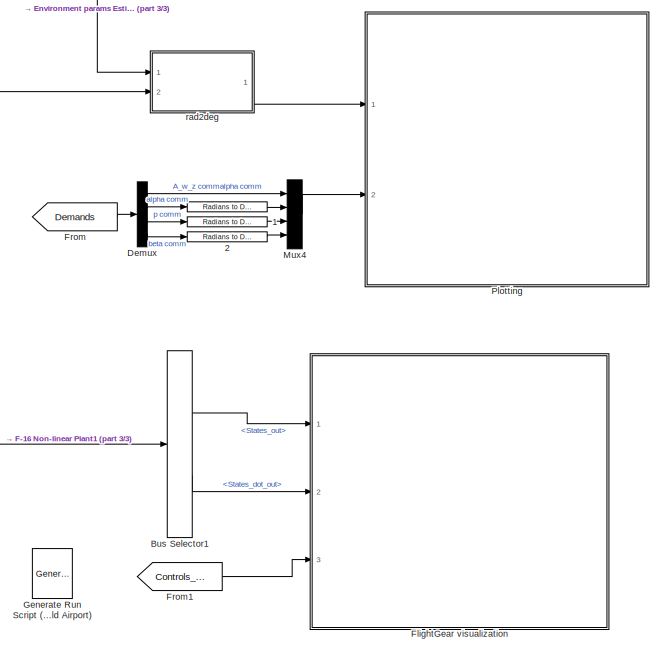
[diagram: root canvas - part 1/3, middle right region]
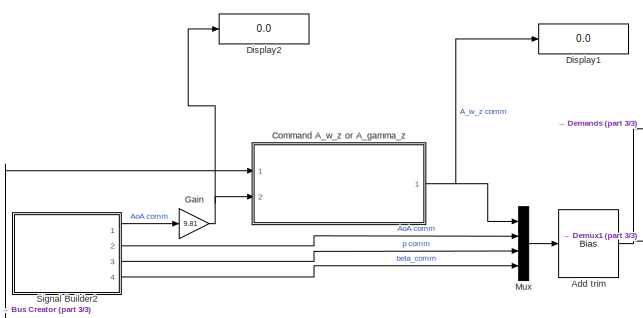
[diagram: root canvas - part 2/3, middle left region]
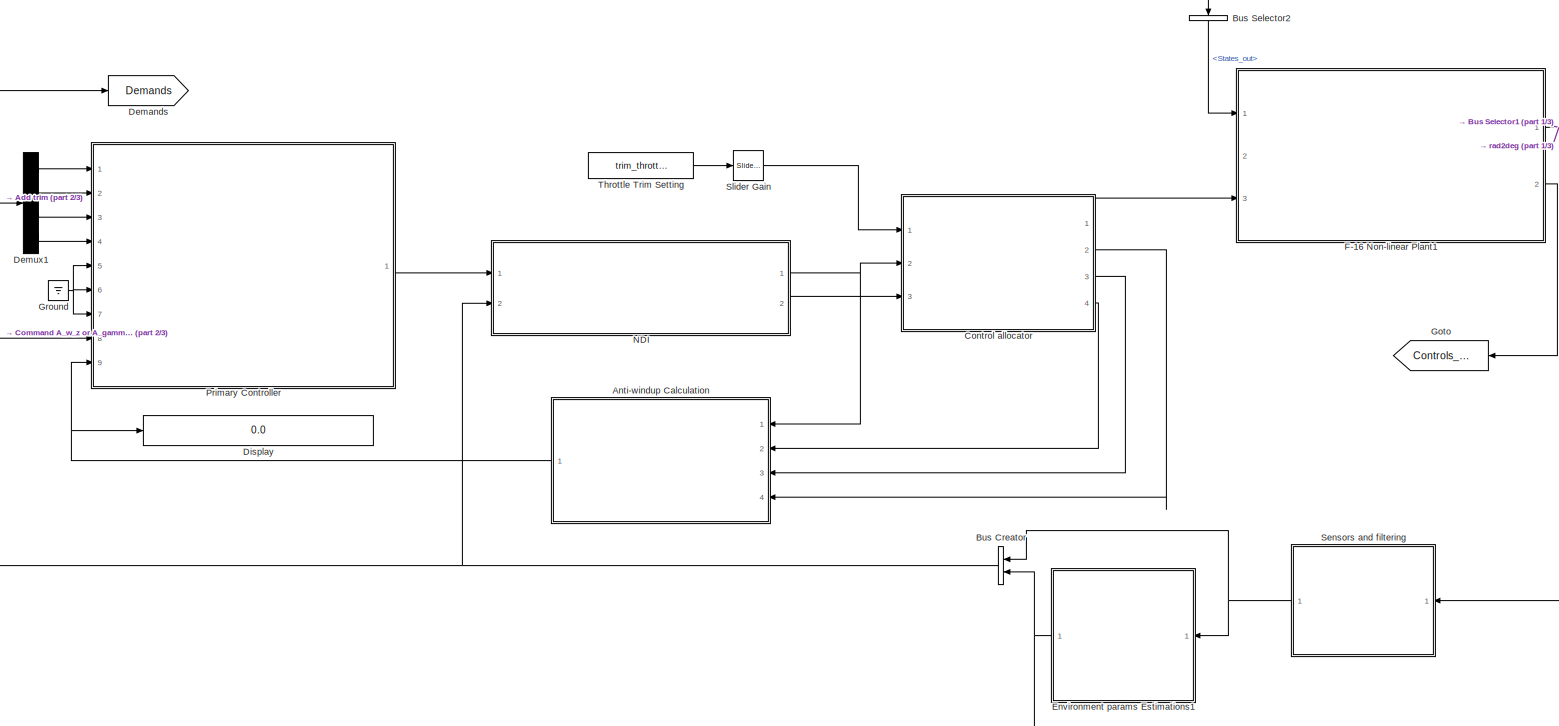
[diagram: root canvas - part 3/3, central region]
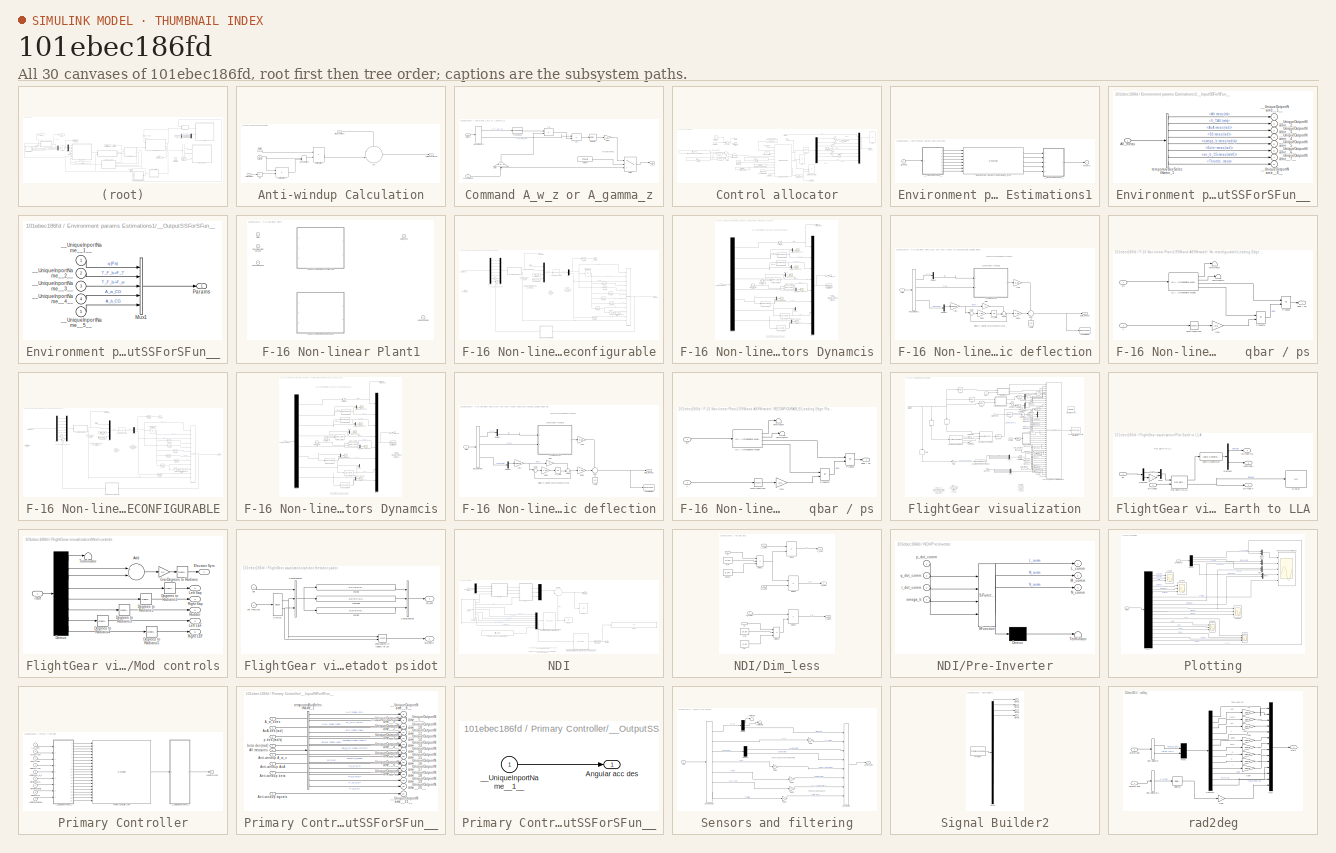
[diagram: thumbnail index - all 30 canvases of the model, root first then tree order]
MODEL slx_101ebec186fd
KIND model
CONFIG InitFcn = mex nlplantASYM.c\n
BLOCK [Reference]     REF=simulink_extras/Transformations/Radians
to Degrees
  Commented = on
  Ports = [1, 1]
  SourceBlock = simulink_extras/Transformations/Radians\nto Degrees
  SourceType = RadiansToDegrees
BLOCK [Reference]   1  REF=simulink_extras/Transformations/Radians
to Degrees
  Commented = on
  Ports = [1, 1]
  SourceBlock = simulink_extras/Transformations/Radians\nto Degrees
  SourceType = RadiansToDegrees
BLOCK [Reference]   2  REF=simulink_extras/Transformations/Radians
to Degrees
  Commented = on
  Ports = [1, 1]
  SourceBlock = simulink_extras/Transformations/Radians\nto Degrees
  SourceType = RadiansToDegrees
BLOCK [Bias] Add trim
  Bias = [0;trim_state(8);trim_state(10);trim_state(9)]
  SaturateOnIntegerOverflow = off
BLOCK [SubSystem] Anti-windup Calculation
  FunctionWithSeparateData = off
  MaskHideContents = off
  MinAlgLoopOccurrences = off
  Opaque = off
  Ports = [4, 1]
  PropExecContextOutsideSubsystem = off
  RTWSystemCode = Auto
  RequestExecContextInheritance = off
BLOCK [Abs] Anti-windup Calculation/Abs
  SaturateOnIntegerOverflow = off
BLOCK [Sum] Anti-windup Calculation/Add
  IconShape = round
  InputSameDT = off
  Inputs = -+|
  OutDataTypeStr = Inherit: Inherit via internal rule
  Ports = [2, 1]
  SaturateOnIntegerOverflow = off
BLOCK [Outport] Anti-windup Calculation/Anti-windup signals
  IconDisplay = Port number
BLOCK [Inport] Anti-windup Calculation/B matrix
  IconDisplay = Port number
  Port = 2
BLOCK [ManualSwitch] Anti-windup Calculation/Manual Switch
  CurrentSetting = 0
BLOCK [Product] Anti-windup Calculation/Matrix Multiply
  InputSameDT = off
  Multiplication = Matrix(*)
  OutDataTypeStr = Inherit: Inherit via internal rule
  Ports = [2, 1]
  RndMeth = Floor
  SaturateOnIntegerOverflow = off
BLOCK [Product] Anti-windup Calculation/Matrix Multiply1
  InputSameDT = off
  OutDataTypeStr = Inherit: Inherit via internal rule
  Ports = [2, 1]
  RndMeth = Floor
  SaturateOnIntegerOverflow = off
BLOCK [Inport] Anti-windup Calculation/Surf defle
  IconDisplay = Port number
  Port = 4
BLOCK [Inport] Anti-windup Calculation/Surf saturated
  IconDisplay = Port number
  Port = 3
BLOCK [Inport] Anti-windup Calculation/virtual commans
  IconDisplay = Port number
BLOCK [BusCreator] Bus Creator
  DisplayOption = bar
  Inputs = 2
  Ports = [2, 1]
BLOCK [BusSelector] Bus Selector1
  OutputSignals = States_out,States_dot_out
  Ports = [1, 2]
BLOCK [BusSelector] Bus Selector2
  OutputSignals = States_out
  Ports = [1, 1]
BLOCK [SubSystem] Command A_w_z or A_gamma_z
  FunctionWithSeparateData = off
  MaskHideContents = off
  MinAlgLoopOccurrences = off
  Opaque = off
  Ports = [2, 1]
  PropExecContextOutsideSubsystem = off
  RTWSystemCode = Auto
  RequestExecContextInheritance = off
BLOCK [Product] Command A_w_z or A_gamma_z/A_b
  InputSameDT = off
  Multiplication = Matrix(*)
  OutDataTypeStr = Inherit: Inherit via internal rule
  Ports = [2, 1]
  RndMeth = Floor
  SaturateOnIntegerOverflow = off
BLOCK [Product] Command A_w_z or A_gamma_z/A_w
  InputSameDT = off
  Multiplication = Matrix(*)
  OutDataTypeStr = Inherit: Inherit via internal rule
  Ports = [2, 1]
  RndMeth = Floor
  SaturateOnIntegerOverflow = off
BLOCK [Outport] Command A_w_z or A_gamma_z/A_w_z
  IconDisplay = Port number
BLOCK [Inport] Command A_w_z or A_gamma_z/Acc command
  IconDisplay = Port number
  Port = 2
BLOCK [Inport] Command A_w_z or A_gamma_z/All meas
  IconDisplay = Port number
BLOCK [BusSelector] Command A_w_z or A_gamma_z/Bus Selector3
  OutputSignals = signal2.T_F_b->F_T,signal2.T_F_b->F_w
  Ports = [1, 2]
BLOCK [Constant] Command A_w_z or A_gamma_z/Criteria
  Value = Criteria
BLOCK [Gain] Command A_w_z or A_gamma_z/Gain
  Gain = [0,0,-1]
  OutDataTypeStr = Inherit: Inherit via internal rule
  ParamDataTypeStr = Inherit: Inherit via internal rule
  SaturateOnIntegerOverflow = off
BLOCK [Gain] Command A_w_z or A_gamma_z/Gain1
  Gain = -1
  OutDataTypeStr = Inherit: Inherit via internal rule
  ParamDataTypeStr = Inherit: Inherit via internal rule
  SaturateOnIntegerOverflow = off
BLOCK [Selector] Command A_w_z or A_gamma_z/Selector
  IndexOptions = Index vector (dialog)
  Indices = 3
  InputPortWidth = 3
  OutputSizes = 1
  Ports = [1, 1]
BLOCK [Switch] Command A_w_z or A_gamma_z/Switch
  InputSameDT = off
  SaturateOnIntegerOverflow = off
  Threshold = 0.5
BLOCK [Reference] Command A_w_z or A_gamma_z/Transpose  REF=dspmtrx3/Transpose
  Hermitian = off
  Ports = [1, 1]
  SourceBlock = dspmtrx3/Transpose
  SourceType = Transpose
  overflowFlag = off
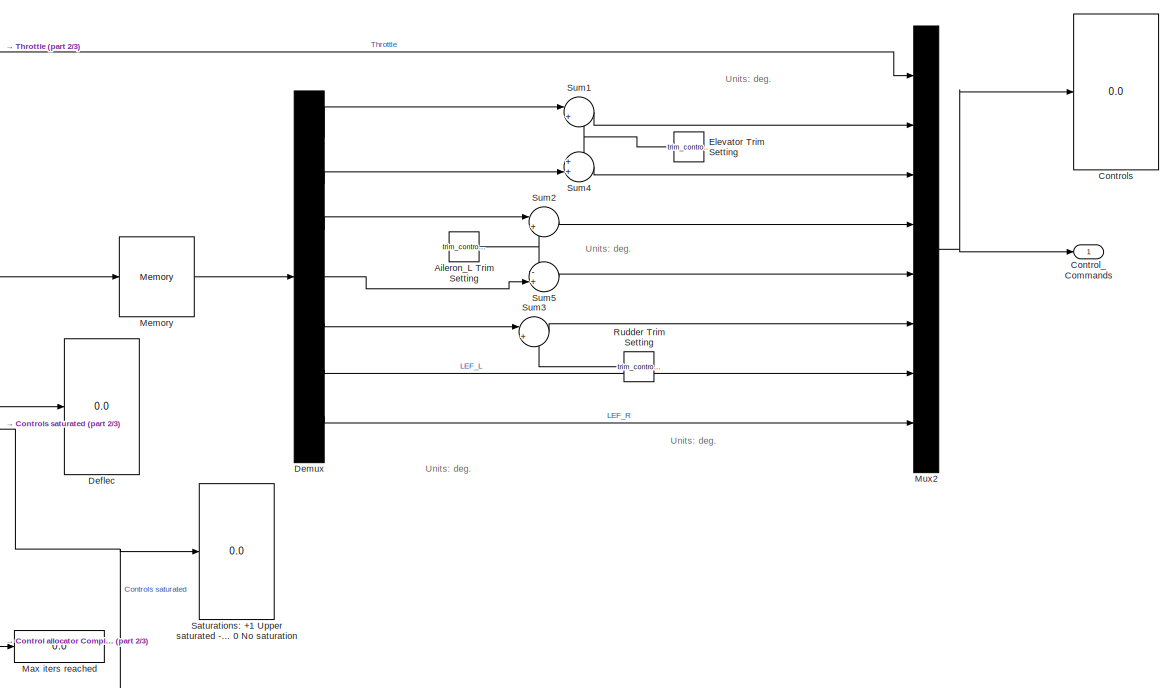
[diagram: Control allocator - part 1/3, right side, full height]
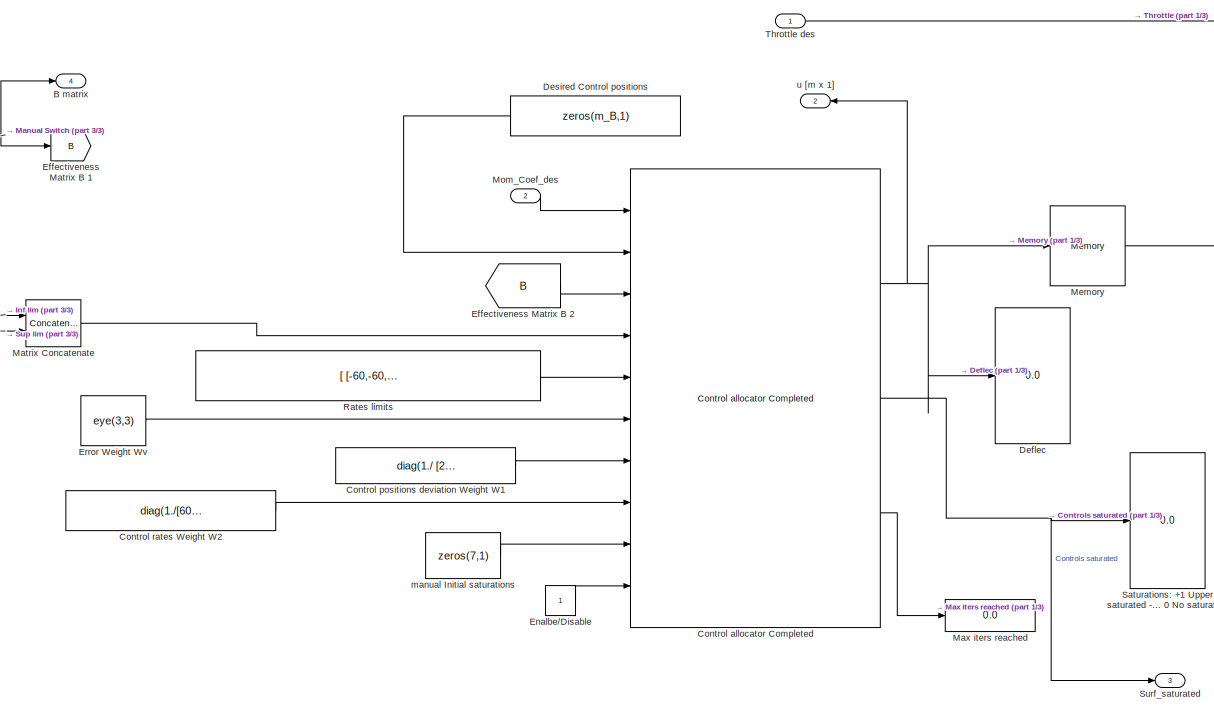
[diagram: Control allocator - part 2/3, center side, full height]
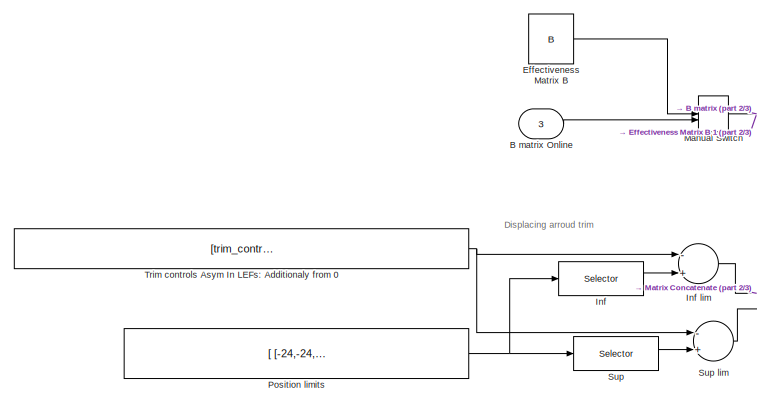
[diagram: Control allocator - part 3/3, middle left region]
BLOCK [SubSystem] Control allocator
  FunctionWithSeparateData = off
  MaskHideContents = off
  MinAlgLoopOccurrences = off
  Opaque = off
  Ports = [3, 4]
  PropExecContextOutsideSubsystem = off
  RTWFcnName = abc
  RTWFcnNameOpts = User specified
  RTWFileName = asas
  RTWFileNameOpts = User specified
  RTWSystemCode = Auto
  RequestExecContextInheritance = off
  VariantObject = LinAndLin
BLOCK [Constant] Control allocator/Aileron_L Trim Setting
  Value = trim_control(2)
BLOCK [Outport] Control allocator/B matrix
  IconDisplay = Port number
  Port = 4
BLOCK [Inport] Control allocator/B matrix Online
  IconDisplay = Port number
  Port = 3
BLOCK [Reference] Control allocator/Control allocator Completed   REF=qcatlib/Control allocator Completed  (lib defined in mdl_185632192637, slx_3440b88f227d, +1 more)

  CA_type = DYN
  Ports = [10, 3]
  SourceBlock = qcatlib/Control allocator Completed
  SourceType = Control allocator Completed
  T = T_sim
  alg = WLS
  gamma = 1e6
  iter_max = 10
  k_B = 3
  m_B = 7
  tol = 1e-5
BLOCK [Constant] Control allocator/Control positions deviation Weight W1
  Value = diag(1./ [24,24,21,21,29,25,25] )
BLOCK [Constant] Control allocator/Control rates Weight W2
  Value = diag(1./[60,60,80,80,120,25,25])
BLOCK [Outport] Control allocator/Control_Commands
  IconDisplay = Port number
BLOCK [Display] Control allocator/Controls
  Decimation = 1
  Lockdown = off
  Ports = [1]
BLOCK [Display] Control allocator/Deflec
  Decimation = 1
  Lockdown = off
  Ports = [1]
BLOCK [Demux] Control allocator/Demux
  DisplayOption = bar
  Outputs = [1,1,1,1,1,1,1]
  Ports = [1, 7]
BLOCK [Constant] Control allocator/Desired Control positions
  Value = zeros(m_B,1)
BLOCK [Constant] Control allocator/Effectiveness Matrix B
  Value = B
BLOCK [Goto] Control allocator/Effectiveness Matrix B 1
  GotoTag = B
BLOCK [From] Control allocator/Effectiveness Matrix B 2
  GotoTag = B
BLOCK [Constant] Control allocator/Elevator Trim Setting
  Value = trim_control(1)
  VectorParams1D = off
BLOCK [Constant] Control allocator/Enalbe//Disable
BLOCK [Constant] Control allocator/Error Weight Wv
  Value = eye(3,3)
BLOCK [Selector] Control allocator/Inf
  IndexOptions = Index vector (dialog),Index vector (dialog)
  Indices = [1:7],1
  InputPortWidth = 3
  NumberOfDimensions = 2
  OutputSizes = 1,1
  Ports = [1, 1]
BLOCK [Sum] Control allocator/Inf lim
  InputSameDT = off
  Inputs = -+
  OutDataTypeStr = Inherit: Inherit via internal rule
  Ports = [2, 1]
  SaturateOnIntegerOverflow = off
BLOCK [ManualSwitch] Control allocator/Manual Switch
  CurrentSetting = 0
BLOCK [Concatenate] Control allocator/Matrix Concatenate
  ConcatenateDimension = 2
  Mode = Multidimensional array
  Ports = [2, 1]
BLOCK [Display] Control allocator/Max iters reached
  Decimation = 1
  Lockdown = off
  Ports = [1]
BLOCK [Memory] Control allocator/Memory
  X0 = zeros(7,1)
BLOCK [Inport] Control allocator/Mom_Coef_des
  IconDisplay = Port number
  Port = 2
BLOCK [Mux] Control allocator/Mux2
  DisplayOption = bar
  Inputs = 8
  Ports = [8, 1]
BLOCK [Constant] Control allocator/Position limits
  Value = [ [-24,-24,-21,-21,-29,0,0]', [24,24,21,21,29,25,25]']
BLOCK [Constant] Control allocator/Rates limits
  Value = [ [-60,-60,-80,-80,-120,-25,-25]', [60,60,80,80,120,25,25]']*1.2
BLOCK [Constant] Control allocator/Rudder Trim Setting
  Value = trim_control(3)
BLOCK [Display] Control allocator/Saturations: +1 Upper saturated -1 Lower saturated 0 No saturation
  Decimation = 1
  Lockdown = off
  Ports = [1]
BLOCK [Sum] Control allocator/Sum1
  IconShape = round
  Inputs = |++
  Ports = [2, 1]
BLOCK [Sum] Control allocator/Sum2
  IconShape = round
  Inputs = |++
  Ports = [2, 1]
BLOCK [Sum] Control allocator/Sum3
  IconShape = round
  Inputs = |++
  Ports = [2, 1]
BLOCK [Sum] Control allocator/Sum4
  IconShape = round
  Inputs = ++|
  Ports = [2, 1]
BLOCK [Sum] Control allocator/Sum5
  IconShape = round
  Inputs = -+|
  Ports = [2, 1]
BLOCK [Selector] Control allocator/Sup
  IndexOptions = Index vector (dialog),Index vector (dialog)
  Indices = [1:7],2
  InputPortWidth = 3
  NumberOfDimensions = 2
  OutputSizes = 1,1
  Ports = [1, 1]
BLOCK [Sum] Control allocator/Sup lim
  InputSameDT = off
  Inputs = -+
  OutDataTypeStr = Inherit: Inherit via internal rule
  Ports = [2, 1]
  SaturateOnIntegerOverflow = off
BLOCK [Outport] Control allocator/Surf_saturated
  IconDisplay = Port number
  Port = 3
BLOCK [Inport] Control allocator/Throttle des
  IconDisplay = Port number
BLOCK [Constant] Control allocator/Trim controls Asym In LEFs: Additionaly from 0
  Value = [trim_control(1),trim_control(1),trim_control(2),-trim_control(2),trim_control(3),dLEF,dLEF]'
BLOCK [Constant] Control allocator/manual Initial saturations
  Value = zeros(7,1)
BLOCK [Outport] Control allocator/u [m x 1]
  IconDisplay = Port number
  Port = 2
BLOCK [Goto] Demands
  GotoTag = Demands
BLOCK [Demux] Demux
  Commented = on
  DisplayOption = bar
  Ports = [1, 4]
BLOCK [Demux] Demux1
  DisplayOption = bar
  Ports = [1, 4]
BLOCK [Display] Display
  Decimation = 1
  Lockdown = off
  Ports = [1]
BLOCK [Display] Display1
  Decimation = 1
  Lockdown = off
  Ports = [1]
BLOCK [Display] Display2
  Decimation = 1
  Lockdown = off
  Ports = [1]
BLOCK [SubSystem] Environment params Estimations1
  FunctionWithSeparateData = off
  MaskHideContents = off
  MinAlgLoopOccurrences = off
  Opaque = off
  Ports = [1, 1]
  PropExecContextOutsideSubsystem = off
  RTWSystemCode = Auto
  RequestExecContextInheritance = off
BLOCK [Inport] Environment params Estimations1/All_meas
  IconDisplay = Port number
BLOCK [S-Function] Environment params Estimations1/Environment params Estimations_sfcn
  CopyFcn = if ~strcmp(get_param(gcb,'Linkstatus'),'none') && ...\n~strcmp(get_param(gcb,'Linkstatus'),'implicit')      \n  set_param(gcb,'LinkStatus','none');                \nend
  EnableBusSupport = off
  FunctionName = Environment_sf
  Ports = [8, 5]
BLOCK [Outport] Environment params Estimations1/Params
  IconDisplay = Port number
BLOCK [SubSystem] Environment params Estimations1/__InputSSForSFun__
  FunctionWithSeparateData = off
  MaskHideContents = off
  MinAlgLoopOccurrences = off
  Opaque = off
  PermitHierarchicalResolution = ExplicitOnly
  Ports = [1, 8]
  PropExecContextOutsideSubsystem = off
  RTWSystemCode = Auto
  RequestExecContextInheritance = off
BLOCK [Inport] Environment params Estimations1/__InputSSForSFun__/All_meas
  IconDisplay = Port number
BLOCK [Outport] Environment params Estimations1/__InputSSForSFun__/__UniqueOutportName__1__
  IconDisplay = Port number
BLOCK [Outport] Environment params Estimations1/__InputSSForSFun__/__UniqueOutportName__2__
  IconDisplay = Port number
  Port = 2
BLOCK [Outport] Environment params Estimations1/__InputSSForSFun__/__UniqueOutportName__3__
  IconDisplay = Port number
  Port = 3
BLOCK [Outport] Environment params Estimations1/__InputSSForSFun__/__UniqueOutportName__4__
  IconDisplay = Port number
  Port = 4
BLOCK [Outport] Environment params Estimations1/__InputSSForSFun__/__UniqueOutportName__5__
  IconDisplay = Port number
  Port = 5
BLOCK [Outport] Environment params Estimations1/__InputSSForSFun__/__UniqueOutportName__6__
  IconDisplay = Port number
  Port = 6
BLOCK [Outport] Environment params Estimations1/__InputSSForSFun__/__UniqueOutportName__7__
  IconDisplay = Port number
  Port = 7
BLOCK [Outport] Environment params Estimations1/__InputSSForSFun__/__UniqueOutportName__8__
  IconDisplay = Port number
  Port = 8
BLOCK [BusSelector] Environment params Estimations1/__InputSSForSFun__/temporaryBusSelectName_1
  OutputSignals = Alt meas (m),V_TAS (m/s),AoA meas (rad),SS meas (rad),omega_b meas (rad/s),Euler meas (rad),an_b_CG meas (m/s^2),Throttle_meas
  Ports = [1, 8]
BLOCK [SubSystem] Environment params Estimations1/__OutputSSForSFun__
  FunctionWithSeparateData = off
  MaskHideContents = off
  MinAlgLoopOccurrences = off
  Opaque = off
  PermitHierarchicalResolution = ExplicitOnly
  Ports = [5, 1]
  PropExecContextOutsideSubsystem = off
  RTWSystemCode = Auto
  RequestExecContextInheritance = off
BLOCK [BusCreator] Environment params Estimations1/__OutputSSForSFun__/Mux1
  Inputs = 5
  Ports = [5, 1]
BLOCK [Outport] Environment params Estimations1/__OutputSSForSFun__/Params
  IconDisplay = Port number
BLOCK [Inport] Environment params Estimations1/__OutputSSForSFun__/__UniqueInportName__1__
  IconDisplay = Port number
BLOCK [Inport] Environment params Estimations1/__OutputSSForSFun__/__UniqueInportName__2__
  IconDisplay = Port number
  Port = 2
BLOCK [Inport] Environment params Estimations1/__OutputSSForSFun__/__UniqueInportName__3__
  IconDisplay = Port number
  Port = 3
BLOCK [Inport] Environment params Estimations1/__OutputSSForSFun__/__UniqueInportName__4__
  IconDisplay = Port number
  Port = 4
BLOCK [Inport] Environment params Estimations1/__OutputSSForSFun__/__UniqueInportName__5__
  IconDisplay = Port number
  Port = 5
BLOCK [SubSystem] F-16 Non-linear Plant1
  FunctionWithSeparateData = off
  MaskHideContents = off
  MinAlgLoopOccurrences = off
  Opaque = off
  OverrideUsingVariant = No Reconfigurable
  Ports = [3, 2]
  PropExecContextOutsideSubsystem = off
  RTWSystemCode = Auto
  RequestExecContextInheritance = off
  Variant = on
BLOCK [Outport] F-16 Non-linear Plant1/Actual control def
  IconDisplay = Port number
  Port = 2
BLOCK [Inport] F-16 Non-linear Plant1/Control Comands
  IconDisplay = Port number
  Port = 3
BLOCK [Outport] F-16 Non-linear Plant1/Output_bus
  IconDisplay = Port number
BLOCK [Inport] F-16 Non-linear Plant1/Reconfiguration params
  IconDisplay = Port number
  Port = 2
BLOCK [SubSystem] F-16 Non-linear Plant1/SYM and ASYM model: No reconfigurable
  FunctionWithSeparateData = off
  MaskHideContents = off
  MinAlgLoopOccurrences = off
  Opaque = off
  Ports = [3, 2]
  PropExecContextOutsideSubsystem = off
  RTWSystemCode = Auto
  RequestExecContextInheritance = off
  VariantObject = No Reconfigurable
BLOCK [Scope] F-16 Non-linear Plant1/SYM and ASYM model: No reconfigurable/Acels actual
  DataFormat = StructureWithTime
  Floating = off
  NumInputPorts = 1
  Ports = [1]
  SampleTime = 0
  SaveName = ScopeData14
  ShowLegends = off
  YMax = 0.09
  YMin = -0.04
BLOCK [Outport] F-16 Non-linear Plant1/SYM and ASYM model: No reconfigurable/Actual control def
  IconDisplay = Port number
  Port = 2
BLOCK [SubSystem] F-16 Non-linear Plant1/SYM and ASYM model: No reconfigurable/Actuators Dynamcis
  FunctionWithSeparateData = off
  MaskHideContents = off
  MinAlgLoopOccurrences = off
  Opaque = off
  Ports = [1, 2]
  PropExecContextOutsideSubsystem = off
  RTWSystemCode = Auto
  RequestExecContextInheritance = off
  TreatAsAtomicUnit = on
BLOCK [Reference] F-16 Non-linear Plant1/SYM and ASYM model: No reconfigurable/Actuators Dynamcis/Aileron Actuator  REF=F16_Actuator_Library/Aileron
Actuator
  Ports = [2, 1]
  SourceBlock = F16_Actuator_Library/Aileron\nActuator
  SourceType = SubSystem
BLOCK [Reference] F-16 Non-linear Plant1/SYM and ASYM model: No reconfigurable/Actuators Dynamcis/Aileron Actuator1  REF=F16_Actuator_Library/Aileron
Actuator
  Ports = [2, 1]
  SourceBlock = F16_Actuator_Library/Aileron\nActuator
  SourceType = SubSystem
BLOCK [Scope] F-16 Non-linear Plant1/SYM and ASYM model: No reconfigurable/Actuators Dynamcis/Aileron_L Scope
  DataFormat = StructureWithTime
  Floating = off
  NumInputPorts = 1
  Ports = [1]
  SampleTime = 0
  SaveName = ScopeData7
  ShowLegends = off
  TimeRange = 30
  YMax = 4.5
  YMin = 0
  ZoomMode = yonly
BLOCK [Constant] F-16 Non-linear Plant1/SYM and ASYM model: No reconfigurable/Actuators Dynamcis/Aileron_L Trim Setting
  Value = trim_control(2)
BLOCK [Scope] F-16 Non-linear Plant1/SYM and ASYM model: No reconfigurable/Actuators Dynamcis/Aileron_R Scope1
  DataFormat = StructureWithTime
  Floating = off
  NumInputPorts = 1
  Ports = [1]
  SampleTime = 0
  SaveName = ScopeData10
  ShowLegends = off
  TimeRange = 30
  ZoomMode = yonly
BLOCK [Constant] F-16 Non-linear Plant1/SYM and ASYM model: No reconfigurable/Actuators Dynamcis/Aileron_R Trim Setting
  Value = -trim_control(2)
BLOCK [ToWorkspace] F-16 Non-linear Plant1/SYM and ASYM model: No reconfigurable/Actuators Dynamcis/Control Surface Deflections
  Decimation = 100
  MaxDataPoints = inf
  Ports = [1]
  SampleTime = -1
  VariableName = surfaces
BLOCK [Inport] F-16 Non-linear Plant1/SYM and ASYM model: No reconfigurable/Actuators Dynamcis/Control_commands
  IconDisplay = Port number
BLOCK [Outport] F-16 Non-linear Plant1/SYM and ASYM model: No reconfigurable/Actuators Dynamcis/Dec_Control_def
  IconDisplay = Port number
BLOCK [Demux] F-16 Non-linear Plant1/SYM and ASYM model: No reconfigurable/Actuators Dynamcis/Demux
  DisplayOption = bar
  Outputs = 8
  Ports = [1, 8]
BLOCK [Reference] F-16 Non-linear Plant1/SYM and ASYM model: No reconfigurable/Actuators Dynamcis/Elevator Actuator  REF=F16_Actuator_Library/Elevator
Actuator
  Ports = [1, 1]
  SourceBlock = F16_Actuator_Library/Elevator\nActuator
  SourceType = SubSystem
BLOCK [Reference] F-16 Non-linear Plant1/SYM and ASYM model: No reconfigurable/Actuators Dynamcis/Elevator Actuator1  REF=F16_Actuator_Library/Elevator
Actuator
  Ports = [1, 1]
  SourceBlock = F16_Actuator_Library/Elevator\nActuator
  SourceType = SubSystem
BLOCK [Scope] F-16 Non-linear Plant1/SYM and ASYM model: No reconfigurable/Actuators Dynamcis/Elevator_L Scope
  DataFormat = StructureWithTime
  Floating = off
  LimitDataPoints = off
  NumInputPorts = 1
  Ports = [1]
  SampleTime = 0
  SaveName = ScopeData6
  ShowLegends = off
  TimeRange = 6
  YMax = -1.7
  YMin = -2.1
BLOCK [Scope] F-16 Non-linear Plant1/SYM and ASYM model: No reconfigurable/Actuators Dynamcis/Elevator_R Scope
  DataFormat = StructureWithTime
  Floating = off
  LimitDataPoints = off
  NumInputPorts = 1
  Ports = [1]
  SampleTime = 0
  SaveName = ScopeData9
  ShowLegends = off
  TimeRange = 4.5
  YMax = -2.4
  YMin = -2.95
  ZoomMode = xonly
BLOCK [Reference] F-16 Non-linear Plant1/SYM and ASYM model: No reconfigurable/Actuators Dynamcis/LEF Actuator  REF=F16_Actuator_Library/LEF
Actuator
  Ports = [1, 1]
  SourceBlock = F16_Actuator_Library/LEF\nActuator
  SourceType = SubSystem
BLOCK [Reference] F-16 Non-linear Plant1/SYM and ASYM model: No reconfigurable/Actuators Dynamcis/LEF Actuator1  REF=F16_Actuator_Library/LEF
Actuator
  Ports = [1, 1]
  SourceBlock = F16_Actuator_Library/LEF\nActuator
  SourceType = SubSystem
BLOCK [Scope] F-16 Non-linear Plant1/SYM and ASYM model: No reconfigurable/Actuators Dynamcis/LEF_R Scope
  DataFormat = StructureWithTime
  Floating = off
  NumInputPorts = 1
  Ports = [1]
  SampleTime = 0
  SaveName = ScopeData12
  ShowLegends = off
  YMax = 5.92
  YMin = 5.75
BLOCK [Mux] F-16 Non-linear Plant1/SYM and ASYM model: No reconfigurable/Actuators Dynamcis/Mux
  DisplayOption = bar
  Inputs = 2
  Ports = [2, 1]
BLOCK [Mux] F-16 Non-linear Plant1/SYM and ASYM model: No reconfigurable/Actuators Dynamcis/Mux1
  DisplayOption = bar
  Inputs = 2
  Ports = [2, 1]
BLOCK [Mux] F-16 Non-linear Plant1/SYM and ASYM model: No reconfigurable/Actuators Dynamcis/Mux2
  DisplayOption = bar
  Inputs = 8
  Ports = [8, 1]
BLOCK [Mux] F-16 Non-linear Plant1/SYM and ASYM model: No reconfigurable/Actuators Dynamcis/Mux3
  DisplayOption = bar
  Inputs = 2
  Ports = [2, 1]
BLOCK [Mux] F-16 Non-linear Plant1/SYM and ASYM model: No reconfigurable/Actuators Dynamcis/Mux4
  DisplayOption = bar
  Inputs = 2
  Ports = [2, 1]
BLOCK [Mux] F-16 Non-linear Plant1/SYM and ASYM model: No reconfigurable/Actuators Dynamcis/Mux5
  DisplayOption = bar
  Inputs = 2
  Ports = [2, 1]
BLOCK [Mux] F-16 Non-linear Plant1/SYM and ASYM model: No reconfigurable/Actuators Dynamcis/Mux6
  DisplayOption = bar
  Inputs = 2
  Ports = [2, 1]
BLOCK [Mux] F-16 Non-linear Plant1/SYM and ASYM model: No reconfigurable/Actuators Dynamcis/Mux7
  DisplayOption = bar
  Inputs = 2
  Ports = [2, 1]
BLOCK [Reference] F-16 Non-linear Plant1/SYM and ASYM model: No reconfigurable/Actuators Dynamcis/Rudder Actuator  REF=F16_Actuator_Library/Rudder
Actuator
  Ports = [1, 1]
  SourceBlock = F16_Actuator_Library/Rudder\nActuator
  SourceType = SubSystem
BLOCK [Scope] F-16 Non-linear Plant1/SYM and ASYM model: No reconfigurable/Actuators Dynamcis/Rudder Scope
  DataFormat = StructureWithTime
  Floating = off
  NumInputPorts = 1
  Ports = [1]
  SampleTime = 0
  SaveName = ScopeData8
  ShowLegends = off
BLOCK [Saturate] F-16 Non-linear Plant1/SYM and ASYM model: No reconfigurable/Actuators Dynamcis/Saturation1
  InputPortMap = u0
  LowerLimit = 0
  Ports = [1, 1]
  UpperLimit = 1
BLOCK [Outport] F-16 Non-linear Plant1/SYM and ASYM model: No reconfigurable/Actuators Dynamcis/Throttle_meas
  IconDisplay = Port number
  Port = 2
BLOCK [BusCreator] F-16 Non-linear Plant1/SYM and ASYM model: No reconfigurable/Bus Creator
  DisplayOption = bar
  Inputs = 12
  Ports = [12, 1]
BLOCK [Inport] F-16 Non-linear Plant1/SYM and ASYM model: No reconfigurable/Control Comands
  IconDisplay = Port number
  Port = 3
BLOCK [Demux] F-16 Non-linear Plant1/SYM and ASYM model: No reconfigurable/Demux
  Outputs = [13 6]
  Ports = [1, 2]
BLOCK [Demux] F-16 Non-linear Plant1/SYM and ASYM model: No reconfigurable/Demux1
  DisplayOption = bar
  Outputs = 8
  Ports = [1, 8]
BLOCK [MATLABFcn] F-16 Non-linear Plant1/SYM and ASYM model: No reconfigurable/F16 nlsim nlplant Asymetrical
  MATLABFcn = nlplantASYM
  OutputDimensions = 19
  OutputSignalType = real
  Ports = [1, 1]
BLOCK [Constant] F-16 Non-linear Plant1/SYM and ASYM model: No reconfigurable/Fidelity Flag
  Value = fi_flag_Simulink
BLOCK [Integrator] F-16 Non-linear Plant1/SYM and ASYM model: No reconfigurable/Integrate F16 State Derivatives
  InitialCondition = trim_state
  Ports = [1, 1]
BLOCK [SubSystem] F-16 Non-linear Plant1/SYM and ASYM model: No reconfigurable/Leading Edge Flap:Symetric deflection
  FunctionWithSeparateData = off
  MaskHideContents = off
  MinAlgLoopOccurrences = off
  Opaque = off
  Ports = [1, 1]
  PropExecContextOutsideSubsystem = off
  RTWSystemCode = Auto
  RequestExecContextInheritance = off
BLOCK [BusSelector] F-16 Non-linear Plant1/SYM and ASYM model: No reconfigurable/Leading Edge Flap:Symetric deflection/Bus Selector1
  OutputSignals = X_e,TAS,alpha;beta
  Ports = [1, 3]
BLOCK [SubSystem] F-16 Non-linear Plant1/SYM and ASYM model: No reconfigurable/Leading Edge Flap:Symetric deflection/Creating    qbar // ps
  FunctionWithSeparateData = off
  MaskHideContents = off
  MinAlgLoopOccurrences = off
  Opaque = off
  Ports = [2, 1]
  PropExecContextOutsideSubsystem = off
  RTWSystemCode = Auto
  RequestExecContextInheritance = off
BLOCK [Reference] F-16 Non-linear Plant1/SYM and ASYM model: No reconfigurable/Leading Edge Flap:Symetric deflection/Creating    qbar // ps/ISA Atmosphere Model  REF=aerolibatmos2/ISA Atmosphere Model
  L = 0.0065
  P0 = 101325
  Ports = [1, 4]
  R = 287.0531
  SourceBlock = aerolibatmos2/ISA Atmosphere Model
  SourceType = International Standard Atmosphere Model
  T0 = 288.15
  custom = off
  g = 9.80665
  gamma = 1.4
  h_strat = 20000
  h_trop = 11000
  rho0 = 1.225
BLOCK [Math] F-16 Non-linear Plant1/SYM and ASYM model: No reconfigurable/Leading Edge Flap:Symetric deflection/Creating    qbar // ps/Math Function1
  Operator = square
  Ports = [1, 1]
BLOCK [Product] F-16 Non-linear Plant1/SYM and ASYM model: No reconfigurable/Leading Edge Flap:Symetric deflection/Creating    qbar // ps/Product
  Inputs = /*
  Ports = [2, 1]
  RndMeth = Floor
BLOCK [Product] F-16 Non-linear Plant1/SYM and ASYM model: No reconfigurable/Leading Edge Flap:Symetric deflection/Creating    qbar // ps/Product5
  Inputs = **
  Ports = [2, 1]
  RndMeth = Floor
BLOCK [Terminator] F-16 Non-linear Plant1/SYM and ASYM model: No reconfigurable/Leading Edge Flap:Symetric deflection/Creating    qbar // ps/Terminator
BLOCK [Terminator] F-16 Non-linear Plant1/SYM and ASYM model: No reconfigurable/Leading Edge Flap:Symetric deflection/Creating    qbar // ps/Terminator1
BLOCK [Inport] F-16 Non-linear Plant1/SYM and ASYM model: No reconfigurable/Leading Edge Flap:Symetric deflection/Creating    qbar // ps/V
  IconDisplay = Port number
  Port = 2
BLOCK [Inport] F-16 Non-linear Plant1/SYM and ASYM model: No reconfigurable/Leading Edge Flap:Symetric deflection/Creating    qbar // ps/alt
  IconDisplay = Port number
BLOCK [Outport] F-16 Non-linear Plant1/SYM and ASYM model: No reconfigurable/Leading Edge Flap:Symetric deflection/Creating    qbar // ps/qbar // ps
  IconDisplay = Port number
BLOCK [Gain] F-16 Non-linear Plant1/SYM and ASYM model: No reconfigurable/Leading Edge Flap:Symetric deflection/Creating    qbar // ps/r2d4
  Gain = 0.5
BLOCK [Demux] F-16 Non-linear Plant1/SYM and ASYM model: No reconfigurable/Leading Edge Flap:Symetric deflection/Demux
  DisplayOption = bar
  Outputs = 3
  Ports = [1, 3]
BLOCK [Demux] F-16 Non-linear Plant1/SYM and ASYM model: No reconfigurable/Leading Edge Flap:Symetric deflection/Demux1
  DisplayOption = bar
  Outputs = 2
  Ports = [1, 2]
BLOCK [Gain] F-16 Non-linear Plant1/SYM and ASYM model: No reconfigurable/Leading Edge Flap:Symetric deflection/Gain
  Gain = 2
BLOCK [Gain] F-16 Non-linear Plant1/SYM and ASYM model: No reconfigurable/Leading Edge Flap:Symetric deflection/Gain1
  Gain = 7.25
BLOCK [Gain] F-16 Non-linear Plant1/SYM and ASYM model: No reconfigurable/Leading Edge Flap:Symetric deflection/Gain2
  Gain = 1.38
BLOCK [ToWorkspace] F-16 Non-linear Plant1/SYM and ASYM model: No reconfigurable/Leading Edge Flap:Symetric deflection/LEF deflection
  Decimation = 100
  MaxDataPoints = inf
  Ports = [1]
  SampleTime = -1
  VariableName = d_LF
BLOCK [Integrator] F-16 Non-linear Plant1/SYM and ASYM model: No reconfigurable/Leading Edge Flap:Symetric deflection/LF_state
  InitialCondition = -trim_state(8)*180/pi
  Ports = [1, 1]
BLOCK [Sum] F-16 Non-linear Plant1/SYM and ASYM model: No reconfigurable/Leading Edge Flap:Symetric deflection/Sum
  IconShape = round
  Inputs = -|+|+
  Ports = [3, 1]
BLOCK [Sum] F-16 Non-linear Plant1/SYM and ASYM model: No reconfigurable/Leading Edge Flap:Symetric deflection/Sum1
  IconShape = round
  Inputs = |+-
  Ports = [2, 1]
BLOCK [Sum] F-16 Non-linear Plant1/SYM and ASYM model: No reconfigurable/Leading Edge Flap:Symetric deflection/Sum2
  IconShape = round
  Inputs = ++|
  Ports = [2, 1]
BLOCK [Constant] F-16 Non-linear Plant1/SYM and ASYM model: No reconfigurable/Leading Edge Flap:Symetric deflection/coeff1
  Value = 1.45
BLOCK [Outport] F-16 Non-linear Plant1/SYM and ASYM model: No reconfigurable/Leading Edge Flap:Symetric deflection/delta_lef (deg)
  IconDisplay = Port number
BLOCK [Gain] F-16 Non-linear Plant1/SYM and ASYM model: No reconfigurable/Leading Edge Flap:Symetric deflection/r2d1
  Gain = 180/pi
BLOCK [Gain] F-16 Non-linear Plant1/SYM and ASYM model: No reconfigurable/Leading Edge Flap:Symetric deflection/r2d6
  Gain = 9.05
BLOCK [Inport] F-16 Non-linear Plant1/SYM and ASYM model: No reconfigurable/Leading Edge Flap:Symetric deflection/state
  IconDisplay = Port number
BLOCK [Constant] F-16 Non-linear Plant1/SYM and ASYM model: No reconfigurable/Model used flag
  Value = Model_used_flag
BLOCK [Mux] F-16 Non-linear Plant1/SYM and ASYM model: No reconfigurable/Mux1
  DisplayOption = bar
  Inputs = 8
  Ports = [8, 1]
BLOCK [Mux] F-16 Non-linear Plant1/SYM and ASYM model: No reconfigurable/Mux5
  DisplayOption = bar
  Inputs = [13 8 1 1]
  Ports = [4, 1]
BLOCK [Outport] F-16 Non-linear Plant1/SYM and ASYM model: No reconfigurable/Output_bus
  IconDisplay = Port number
BLOCK [Inport] F-16 Non-linear Plant1/SYM and ASYM model: No reconfigurable/Reconfiguration params
  IconDisplay = Port number
  Port = 2
BLOCK [Reference] F-16 Non-linear Plant1/SYM and ASYM model: No reconfigurable/Rotation Angles to Direction Cosine Matrix  REF=aerolibtransform2/Rotation Angles to
Direction Cosine Matrix
  AttributesFormatString = Rotation Order: %<rotationOrder>
  Ports = [1, 1]
  SourceBlock = aerolibtransform2/Rotation Angles to\nDirection Cosine Matrix
  SourceType = Ang2DCM
  rotationOrder = ZYX
BLOCK [Selector] F-16 Non-linear Plant1/SYM and ASYM model: No reconfigurable/Selector
  IndexOptions = Index vector (dialog)
  Indices = [1:3]
  InputPortWidth = 13
  OutputSizes = 1
  Ports = [1, 1]
BLOCK [Selector] F-16 Non-linear Plant1/SYM and ASYM model: No reconfigurable/Selector1
  IndexOptions = Index vector (dialog)
  Indices = [1:3]
  InputPortWidth = 13
  OutputSizes = 1
  Ports = [1, 1]
BLOCK [Selector] F-16 Non-linear Plant1/SYM and ASYM model: No reconfigurable/Selector2
  IndexOptions = Index vector (dialog)
  Indices = [7]
  InputPortWidth = 13
  OutputSizes = 1
  Ports = [1, 1]
BLOCK [Selector] F-16 Non-linear Plant1/SYM and ASYM model: No reconfigurable/Selector3
  IndexOptions = Index vector (dialog)
  Indices = [8:9]
  InputPortWidth = 13
  OutputSizes = 1
  Ports = [1, 1]
BLOCK [Selector] F-16 Non-linear Plant1/SYM and ASYM model: No reconfigurable/Selector4
  IndexOptions = Index vector (dialog)
  Indices = [10:12]
  InputPortWidth = 13
  OutputSizes = 1
  Ports = [1, 1]
BLOCK [Selector] F-16 Non-linear Plant1/SYM and ASYM model: No reconfigurable/Selector5
  IndexOptions = Index vector (dialog)
  Indices = [4:6]
  InputPortWidth = 13
  OutputSizes = 1
  Ports = [1, 1]
BLOCK [Selector] F-16 Non-linear Plant1/SYM and ASYM model: No reconfigurable/Selector6
  IndexOptions = Index vector (dialog)
  Indices = [1:3]
  InputPortWidth = 6
  OutputSizes = 1
  Ports = [1, 1]
BLOCK [Selector] F-16 Non-linear Plant1/SYM and ASYM model: No reconfigurable/Selector7
  IndexOptions = Index vector (dialog)
  Indices = [3 2 1]
  InputPortWidth = 3
  OutputSizes = 1
  Ports = [1, 1]
BLOCK [Selector] F-16 Non-linear Plant1/SYM and ASYM model: No reconfigurable/Selector9
  IndexOptions = Index vector (dialog)
  Indices = [10:12]
  InputPortWidth = 13
  OutputSizes = 1
  Ports = [1, 1]
BLOCK [Inport] F-16 Non-linear Plant1/SYM and ASYM model: No reconfigurable/States
  IconDisplay = Port number
BLOCK [Sum] F-16 Non-linear Plant1/SYM and ASYM model: No reconfigurable/Sum1
  IconShape = round
  Inputs = |++
  Ports = [2, 1]
BLOCK [Sum] F-16 Non-linear Plant1/SYM and ASYM model: No reconfigurable/Sum9
  IconShape = round
  Inputs = |++
  Ports = [2, 1]
BLOCK [SubSystem] F-16 Non-linear Plant1/SYM and ASYM model: RECONFIGURABLE
  FunctionWithSeparateData = off
  MaskHideContents = off
  MinAlgLoopOccurrences = off
  Opaque = off
  Ports = [3, 2]
  PropExecContextOutsideSubsystem = off
  RTWSystemCode = Auto
  RequestExecContextInheritance = off
  VariantObject = Reconfigurable
BLOCK [Scope] F-16 Non-linear Plant1/SYM and ASYM model: RECONFIGURABLE/Acels actual
  DataFormat = StructureWithTime
  Floating = off
  NumInputPorts = 1
  Ports = [1]
  SampleTime = 0
  SaveName = ScopeData14
  ShowLegends = off
  YMax = 0.09
  YMin = -0.04
BLOCK [Outport] F-16 Non-linear Plant1/SYM and ASYM model: RECONFIGURABLE/Actual control def
  IconDisplay = Port number
  Port = 2
BLOCK [SubSystem] F-16 Non-linear Plant1/SYM and ASYM model: RECONFIGURABLE/Actuators Dynamcis
  FunctionWithSeparateData = off
  MaskHideContents = off
  MinAlgLoopOccurrences = off
  Opaque = off
  Ports = [1, 2]
  PropExecContextOutsideSubsystem = off
  RTWSystemCode = Auto
  RequestExecContextInheritance = off
  TreatAsAtomicUnit = on
BLOCK [Reference] F-16 Non-linear Plant1/SYM and ASYM model: RECONFIGURABLE/Actuators Dynamcis/Aileron Actuator  REF=F16_Actuator_Library/Aileron
Actuator
  Ports = [2, 1]
  SourceBlock = F16_Actuator_Library/Aileron\nActuator
  SourceType = SubSystem
BLOCK [Reference] F-16 Non-linear Plant1/SYM and ASYM model: RECONFIGURABLE/Actuators Dynamcis/Aileron Actuator1  REF=F16_Actuator_Library/Aileron
Actuator
  Ports = [2, 1]
  SourceBlock = F16_Actuator_Library/Aileron\nActuator
  SourceType = SubSystem
BLOCK [Scope] F-16 Non-linear Plant1/SYM and ASYM model: RECONFIGURABLE/Actuators Dynamcis/Aileron_L Scope
  DataFormat = StructureWithTime
  Floating = off
  NumInputPorts = 1
  Ports = [1]
  SampleTime = 0
  SaveName = ScopeData7
  ShowLegends = off
  TimeRange = 30
  YMax = 4.5
  YMin = 0
  ZoomMode = yonly
BLOCK [Constant] F-16 Non-linear Plant1/SYM and ASYM model: RECONFIGURABLE/Actuators Dynamcis/Aileron_L Trim Setting
  Value = trim_control(2)
BLOCK [Scope] F-16 Non-linear Plant1/SYM and ASYM model: RECONFIGURABLE/Actuators Dynamcis/Aileron_R Scope1
  DataFormat = StructureWithTime
  Floating = off
  NumInputPorts = 1
  Ports = [1]
  SampleTime = 0
  SaveName = ScopeData10
  ShowLegends = off
  TimeRange = 30
  ZoomMode = yonly
BLOCK [Constant] F-16 Non-linear Plant1/SYM and ASYM model: RECONFIGURABLE/Actuators Dynamcis/Aileron_R Trim Setting
  Value = -trim_control(2)
BLOCK [ToWorkspace] F-16 Non-linear Plant1/SYM and ASYM model: RECONFIGURABLE/Actuators Dynamcis/Control Surface Deflections
  Decimation = 100
  MaxDataPoints = inf
  Ports = [1]
  SampleTime = -1
  VariableName = surfaces
BLOCK [Inport] F-16 Non-linear Plant1/SYM and ASYM model: RECONFIGURABLE/Actuators Dynamcis/Control_commands
  IconDisplay = Port number
BLOCK [Outport] F-16 Non-linear Plant1/SYM and ASYM model: RECONFIGURABLE/Actuators Dynamcis/Dec_Control_def
  IconDisplay = Port number
BLOCK [Demux] F-16 Non-linear Plant1/SYM and ASYM model: RECONFIGURABLE/Actuators Dynamcis/Demux
  DisplayOption = bar
  Outputs = 8
  Ports = [1, 8]
BLOCK [Reference] F-16 Non-linear Plant1/SYM and ASYM model: RECONFIGURABLE/Actuators Dynamcis/Elevator Actuator  REF=F16_Actuator_Library/Elevator
Actuator
  Ports = [1, 1]
  SourceBlock = F16_Actuator_Library/Elevator\nActuator
  SourceType = SubSystem
BLOCK [Reference] F-16 Non-linear Plant1/SYM and ASYM model: RECONFIGURABLE/Actuators Dynamcis/Elevator Actuator1  REF=F16_Actuator_Library/Elevator
Actuator
  Ports = [1, 1]
  SourceBlock = F16_Actuator_Library/Elevator\nActuator
  SourceType = SubSystem
BLOCK [Scope] F-16 Non-linear Plant1/SYM and ASYM model: RECONFIGURABLE/Actuators Dynamcis/Elevator_L Scope
  DataFormat = StructureWithTime
  Floating = off
  LimitDataPoints = off
  NumInputPorts = 1
  Ports = [1]
  SampleTime = 0
  SaveName = ScopeData6
  ShowLegends = off
  TimeRange = 5
  YMax = -2.125
  YMin = -2.675
BLOCK [Scope] F-16 Non-linear Plant1/SYM and ASYM model: RECONFIGURABLE/Actuators Dynamcis/Elevator_R Scope
  DataFormat = StructureWithTime
  Floating = off
  LimitDataPoints = off
  NumInputPorts = 1
  Ports = [1]
  SampleTime = 0
  SaveName = ScopeData9
  ShowLegends = off
  TimeRange = 4.5
  YMax = -2.4
  YMin = -2.95
BLOCK [Reference] F-16 Non-linear Plant1/SYM and ASYM model: RECONFIGURABLE/Actuators Dynamcis/LEF Actuator  REF=F16_Actuator_Library/LEF
Actuator
  Ports = [1, 1]
  SourceBlock = F16_Actuator_Library/LEF\nActuator
  SourceType = SubSystem
BLOCK [Reference] F-16 Non-linear Plant1/SYM and ASYM model: RECONFIGURABLE/Actuators Dynamcis/LEF Actuator1  REF=F16_Actuator_Library/LEF
Actuator
  Ports = [1, 1]
  SourceBlock = F16_Actuator_Library/LEF\nActuator
  SourceType = SubSystem
BLOCK [Scope] F-16 Non-linear Plant1/SYM and ASYM model: RECONFIGURABLE/Actuators Dynamcis/LEF_R Scope
  DataFormat = StructureWithTime
  Floating = off
  NumInputPorts = 1
  Ports = [1]
  SampleTime = 0
  SaveName = ScopeData12
  ShowLegends = off
  YMax = 5.92
  YMin = 5.75
BLOCK [Mux] F-16 Non-linear Plant1/SYM and ASYM model: RECONFIGURABLE/Actuators Dynamcis/Mux
  DisplayOption = bar
  Inputs = 2
  Ports = [2, 1]
BLOCK [Mux] F-16 Non-linear Plant1/SYM and ASYM model: RECONFIGURABLE/Actuators Dynamcis/Mux1
  DisplayOption = bar
  Inputs = 2
  Ports = [2, 1]
BLOCK [Mux] F-16 Non-linear Plant1/SYM and ASYM model: RECONFIGURABLE/Actuators Dynamcis/Mux2
  DisplayOption = bar
  Inputs = 8
  Ports = [8, 1]
BLOCK [Mux] F-16 Non-linear Plant1/SYM and ASYM model: RECONFIGURABLE/Actuators Dynamcis/Mux3
  DisplayOption = bar
  Inputs = 2
  Ports = [2, 1]
BLOCK [Mux] F-16 Non-linear Plant1/SYM and ASYM model: RECONFIGURABLE/Actuators Dynamcis/Mux4
  DisplayOption = bar
  Inputs = 2
  Ports = [2, 1]
BLOCK [Mux] F-16 Non-linear Plant1/SYM and ASYM model: RECONFIGURABLE/Actuators Dynamcis/Mux5
  DisplayOption = bar
  Inputs = 2
  Ports = [2, 1]
BLOCK [Mux] F-16 Non-linear Plant1/SYM and ASYM model: RECONFIGURABLE/Actuators Dynamcis/Mux6
  DisplayOption = bar
  Inputs = 2
  Ports = [2, 1]
BLOCK [Mux] F-16 Non-linear Plant1/SYM and ASYM model: RECONFIGURABLE/Actuators Dynamcis/Mux7
  DisplayOption = bar
  Inputs = 2
  Ports = [2, 1]
BLOCK [Reference] F-16 Non-linear Plant1/SYM and ASYM model: RECONFIGURABLE/Actuators Dynamcis/Rudder Actuator  REF=F16_Actuator_Library/Rudder
Actuator
  Ports = [1, 1]
  SourceBlock = F16_Actuator_Library/Rudder\nActuator
  SourceType = SubSystem
BLOCK [Scope] F-16 Non-linear Plant1/SYM and ASYM model: RECONFIGURABLE/Actuators Dynamcis/Rudder Scope
  DataFormat = StructureWithTime
  Floating = off
  NumInputPorts = 1
  Ports = [1]
  SampleTime = 0
  SaveName = ScopeData8
  ShowLegends = off
BLOCK [Saturate] F-16 Non-linear Plant1/SYM and ASYM model: RECONFIGURABLE/Actuators Dynamcis/Saturation1
  InputPortMap = u0
  LowerLimit = 0
  Ports = [1, 1]
  UpperLimit = 1
BLOCK [Outport] F-16 Non-linear Plant1/SYM and ASYM model: RECONFIGURABLE/Actuators Dynamcis/Throttle_meas
  IconDisplay = Port number
  Port = 2
BLOCK [BusCreator] F-16 Non-linear Plant1/SYM and ASYM model: RECONFIGURABLE/Bus Creator
  DisplayOption = bar
  Inputs = 12
  Ports = [12, 1]
BLOCK [Inport] F-16 Non-linear Plant1/SYM and ASYM model: RECONFIGURABLE/Control Comands
  IconDisplay = Port number
  Port = 3
BLOCK [Demux] F-16 Non-linear Plant1/SYM and ASYM model: RECONFIGURABLE/Demux
  Outputs = [13 6]
  Ports = [1, 2]
BLOCK [Demux] F-16 Non-linear Plant1/SYM and ASYM model: RECONFIGURABLE/Demux1
  DisplayOption = bar
  Outputs = 8
  Ports = [1, 8]
BLOCK [MATLABFcn] F-16 Non-linear Plant1/SYM and ASYM model: RECONFIGURABLE/F16 nlsim nlplant Asymetrical
  MATLABFcn = nlplantASYM
  OutputDimensions = 19
  OutputSignalType = real
  Ports = [1, 1]
BLOCK [Constant] F-16 Non-linear Plant1/SYM and ASYM model: RECONFIGURABLE/Fidelity Flag
  Value = fi_flag_Simulink
BLOCK [Integrator] F-16 Non-linear Plant1/SYM and ASYM model: RECONFIGURABLE/Integrate F16 State Derivatives
  InitialCondition = trim_state
  Ports = [1, 1]
BLOCK [SubSystem] F-16 Non-linear Plant1/SYM and ASYM model: RECONFIGURABLE/Leading Edge Flap:Symetric deflection
  FunctionWithSeparateData = off
  MaskHideContents = off
  MinAlgLoopOccurrences = off
  Opaque = off
  Ports = [1, 1]
  PropExecContextOutsideSubsystem = off
  RTWSystemCode = Auto
  RequestExecContextInheritance = off
BLOCK [BusSelector] F-16 Non-linear Plant1/SYM and ASYM model: RECONFIGURABLE/Leading Edge Flap:Symetric deflection/Bus Selector1
  OutputSignals = X_e,TAS,alpha;beta
  Ports = [1, 3]
BLOCK [SubSystem] F-16 Non-linear Plant1/SYM and ASYM model: RECONFIGURABLE/Leading Edge Flap:Symetric deflection/Creating    qbar // ps
  FunctionWithSeparateData = off
  MaskHideContents = off
  MinAlgLoopOccurrences = off
  Opaque = off
  Ports = [2, 1]
  PropExecContextOutsideSubsystem = off
  RTWSystemCode = Auto
  RequestExecContextInheritance = off
BLOCK [Reference] F-16 Non-linear Plant1/SYM and ASYM model: RECONFIGURABLE/Leading Edge Flap:Symetric deflection/Creating    qbar // ps/ISA Atmosphere Model  REF=aerolibatmos2/ISA Atmosphere Model
  L = 0.0065
  P0 = 101325
  Ports = [1, 4]
  R = 287.0531
  SourceBlock = aerolibatmos2/ISA Atmosphere Model
  SourceType = International Standard Atmosphere Model
  T0 = 288.15
  custom = off
  g = 9.80665
  gamma = 1.4
  h_strat = 20000
  h_trop = 11000
  rho0 = 1.225
BLOCK [Math] F-16 Non-linear Plant1/SYM and ASYM model: RECONFIGURABLE/Leading Edge Flap:Symetric deflection/Creating    qbar // ps/Math Function1
  Operator = square
  Ports = [1, 1]
BLOCK [Product] F-16 Non-linear Plant1/SYM and ASYM model: RECONFIGURABLE/Leading Edge Flap:Symetric deflection/Creating    qbar // ps/Product
  Inputs = /*
  Ports = [2, 1]
  RndMeth = Floor
BLOCK [Product] F-16 Non-linear Plant1/SYM and ASYM model: RECONFIGURABLE/Leading Edge Flap:Symetric deflection/Creating    qbar // ps/Product5
  Inputs = **
  Ports = [2, 1]
  RndMeth = Floor
BLOCK [Terminator] F-16 Non-linear Plant1/SYM and ASYM model: RECONFIGURABLE/Leading Edge Flap:Symetric deflection/Creating    qbar // ps/Terminator
BLOCK [Terminator] F-16 Non-linear Plant1/SYM and ASYM model: RECONFIGURABLE/Leading Edge Flap:Symetric deflection/Creating    qbar // ps/Terminator1
BLOCK [Inport] F-16 Non-linear Plant1/SYM and ASYM model: RECONFIGURABLE/Leading Edge Flap:Symetric deflection/Creating    qbar // ps/V
  IconDisplay = Port number
  Port = 2
BLOCK [Inport] F-16 Non-linear Plant1/SYM and ASYM model: RECONFIGURABLE/Leading Edge Flap:Symetric deflection/Creating    qbar // ps/alt
  IconDisplay = Port number
BLOCK [Outport] F-16 Non-linear Plant1/SYM and ASYM model: RECONFIGURABLE/Leading Edge Flap:Symetric deflection/Creating    qbar // ps/qbar // ps
  IconDisplay = Port number
BLOCK [Gain] F-16 Non-linear Plant1/SYM and ASYM model: RECONFIGURABLE/Leading Edge Flap:Symetric deflection/Creating    qbar // ps/r2d4
  Gain = 0.5
BLOCK [Demux] F-16 Non-linear Plant1/SYM and ASYM model: RECONFIGURABLE/Leading Edge Flap:Symetric deflection/Demux
  DisplayOption = bar
  Outputs = 3
  Ports = [1, 3]
BLOCK [Demux] F-16 Non-linear Plant1/SYM and ASYM model: RECONFIGURABLE/Leading Edge Flap:Symetric deflection/Demux1
  DisplayOption = bar
  Outputs = 2
  Ports = [1, 2]
BLOCK [Gain] F-16 Non-linear Plant1/SYM and ASYM model: RECONFIGURABLE/Leading Edge Flap:Symetric deflection/Gain
  Gain = 2
BLOCK [Gain] F-16 Non-linear Plant1/SYM and ASYM model: RECONFIGURABLE/Leading Edge Flap:Symetric deflection/Gain1
  Gain = 7.25
BLOCK [Gain] F-16 Non-linear Plant1/SYM and ASYM model: RECONFIGURABLE/Leading Edge Flap:Symetric deflection/Gain2
  Gain = 1.38
BLOCK [ToWorkspace] F-16 Non-linear Plant1/SYM and ASYM model: RECONFIGURABLE/Leading Edge Flap:Symetric deflection/LEF deflection
  Decimation = 100
  MaxDataPoints = inf
  Ports = [1]
  SampleTime = -1
  VariableName = d_LF
BLOCK [Integrator] F-16 Non-linear Plant1/SYM and ASYM model: RECONFIGURABLE/Leading Edge Flap:Symetric deflection/LF_state
  InitialCondition = -trim_state(8)*180/pi
  Ports = [1, 1]
BLOCK [Sum] F-16 Non-linear Plant1/SYM and ASYM model: RECONFIGURABLE/Leading Edge Flap:Symetric deflection/Sum
  IconShape = round
  Inputs = -|+|+
  Ports = [3, 1]
BLOCK [Sum] F-16 Non-linear Plant1/SYM and ASYM model: RECONFIGURABLE/Leading Edge Flap:Symetric deflection/Sum1
  IconShape = round
  Inputs = |+-
  Ports = [2, 1]
BLOCK [Sum] F-16 Non-linear Plant1/SYM and ASYM model: RECONFIGURABLE/Leading Edge Flap:Symetric deflection/Sum2
  IconShape = round
  Inputs = ++|
  Ports = [2, 1]
BLOCK [Constant] F-16 Non-linear Plant1/SYM and ASYM model: RECONFIGURABLE/Leading Edge Flap:Symetric deflection/coeff1
  Value = 1.45
BLOCK [Outport] F-16 Non-linear Plant1/SYM and ASYM model: RECONFIGURABLE/Leading Edge Flap:Symetric deflection/delta_lef (deg)
  IconDisplay = Port number
BLOCK [Gain] F-16 Non-linear Plant1/SYM and ASYM model: RECONFIGURABLE/Leading Edge Flap:Symetric deflection/r2d1
  Gain = 180/pi
BLOCK [Gain] F-16 Non-linear Plant1/SYM and ASYM model: RECONFIGURABLE/Leading Edge Flap:Symetric deflection/r2d6
  Gain = 9.05
BLOCK [Inport] F-16 Non-linear Plant1/SYM and ASYM model: RECONFIGURABLE/Leading Edge Flap:Symetric deflection/state
  IconDisplay = Port number
BLOCK [Constant] F-16 Non-linear Plant1/SYM and ASYM model: RECONFIGURABLE/Model used flag
  Value = Model_used_flag
BLOCK [Mux] F-16 Non-linear Plant1/SYM and ASYM model: RECONFIGURABLE/Mux1
  DisplayOption = bar
  Inputs = 8
  Ports = [8, 1]
BLOCK [Mux] F-16 Non-linear Plant1/SYM and ASYM model: RECONFIGURABLE/Mux5
  DisplayOption = bar
  Inputs = [13 8 1 1]
  Ports = [4, 1]
BLOCK [Outport] F-16 Non-linear Plant1/SYM and ASYM model: RECONFIGURABLE/Output_bus
  IconDisplay = Port number
BLOCK [Inport] F-16 Non-linear Plant1/SYM and ASYM model: RECONFIGURABLE/Reconfiguration params
  IconDisplay = Port number
  Port = 2
BLOCK [Reference] F-16 Non-linear Plant1/SYM and ASYM model: RECONFIGURABLE/Rotation Angles to Direction Cosine Matrix  REF=aerolibtransform2/Rotation Angles to
Direction Cosine Matrix
  AttributesFormatString = Rotation Order: %<rotationOrder>
  Ports = [1, 1]
  SourceBlock = aerolibtransform2/Rotation Angles to\nDirection Cosine Matrix
  SourceType = Ang2DCM
  rotationOrder = ZYX
BLOCK [Selector] F-16 Non-linear Plant1/SYM and ASYM model: RECONFIGURABLE/Selector
  IndexOptions = Index vector (dialog)
  Indices = [1:3]
  InputPortWidth = 13
  OutputSizes = 1
  Ports = [1, 1]
BLOCK [Selector] F-16 Non-linear Plant1/SYM and ASYM model: RECONFIGURABLE/Selector1
  IndexOptions = Index vector (dialog)
  Indices = [1:3]
  InputPortWidth = 13
  OutputSizes = 1
  Ports = [1, 1]
BLOCK [Selector] F-16 Non-linear Plant1/SYM and ASYM model: RECONFIGURABLE/Selector2
  IndexOptions = Index vector (dialog)
  Indices = [7]
  InputPortWidth = 13
  OutputSizes = 1
  Ports = [1, 1]
BLOCK [Selector] F-16 Non-linear Plant1/SYM and ASYM model: RECONFIGURABLE/Selector3
  IndexOptions = Index vector (dialog)
  Indices = [8:9]
  InputPortWidth = 13
  OutputSizes = 1
  Ports = [1, 1]
BLOCK [Selector] F-16 Non-linear Plant1/SYM and ASYM model: RECONFIGURABLE/Selector4
  IndexOptions = Index vector (dialog)
  Indices = [10:12]
  InputPortWidth = 13
  OutputSizes = 1
  Ports = [1, 1]
BLOCK [Selector] F-16 Non-linear Plant1/SYM and ASYM model: RECONFIGURABLE/Selector5
  IndexOptions = Index vector (dialog)
  Indices = [4:6]
  InputPortWidth = 13
  OutputSizes = 1
  Ports = [1, 1]
BLOCK [Selector] F-16 Non-linear Plant1/SYM and ASYM model: RECONFIGURABLE/Selector6
  IndexOptions = Index vector (dialog)
  Indices = [1:3]
  InputPortWidth = 6
  OutputSizes = 1
  Ports = [1, 1]
BLOCK [Selector] F-16 Non-linear Plant1/SYM and ASYM model: RECONFIGURABLE/Selector7
  IndexOptions = Index vector (dialog)
  Indices = [3 2 1]
  InputPortWidth = 3
  OutputSizes = 1
  Ports = [1, 1]
BLOCK [Selector] F-16 Non-linear Plant1/SYM and ASYM model: RECONFIGURABLE/Selector9
  IndexOptions = Index vector (dialog)
  Indices = [10:12]
  InputPortWidth = 13
  OutputSizes = 1
  Ports = [1, 1]
BLOCK [Inport] F-16 Non-linear Plant1/SYM and ASYM model: RECONFIGURABLE/States
  IconDisplay = Port number
BLOCK [Sum] F-16 Non-linear Plant1/SYM and ASYM model: RECONFIGURABLE/Sum1
  IconShape = round
  Inputs = |++
  Ports = [2, 1]
BLOCK [Sum] F-16 Non-linear Plant1/SYM and ASYM model: RECONFIGURABLE/Sum9
  IconShape = round
  Inputs = |++
  Ports = [2, 1]
BLOCK [Inport] F-16 Non-linear Plant1/States
  IconDisplay = Port number
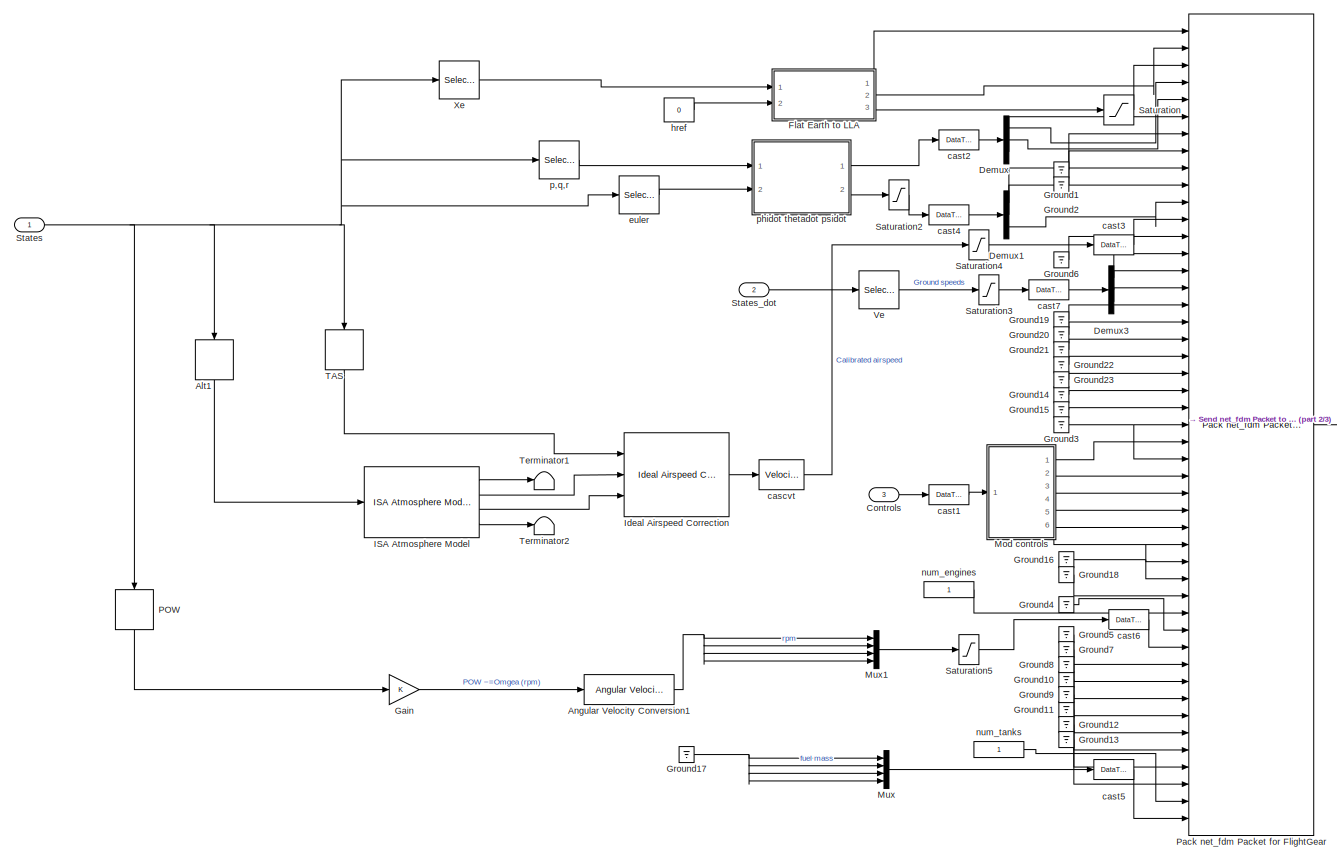
[diagram: FlightGear visualization - part 1/3, most of the canvas]
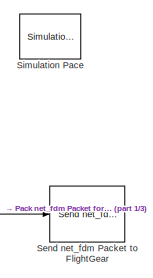
[diagram: FlightGear visualization - part 2/3, middle right region]
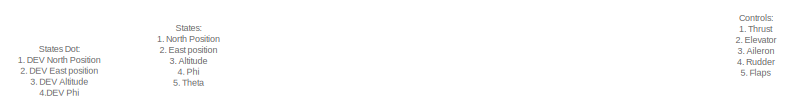
[diagram: FlightGear visualization - part 3/3, bottom center region]
BLOCK [SubSystem] FlightGear visualization
  FunctionWithSeparateData = off
  MaskHideContents = off
  MinAlgLoopOccurrences = off
  Opaque = off
  Ports = [3]
  PropExecContextOutsideSubsystem = off
  RTWSystemCode = Auto
  RequestExecContextInheritance = off
  TreatAsAtomicUnit = on
BLOCK [Selector] FlightGear visualization/Alt1
  IndexOptions = Index vector (dialog)
  Indices = 3
  InputPortWidth = 13
  OutputSizes = 1
  Ports = [1, 1]
BLOCK [Reference] FlightGear visualization/Angular Velocity Conversion1  REF=aerolibconvert2/Angular Velocity
Conversion
  IU = rad/s
  OU = rpm
  Ports = [1, 1]
  SourceBlock = aerolibconvert2/Angular Velocity\nConversion
  SourceType = Angular Velocity Conversion
BLOCK [Inport] FlightGear visualization/Controls
  IconDisplay = Port number
  Port = 3
BLOCK [Demux] FlightGear visualization/Demux
  DisplayOption = bar
  Outputs = 3
  Ports = [1, 3]
BLOCK [Demux] FlightGear visualization/Demux1
  DisplayOption = bar
  Outputs = 3
  Ports = [1, 3]
BLOCK [Demux] FlightGear visualization/Demux3
  DisplayOption = bar
  Outputs = 3
  Ports = [1, 3]
BLOCK [SubSystem] FlightGear visualization/Flat Earth to LLA
  FunctionWithSeparateData = off
  MaskHideContents = off
  MinAlgLoopOccurrences = off
  Opaque = off
  Ports = [2, 3]
  PropExecContextOutsideSubsystem = off
  RTWSystemCode = Auto
  RequestExecContextInheritance = off
BLOCK [Reference] FlightGear visualization/Flat Earth to LLA/Angle Conversion  REF=aerolibconvert2/Angle Conversion
  IU = deg
  OU = rad
  Ports = [1, 1]
  SourceBlock = aerolibconvert2/Angle Conversion
  SourceType = Angle Conversion
BLOCK [Demux] FlightGear visualization/Flat Earth to LLA/Demux2
  Outputs = 2
  Ports = [1, 2]
BLOCK [Demux] FlightGear visualization/Flat Earth to LLA/Demux6
  DisplayOption = bar
  Outputs = [2 1]
  Ports = [1, 2]
BLOCK [Display] FlightGear visualization/Flat Earth to LLA/Display
  Decimation = 1
  Lockdown = off
  Ports = [1]
BLOCK [Reference] FlightGear visualization/Flat Earth to LLA/Flat Earth to LLA  REF=aerolibtransform2/Flat Earth to LLA
  F = 1/298.257223563
  LL0 = [latitude longitude]
  Ports = [2, 2]
  R = 6378137
  SourceBlock = aerolibtransform2/Flat Earth to LLA
  SourceType = Flat Earth to LLA
  psi = 0
  ptype = Earth (WGS84)
  units = Metric (MKS)
BLOCK [Gain] FlightGear visualization/Flat Earth to LLA/Gain
  Gain = -1
  OutDataTypeStr = Inherit: Inherit via internal rule
  ParamDataTypeStr = Inherit: Inherit via internal rule
  SaturateOnIntegerOverflow = off
BLOCK [Mux] FlightGear visualization/Flat Earth to LLA/Mux
  DisplayOption = bar
  Inputs = 2
  Ports = [2, 1]
BLOCK [Inport] FlightGear visualization/Flat Earth to LLA/Xe
  IconDisplay = Port number
BLOCK [Outport] FlightGear visualization/Flat Earth to LLA/altitude h
  IconDisplay = Port number
  Port = 3
BLOCK [Inport] FlightGear visualization/Flat Earth to LLA/altitude0
  IconDisplay = Port number
  Port = 2
BLOCK [Outport] FlightGear visualization/Flat Earth to LLA/latitude mu
  IconDisplay = Port number
  Port = 2
BLOCK [Outport] FlightGear visualization/Flat Earth to LLA/longitude l
  IconDisplay = Port number
BLOCK [Gain] FlightGear visualization/Gain
  OutDataTypeStr = Inherit: Inherit via internal rule
  ParamDataTypeStr = Inherit: Inherit via internal rule
  SaturateOnIntegerOverflow = off
BLOCK [Ground] FlightGear visualization/Ground1
BLOCK [Ground] FlightGear visualization/Ground10
BLOCK [Ground] FlightGear visualization/Ground11
BLOCK [Ground] FlightGear visualization/Ground12
BLOCK [Ground] FlightGear visualization/Ground13
BLOCK [Ground] FlightGear visualization/Ground14
BLOCK [Ground] FlightGear visualization/Ground15
BLOCK [Ground] FlightGear visualization/Ground16
BLOCK [Ground] FlightGear visualization/Ground17
BLOCK [Ground] FlightGear visualization/Ground18
BLOCK [Ground] FlightGear visualization/Ground19
BLOCK [Ground] FlightGear visualization/Ground2
BLOCK [Ground] FlightGear visualization/Ground20
BLOCK [Ground] FlightGear visualization/Ground21
BLOCK [Ground] FlightGear visualization/Ground22
BLOCK [Ground] FlightGear visualization/Ground23
BLOCK [Ground] FlightGear visualization/Ground3
BLOCK [Ground] FlightGear visualization/Ground4
BLOCK [Ground] FlightGear visualization/Ground5
BLOCK [Ground] FlightGear visualization/Ground6
BLOCK [Ground] FlightGear visualization/Ground7
BLOCK [Ground] FlightGear visualization/Ground8
BLOCK [Ground] FlightGear visualization/Ground9
BLOCK [Reference] FlightGear visualization/ISA Atmosphere Model  REF=aerolibatmos2/ISA Atmosphere Model
  L = 0.0065
  P0 = 101325
  Ports = [1, 4]
  R = 287.0531
  SourceBlock = aerolibatmos2/ISA Atmosphere Model
  SourceType = International Standard Atmosphere Model
  T0 = 288.15
  custom = off
  g = 9.80665
  gamma = 1.4
  h_strat = 20000
  h_trop = 11000
  rho0 = 1.225
BLOCK [Reference] FlightGear visualization/Ideal Airspeed Correction  REF=aerolibasang/Ideal Airspeed Correction
  Ports = [3, 1]
  SourceBlock = aerolibasang/Ideal Airspeed Correction
  SourceType = Ideal Airspeed Correction
  action = Warning
  units = Metric (MKS)
  vel_in = TAS
  vel_out_cas = TAS
  vel_out_eas = CAS
  vel_out_tas = CAS
BLOCK [SubSystem] FlightGear visualization/Mod controls
  FunctionWithSeparateData = off
  MaskHideContents = off
  MinAlgLoopOccurrences = off
  Opaque = off
  Ports = [1, 6]
  PropExecContextOutsideSubsystem = off
  RTWSystemCode = Auto
  RequestExecContextInheritance = off
BLOCK [Inport] FlightGear visualization/Mod controls/7dof 
  IconDisplay = Port number
BLOCK [Sum] FlightGear visualization/Mod controls/Add
  InputSameDT = off
  OutDataTypeStr = Inherit: Inherit via internal rule
  Ports = [2, 1]
  SaturateOnIntegerOverflow = off
BLOCK [Reference] FlightGear visualization/Mod controls/Degrees to Radians  REF=simulink_extras/Transformations/Degrees to
Radians
  Ports = [1, 1]
  SourceBlock = simulink_extras/Transformations/Degrees to\nRadians
  SourceType = DegreesToRadians
BLOCK [Reference] FlightGear visualization/Mod controls/Degrees to Radians1  REF=simulink_extras/Transformations/Degrees to
Radians
  Ports = [1, 1]
  SourceBlock = simulink_extras/Transformations/Degrees to\nRadians
  SourceType = DegreesToRadians
BLOCK [Reference] FlightGear visualization/Mod controls/Degrees to Radians2  REF=simulink_extras/Transformations/Degrees to
Radians
  Ports = [1, 1]
  SourceBlock = simulink_extras/Transformations/Degrees to\nRadians
  SourceType = DegreesToRadians
BLOCK [Reference] FlightGear visualization/Mod controls/Degrees to Radians3  REF=simulink_extras/Transformations/Degrees to
Radians
  Ports = [1, 1]
  SourceBlock = simulink_extras/Transformations/Degrees to\nRadians
  SourceType = DegreesToRadians
BLOCK [Reference] FlightGear visualization/Mod controls/Degrees to Radians4  REF=simulink_extras/Transformations/Degrees to
Radians
  Ports = [1, 1]
  SourceBlock = simulink_extras/Transformations/Degrees to\nRadians
  SourceType = DegreesToRadians
BLOCK [Reference] FlightGear visualization/Mod controls/Degrees to Radians5  REF=simulink_extras/Transformations/Degrees to
Radians
  Ports = [1, 1]
  SourceBlock = simulink_extras/Transformations/Degrees to\nRadians
  SourceType = DegreesToRadians
BLOCK [Demux] FlightGear visualization/Mod controls/Demux
  DisplayOption = bar
  Outputs = 8
  Ports = [1, 8]
BLOCK [Outport] FlightGear visualization/Mod controls/Elevator Sym
  IconDisplay = Port number
BLOCK [Gain] FlightGear visualization/Mod controls/Gain
  Gain = 1/2
  OutDataTypeStr = Inherit: Inherit via internal rule
  ParamDataTypeStr = Inherit: Inherit via internal rule
  SaturateOnIntegerOverflow = off
BLOCK [Outport] FlightGear visualization/Mod controls/Left LEF
  IconDisplay = Port number
  Port = 4
BLOCK [Outport] FlightGear visualization/Mod controls/Left flap
  IconDisplay = Port number
  Port = 2
BLOCK [Outport] FlightGear visualization/Mod controls/Right LEF
  IconDisplay = Port number
  Port = 5
BLOCK [Outport] FlightGear visualization/Mod controls/Right flap
  IconDisplay = Port number
  Port = 3
BLOCK [Outport] FlightGear visualization/Mod controls/Rudder
  IconDisplay = Port number
  Port = 6
BLOCK [Terminator] FlightGear visualization/Mod controls/Terminator
BLOCK [Mux] FlightGear visualization/Mux
  DisplayOption = bar
  Ports = [4, 1]
BLOCK [Mux] FlightGear visualization/Mux1
  DisplayOption = bar
  Ports = [4, 1]
BLOCK [Selector] FlightGear visualization/POW
  IndexOptions = Index vector (dialog)
  Indices = 13
  InputPortWidth = 13
  OutputSizes = 1
  Ports = [1, 1]
BLOCK [Reference] FlightGear visualization/Pack net_fdm Packet for FlightGear  REF=aerolibfltsims/Pack
net_fdm Packet
for FlightGear
  AttributesFormatString = FG VERSION: %<FlightGearVersion>
  FlightGearVersion = v2.0
  Ports = [47, 1]
  SampleTime = -1
  ShowControlSurfacePositionInputs = on
  ShowEngineFuelInputs = on
  ShowEnvironmentInputs = off
  ShowLandingGearInputs = off
  ShowPositionAttitudeInputs = on
  ShowVelocityAccelerationInputs = on
  SourceBlock = aerolibfltsims/Pack\nnet_fdm Packet\nfor FlightGear
  SourceType = FlightGearPackNetFdm
BLOCK [Saturate] FlightGear visualization/Saturation
  InputPortMap = u0
  LowerLimit = -1e5
  Ports = [1, 1]
  UpperLimit = 1e8
BLOCK [Saturate] FlightGear visualization/Saturation2
  InputPortMap = u0
  LowerLimit = -1e3
  Ports = [1, 1]
  UpperLimit = 1e3
BLOCK [Saturate] FlightGear visualization/Saturation3
  InputPortMap = u0
  LowerLimit = -1e4
  Ports = [1, 1]
  UpperLimit = 1e4
BLOCK [Saturate] FlightGear visualization/Saturation4
  InputPortMap = u0
  LowerLimit = -1e4
  Ports = [1, 1]
  UpperLimit = 1e4
BLOCK [Saturate] FlightGear visualization/Saturation5
  InputPortMap = u0
  LowerLimit = 0
  Ports = [1, 1]
  UpperLimit = 1e6
BLOCK [Reference] FlightGear visualization/Send net_fdm Packet to FlightGear  REF=aerolibfltsims/Send
net_fdm Packet
to FlightGear
  DestinationIpAddress = 127.0.0.1
  DestinationPort = 5502
  LocalIpPort = -1
  Ports = [1]
  SampleTime = -1
  SourceBlock = aerolibfltsims/Send\nnet_fdm Packet\nto FlightGear
  SourceType = FlightGearSendNetFdm
  varLen = off
BLOCK [Reference] FlightGear visualization/Simulation Pace  REF=aerolibanimutils/Simulation Pace
  AttributesFormatString = %<SimulationPace> sec/sec
  OutputPaceError = off
  Ports = []
  SampleTime = 4*T_sim
  SimulationPace = 1
  SleepMode = MATLAB Thread
  SourceBlock = aerolibanimutils/Simulation Pace
  SourceType = Simulation Pace
BLOCK [Inport] FlightGear visualization/States
  IconDisplay = Port number
BLOCK [Inport] FlightGear visualization/States_dot
  IconDisplay = Port number
  Port = 2
BLOCK [Selector] FlightGear visualization/TAS
  IndexOptions = Index vector (dialog)
  Indices = 7
  InputPortWidth = 13
  OutputSizes = 1
  Ports = [1, 1]
BLOCK [Terminator] FlightGear visualization/Terminator1
BLOCK [Terminator] FlightGear visualization/Terminator2
BLOCK [Selector] FlightGear visualization/Ve
  IndexOptions = Index vector (dialog)
  Indices = [1:3]
  InputPortWidth = 13
  OutputSizes = 1
  Ports = [1, 1]
BLOCK [Selector] FlightGear visualization/Xe
  IndexOptions = Index vector (dialog)
  Indices = [1:3]
  InputPortWidth = 13
  OutputSizes = 1
  Ports = [1, 1]
BLOCK [Reference] FlightGear visualization/cascvt  REF=aerolibconvert/Velocity Conversion
  IU = m/s
  OU = kts
  Ports = [1, 1]
  SourceBlock = aerolibconvert/Velocity Conversion
  SourceType = Velocity Conversion
BLOCK [DataTypeConversion] FlightGear visualization/cast1
  OutDataTypeStr = single
  RndMeth = Floor
BLOCK [DataTypeConversion] FlightGear visualization/cast2
  OutDataTypeStr = single
  RndMeth = Floor
BLOCK [DataTypeConversion] FlightGear visualization/cast3
  OutDataTypeStr = single
  RndMeth = Floor
BLOCK [DataTypeConversion] FlightGear visualization/cast4
  OutDataTypeStr = single
  RndMeth = Floor
BLOCK [DataTypeConversion] FlightGear visualization/cast5
  OutDataTypeStr = single
  RndMeth = Floor
BLOCK [DataTypeConversion] FlightGear visualization/cast6
  OutDataTypeStr = single
  RndMeth = Floor
BLOCK [DataTypeConversion] FlightGear visualization/cast7
  OutDataTypeStr = single
  RndMeth = Floor
BLOCK [Selector] FlightGear visualization/euler
  IndexOptions = Index vector (dialog)
  Indices = [4:6]
  InputPortWidth = 13
  OutputSizes = 1
  Ports = [1, 1]
BLOCK [Constant] FlightGear visualization/href
  Value = 0
  VectorParams1D = off
BLOCK [Constant] FlightGear visualization/num_engines
  OutDataTypeStr = uint32
BLOCK [Constant] FlightGear visualization/num_tanks
  OutDataTypeStr = uint32
BLOCK [Selector] FlightGear visualization/p,q,r
  IndexOptions = Index vector (dialog)
  Indices = [10:12]
  InputPortWidth = 13
  OutputSizes = 1
  Ports = [1, 1]
BLOCK [SubSystem] FlightGear visualization/phidot thetadot psidot
  FunctionWithSeparateData = off
  MaskHideContents = off
  MinAlgLoopOccurrences = off
  Opaque = off
  Ports = [2, 2]
  PropExecContextOutsideSubsystem = off
  RTWSystemCode = Auto
  RequestExecContextInheritance = off
BLOCK [Concatenate] FlightGear visualization/phidot thetadot psidot/Concatenate1
  NumInputs = 3
  Ports = [3, 1]
BLOCK [Concatenate] FlightGear visualization/phidot thetadot psidot/Concatenate2
  NumInputs = 3
  Ports = [3, 1]
BLOCK [Reference] FlightGear visualization/phidot thetadot psidot/SinCos  REF=aerolibobsolete/SinCos
  Ports = [1, 2]
  SourceBlock = aerolibobsolete/SinCos
  SourceType = SinCos
BLOCK [Trigonometry] FlightGear visualization/phidot thetadot psidot/keep angles in range [-pi pi]
  Operator = atan2
  Ports = [2, 1]
BLOCK [Inport] FlightGear visualization/phidot thetadot psidot/phi theta psi
  IconDisplay = Port number
  Port = 2
BLOCK [Fcn] FlightGear visualization/phidot thetadot psidot/phidot
  Expr = u[1]+(u[2]*u[4]+u[3]*u[7])*(u[5]/u[8])
BLOCK [Inport] FlightGear visualization/phidot thetadot psidot/pqr
  IconDisplay = Port number
BLOCK [Fcn] FlightGear visualization/phidot thetadot psidot/psidot
  Expr = (u[2]*u[4]+u[3]*u[7])/u[8]
BLOCK [Outport] FlightGear visualization/phidot thetadot psidot/ptp_dot
  IconDisplay = Port number
  Port = 2
BLOCK [Outport] FlightGear visualization/phidot thetadot psidot/ptp_earth
  IconDisplay = Port number
BLOCK [Fcn] FlightGear visualization/phidot thetadot psidot/thetadot
  Expr = u[2]*u[7]-u[3]*u[4]
BLOCK [From] From
  Commented = on
  GotoTag = Demands
BLOCK [From] From1
  GotoTag = Controls_Def
BLOCK [Gain] Gain
  Gain = 9.81
  OutDataTypeStr = Inherit: Inherit via internal rule
  ParamDataTypeStr = Inherit: Inherit via internal rule
  SaturateOnIntegerOverflow = off
BLOCK [Reference] Generate Run Script (Cranfield Airport)  REF=aerolibfltsims/Generate
Run Script
  AirportId = EGTC
  Architecture = Win64
  DestinationPort = 5502
  FlightGearBaseDirectory = C:\Program Files\FlightGear
  GenerateFile = off
  GeometryModelName = f16
  InitialAltitude = trim_state(3)*3.2808399
  InitialHeading = 0
  LocalAddress = 127.0.0.1
  OffsetAzimuth = 0
  OffsetDistance = 4.72
  OriginAddress = 127.0.0.1
  OriginPort = 5505
  OutputFileName = runfg.bat
  Ports = []
  RunwayId = 1
  SourceBlock = aerolibfltsims/Generate\nRun Script
  SourceType = Generate FlightGear Run Script
  dataFlow = Send
BLOCK [Goto] Goto
  GotoTag = Controls_Def
BLOCK [Ground] Ground
BLOCK [Mux] Mux
  DisplayOption = bar
  Ports = [4, 1]
BLOCK [Mux] Mux4
  Commented = on
  DisplayOption = bar
  Ports = [4, 1]
BLOCK [SubSystem] NDI
  FunctionWithSeparateData = off
  MaskHideContents = off
  MinAlgLoopOccurrences = off
  Opaque = off
  Ports = [2, 2]
  PropExecContextOutsideSubsystem = off
  RTWFcnName = abc
  RTWFcnNameOpts = User specified
  RTWFileName = asas
  RTWFileNameOpts = User specified
  RTWSystemCode = Auto
  RequestExecContextInheritance = off
  VariantObject = LinAndLin
BLOCK [Inport] NDI/All_meas
  IconDisplay = Port number
  Port = 2
BLOCK [Inport] NDI/Angular_acc_des (rad//s^2)
  IconDisplay = Port number
BLOCK [Display] NDI/B  online
  Decimation = 1
  Lockdown = off
  Ports = [1]
BLOCK [Outport] NDI/B online
  IconDisplay = Port number
  Port = 2
BLOCK [BusSelector] NDI/Bus Selector
  OutputSignals = signal1.omega_b meas (rad/s),signal2.q (Pa),signal1.Alt meas (m),signal1.V_TAS (m/s),signal1.AoA meas (rad),signal1.SS meas (rad),signal1.Throttle_meas
  Ports = [1, 7]
BLOCK [Demux] NDI/Demux
  DisplayOption = bar
  Outputs = 3
  Ports = [1, 3]
BLOCK [SubSystem] NDI/Dim_less
  FunctionWithSeparateData = off
  MaskHideContents = off
  MinAlgLoopOccurrences = off
  Opaque = off
  Ports = [4, 3]
  PropExecContextOutsideSubsystem = off
  RTWSystemCode = Auto
  RequestExecContextInheritance = off
BLOCK [Constant] NDI/Dim_less/B span
  Value = 9.144
BLOCK [Constant] NDI/Dim_less/CMA
  Value = 3.45
BLOCK [Outport] NDI/Dim_less/C_L des
  IconDisplay = Port number
BLOCK [Outport] NDI/Dim_less/C_M des
  IconDisplay = Port number
  Port = 2
BLOCK [Outport] NDI/Dim_less/C_N des
  IconDisplay = Port number
  Port = 3
BLOCK [Product] NDI/Dim_less/Divide
  InputSameDT = off
  Inputs = */
  OutDataTypeStr = Inherit: Inherit via internal rule
  Ports = [2, 1]
  RndMeth = Floor
  SaturateOnIntegerOverflow = off
BLOCK [Product] NDI/Dim_less/Divide1
  InputSameDT = off
  Inputs = ***
  OutDataTypeStr = Inherit: Inherit via internal rule
  Ports = [3, 1]
  RndMeth = Floor
  SaturateOnIntegerOverflow = off
BLOCK [Product] NDI/Dim_less/Divide2
  InputSameDT = off
  Inputs = /*
  OutDataTypeStr = Inherit: Inherit via internal rule
  Ports = [2, 1]
  RndMeth = Floor
  SaturateOnIntegerOverflow = off
BLOCK [Product] NDI/Dim_less/Divide3
  InputSameDT = off
  Inputs = ***
  OutDataTypeStr = Inherit: Inherit via internal rule
  Ports = [3, 1]
  RndMeth = Floor
  SaturateOnIntegerOverflow = off
BLOCK [Product] NDI/Dim_less/Divide4
  InputSameDT = off
  Inputs = */
  OutDataTypeStr = Inherit: Inherit via internal rule
  Ports = [2, 1]
  RndMeth = Floor
  SaturateOnIntegerOverflow = off
BLOCK [Inport] NDI/Dim_less/L_comm
  IconDisplay = Port number
BLOCK [Inport] NDI/Dim_less/M_comm
  IconDisplay = Port number
  Port = 2
BLOCK [Inport] NDI/Dim_less/N_comm
  IconDisplay = Port number
  Port = 3
BLOCK [Constant] NDI/Dim_less/S_w
  Value = 27.87
BLOCK [Constant] NDI/Dim_less/S_w1
  Value = 27.87
BLOCK [Inport] NDI/Dim_less/q
  IconDisplay = Port number
  Port = 4
BLOCK [InportShadow] NDI/Dim_less/q1
  IconDisplay = Port number
  LatchByDelayingOutsideSignal = off
  LatchInputForFeedbackSignals = off
  Port = 4
BLOCK [Display] NDI/Display
  Decimation = 1
  Lockdown = off
  Ports = [1]
BLOCK [Display] NDI/Display1
  Decimation = 1
  Lockdown = off
  Ports = [1]
BLOCK [Sum] NDI/Inversion
  IconShape = round
  InputSameDT = off
  Inputs = |+-
  OutDataTypeStr = Inherit: Inherit via internal rule
  Ports = [2, 1]
  SaturateOnIntegerOverflow = off
BLOCK [MATLABFcn] NDI/Mom Coefficients gradient with control deflections at the given dynamics X: It performs perturbations theory arroun the given control deflections
  MATLABFcn = Moms_Coeff_Grad_estimator
  OutputDimensions = 21
  OutputSignalType = real
  Ports = [1, 1]
BLOCK [Mux] NDI/Mux
  DisplayOption = bar
  Inputs = 3
  Ports = [3, 1]
BLOCK [Mux] NDI/Mux1
  DisplayOption = bar
  Inputs = 7
  Ports = [7, 1]
BLOCK [SubSystem] NDI/Pre-Inverter
  ErrorFcn = Stateflow.Translate.translate
  FunctionWithSeparateData = off
  MaskHideContents = off
  MinAlgLoopOccurrences = off
  Opaque = off
  PermitHierarchicalResolution = ExplicitOnly
  Ports = [4, 3]
  PropExecContextOutsideSubsystem = off
  RTWSystemCode = Auto
  RequestExecContextInheritance = off
  SFBlockType = MATLAB Function
  TreatAsAtomicUnit = on
BLOCK [Demux] NDI/Pre-Inverter/ Demux 
  Outputs = 1
  Ports = [1, 1]
BLOCK [S-Function] NDI/Pre-Inverter/ SFunction 
  EnableBusSupport = on
  FunctionName = sf_sfun
  PortCounts = [4 4]
  Ports = [4, 4]
  Tag = Stateflow S-Function F16ASYM_ControlledFAST 8
BLOCK [Terminator] NDI/Pre-Inverter/ Terminator 
BLOCK [Outport] NDI/Pre-Inverter/L_comm
  IconDisplay = Port number
BLOCK [Outport] NDI/Pre-Inverter/M_comm
  IconDisplay = Port number
  Port = 2
BLOCK [Outport] NDI/Pre-Inverter/N_comm
  IconDisplay = Port number
  Port = 3
BLOCK [Inport] NDI/Pre-Inverter/omega_b
  IconDisplay = Port number
  Port = 4
BLOCK [Inport] NDI/Pre-Inverter/p_dot_comm
  IconDisplay = Port number
BLOCK [Inport] NDI/Pre-Inverter/q_dot_comm
  IconDisplay = Port number
  Port = 2
BLOCK [Inport] NDI/Pre-Inverter/r_dot_comm
  IconDisplay = Port number
  Port = 3
BLOCK [Reshape] NDI/Reshape
  OutputDimensionality = Customize
  OutputDimensions = [k_B,m_B]
  Ports = [1, 1]
BLOCK [Constant] NDI/Trim controls Asym In LEFs: Additionaly from dLEF
  Value = [trim_control(1),trim_control(1),trim_control(2),-trim_control(2),trim_control(3),0,0]
BLOCK [Outport] NDI/Virtual Control Commands
  IconDisplay = Port number
BLOCK [MATLABFcn] NDI/f(x)  Mom Coefficients due to the dynamics: Coefficients model with control inputs = Trim control inputs
  MATLABFcn = Moms_Coeff_estimator
  OutputDimensions = 3
  OutputSignalType = real
  Ports = [1, 1]
BLOCK [SubSystem] Plotting
  Commented = on
  FunctionWithSeparateData = off
  MaskHideContents = off
  MinAlgLoopOccurrences = off
  Opaque = off
  Ports = [2]
  PropExecContextOutsideSubsystem = off
  RTWSystemCode = Auto
  RequestExecContextInheritance = off
BLOCK [Inport] Plotting/Demmands
  IconDisplay = Port number
  Port = 2
BLOCK [Demux] Plotting/Demux
  DisplayOption = bar
  Ports = [1, 4]
BLOCK [Demux] Plotting/Demux1
  Outputs = 20
  Ports = [1, 20]
BLOCK [Mux] Plotting/Mux1
  DisplayOption = bar
  Inputs = 2
  Ports = [2, 1]
BLOCK [Mux] Plotting/Mux2
  DisplayOption = bar
  Inputs = 2
  Ports = [2, 1]
BLOCK [Mux] Plotting/Mux3
  DisplayOption = bar
  Inputs = 2
  Ports = [2, 1]
BLOCK [Mux] Plotting/Mux4
  DisplayOption = bar
  Inputs = 2
  Ports = [2, 1]
BLOCK [Scope] Plotting/Responses and commands
  DataFormat = StructureWithTime
  Decimation = 2
  Floating = off
  LegendLocations = 0.87878     0.92496    0.094531    0.036923\n0.88346     0.73521    0.089844    0.036923\n0.88971     0.54444    0.083594    0.036923\n0.88737      0.3547    0.085938    0.036923\n0.88542     0.18154      0.0875    0.020855
  LimitDataPoints = off
  NumInputPorts = 5
  Ports = [5]
  SampleTime = 0
  SaveName = ScopeData2
  ShowLegends = on
  TimeRange = 10
  YMax = 0.45~4.2~0.00015~-0.3405~159.95
  YMin = -0.15~3.875~-0.00015~-0.343~159.35
  ZoomMode = yonly
BLOCK [Scope] Plotting/Scope
  DataFormat = StructureWithTime
  Decimation = 20
  Floating = off
  LimitDataPoints = off
  NumInputPorts = 3
  Ports = [3]
  SampleTime = 0
  ShowLegends = off
  YMax = 13700~8.75e-11~13320
  YMin = 12100~6e-11~13235
BLOCK [Scope] Plotting/Scope1
  DataFormat = StructureWithTime
  Decimation = 2
  Floating = off
  LimitDataPoints = off
  NumInputPorts = 3
  Ports = [3]
  SampleTime = 0.001
  SaveName = ScopeData1
  ShowLegends = off
  TimeRange = 10
  YMax = 232.5~12.5~26
  YMin = 202.5~-10~13
BLOCK [Scope] Plotting/Scope3
  DataFormat = StructureWithTime
  Decimation = 2
  Floating = off
  LimitDataPoints = off
  NumInputPorts = 3
  Ports = [3]
  SampleTime = 0
  SaveName = ScopeData3
  ShowLegends = off
  TimeRange = 10
  YMax = 7~0.04~9
  YMin = -3~-0.04~-3
BLOCK [Scope] Plotting/Scope4
  DataFormat = StructureWithTime
  Decimation = 20
  Floating = off
  LimitDataPoints = off
  NumInputPorts = 3
  Ports = [3]
  SampleTime = 0
  SaveName = ScopeData4
  ShowLegends = off
  YMax = 5~5~5
  YMin = -5~-5~-5
BLOCK [Scope] Plotting/Scope5
  DataFormat = StructureWithTime
  Decimation = 20
  Floating = off
  LimitDataPoints = off
  NumInputPorts = 4
  Ports = [4]
  SampleTime = 0
  SaveName = ScopeData5
  ShowLegends = off
  YMax = 5~5~5~5
  YMin = -5~-5~-5~-5
BLOCK [Inport] Plotting/States
  IconDisplay = Port number
BLOCK [SubSystem] Primary Controller
  FunctionWithSeparateData = off
  MaskHideContents = off
  MinAlgLoopOccurrences = off
  Opaque = off
  Ports = [9, 1]
  PropExecContextOutsideSubsystem = off
  RTWSystemCode = Auto
  RequestExecContextInheritance = off
BLOCK [Inport] Primary Controller/A_w_z des
  IconDisplay = Port number
BLOCK [Inport] Primary Controller/All measures
  IconDisplay = Port number
  Port = 8
BLOCK [Outport] Primary Controller/Angular acc des
  IconDisplay = Port number
BLOCK [Inport] Primary Controller/Anti-windup A_w_z
  IconDisplay = Port number
  Port = 5
BLOCK [Inport] Primary Controller/Anti-windup AoA
  IconDisplay = Port number
  Port = 6
BLOCK [Inport] Primary Controller/Anti-windup beta
  IconDisplay = Port number
  Port = 7
BLOCK [Inport] Primary Controller/Anti-windup signals
  IconDisplay = Port number
  Port = 9
BLOCK [Inport] Primary Controller/AoA des (rad)
  IconDisplay = Port number
  Port = 2
BLOCK [S-Function] Primary Controller/Primary Controller_sfcn
  CopyFcn = if ~strcmp(get_param(gcb,'Linkstatus'),'none') && ...\n~strcmp(get_param(gcb,'Linkstatus'),'implicit')      \n  set_param(gcb,'LinkStatus','none');                \nend
  EnableBusSupport = off
  FunctionName = Primary_sf
  Ports = [21, 1]
BLOCK [SubSystem] Primary Controller/__InputSSForSFun__
  FunctionWithSeparateData = off
  MaskHideContents = off
  MinAlgLoopOccurrences = off
  Opaque = off
  PermitHierarchicalResolution = ExplicitOnly
  Ports = [9, 21]
  PropExecContextOutsideSubsystem = off
  RTWSystemCode = Auto
  RequestExecContextInheritance = off
BLOCK [Inport] Primary Controller/__InputSSForSFun__/A_w_z des
  IconDisplay = Port number
BLOCK [Inport] Primary Controller/__InputSSForSFun__/All measures
  IconDisplay = Port number
  Port = 8
BLOCK [Inport] Primary Controller/__InputSSForSFun__/Anti-windup A_w_z
  IconDisplay = Port number
  Port = 5
BLOCK [Inport] Primary Controller/__InputSSForSFun__/Anti-windup AoA
  IconDisplay = Port number
  Port = 6
BLOCK [Inport] Primary Controller/__InputSSForSFun__/Anti-windup beta
  IconDisplay = Port number
  Port = 7
BLOCK [Inport] Primary Controller/__InputSSForSFun__/Anti-windup signals
  IconDisplay = Port number
  Port = 9
BLOCK [Inport] Primary Controller/__InputSSForSFun__/AoA des (rad)
  IconDisplay = Port number
  Port = 2
BLOCK [Outport] Primary Controller/__InputSSForSFun__/__UniqueOutportName__10__
  IconDisplay = Port number
  Port = 10
BLOCK [Outport] Primary Controller/__InputSSForSFun__/__UniqueOutportName__11__
  IconDisplay = Port number
  Port = 11
BLOCK [Outport] Primary Controller/__InputSSForSFun__/__UniqueOutportName__12__
  IconDisplay = Port number
  Port = 12
BLOCK [Outport] Primary Controller/__InputSSForSFun__/__UniqueOutportName__13__
  IconDisplay = Port number
  Port = 13
BLOCK [Outport] Primary Controller/__InputSSForSFun__/__UniqueOutportName__14__
  IconDisplay = Port number
  Port = 14
BLOCK [Outport] Primary Controller/__InputSSForSFun__/__UniqueOutportName__15__
  IconDisplay = Port number
  Port = 15
BLOCK [Outport] Primary Controller/__InputSSForSFun__/__UniqueOutportName__16__
  IconDisplay = Port number
  Port = 16
BLOCK [Outport] Primary Controller/__InputSSForSFun__/__UniqueOutportName__17__
  IconDisplay = Port number
  Port = 17
BLOCK [Outport] Primary Controller/__InputSSForSFun__/__UniqueOutportName__18__
  IconDisplay = Port number
  Port = 18
BLOCK [Outport] Primary Controller/__InputSSForSFun__/__UniqueOutportName__19__
  IconDisplay = Port number
  Port = 19
BLOCK [Outport] Primary Controller/__InputSSForSFun__/__UniqueOutportName__1__
  IconDisplay = Port number
BLOCK [Outport] Primary Controller/__InputSSForSFun__/__UniqueOutportName__20__
  IconDisplay = Port number
  Port = 20
BLOCK [Outport] Primary Controller/__InputSSForSFun__/__UniqueOutportName__21__
  IconDisplay = Port number
  Port = 21
BLOCK [Outport] Primary Controller/__InputSSForSFun__/__UniqueOutportName__2__
  IconDisplay = Port number
  Port = 2
BLOCK [Outport] Primary Controller/__InputSSForSFun__/__UniqueOutportName__3__
  IconDisplay = Port number
  Port = 3
BLOCK [Outport] Primary Controller/__InputSSForSFun__/__UniqueOutportName__4__
  IconDisplay = Port number
  Port = 4
BLOCK [Outport] Primary Controller/__InputSSForSFun__/__UniqueOutportName__5__
  IconDisplay = Port number
  Port = 5
BLOCK [Outport] Primary Controller/__InputSSForSFun__/__UniqueOutportName__6__
  IconDisplay = Port number
  Port = 6
BLOCK [Outport] Primary Controller/__InputSSForSFun__/__UniqueOutportName__7__
  IconDisplay = Port number
  Port = 7
BLOCK [Outport] Primary Controller/__InputSSForSFun__/__UniqueOutportName__8__
  IconDisplay = Port number
  Port = 8
BLOCK [Outport] Primary Controller/__InputSSForSFun__/__UniqueOutportName__9__
  IconDisplay = Port number
  Port = 9
BLOCK [Inport] Primary Controller/__InputSSForSFun__/beta des (rad)
  IconDisplay = Port number
  Port = 4
BLOCK [Inport] Primary Controller/__InputSSForSFun__/p des (rad//s)
  IconDisplay = Port number
  Port = 3
BLOCK [BusSelector] Primary Controller/__InputSSForSFun__/temporaryBusSelectName_1
  OutputSignals = signal1.Alt meas (m),signal1.V_TAS (m/s),signal1.AoA meas (rad),signal1.SS meas (rad),signal1.omega_b meas (rad/s),signal1.Euler meas (rad),signal1.an_b_CG meas (m/s^2),signal1.Throttle_meas,signal2.q (Pa),signal2.T_F_b->F_T,signal2.T_F_b->F_w,signal2.A_w_CG,signal2.A_b_CG
  Ports = [1, 13]
BLOCK [SubSystem] Primary Controller/__OutputSSForSFun__
  FunctionWithSeparateData = off
  MaskHideContents = off
  MinAlgLoopOccurrences = off
  Opaque = off
  PermitHierarchicalResolution = ExplicitOnly
  Ports = [1, 1]
  PropExecContextOutsideSubsystem = off
  RTWSystemCode = Auto
  RequestExecContextInheritance = off
BLOCK [Outport] Primary Controller/__OutputSSForSFun__/Angular acc des
  IconDisplay = Port number
BLOCK [Inport] Primary Controller/__OutputSSForSFun__/__UniqueInportName__1__
  IconDisplay = Port number
BLOCK [Inport] Primary Controller/beta des (rad)
  IconDisplay = Port number
  Port = 4
BLOCK [Inport] Primary Controller/p des (rad//s)
  IconDisplay = Port number
  Port = 3
BLOCK [SubSystem] Sensors and filtering
  FunctionWithSeparateData = off
  MaskHideContents = off
  MinAlgLoopOccurrences = off
  Opaque = off
  Ports = [1, 1]
  PropExecContextOutsideSubsystem = off
  RTWSystemCode = Auto
  RequestExecContextInheritance = off
BLOCK [Outport] Sensors and filtering/All_measures
  IconDisplay = Port number
BLOCK [BusCreator] Sensors and filtering/Bus Creator
  DisplayOption = bar
  Inputs = 8
  Ports = [8, 1]
BLOCK [BusSelector] Sensors and filtering/Bus Selector2
  OutputSignals = X_e,TAS,alpha;beta,p;q;r,euler,an_b_CG,Throttle
  Ports = [1, 7]
BLOCK [Demux] Sensors and filtering/Demux
  DisplayOption = bar
  Outputs = 3
  Ports = [1, 3]
BLOCK [Demux] Sensors and filtering/Demux1
  DisplayOption = bar
  Outputs = 2
  Ports = [1, 2]
BLOCK [Gain] Sensors and filtering/Gain
  OutDataTypeStr = Inherit: Inherit via internal rule
  ParamDataTypeStr = Inherit: Inherit via internal rule
  SaturateOnIntegerOverflow = off
BLOCK [Gain] Sensors and filtering/Gain1
  OutDataTypeStr = Inherit: Inherit via internal rule
  ParamDataTypeStr = Inherit: Inherit via internal rule
  SaturateOnIntegerOverflow = off
BLOCK [Gain] Sensors and filtering/Gain2
  OutDataTypeStr = Inherit: Inherit via internal rule
  ParamDataTypeStr = Inherit: Inherit via internal rule
  SaturateOnIntegerOverflow = off
BLOCK [Gain] Sensors and filtering/Gain3
  OutDataTypeStr = Inherit: Inherit via internal rule
  ParamDataTypeStr = Inherit: Inherit via internal rule
  SaturateOnIntegerOverflow = off
BLOCK [Gain] Sensors and filtering/Gain4
  OutDataTypeStr = Inherit: Inherit via internal rule
  ParamDataTypeStr = Inherit: Inherit via internal rule
  SaturateOnIntegerOverflow = off
BLOCK [Terminator] Sensors and filtering/Terminator
BLOCK [Terminator] Sensors and filtering/Terminator1
BLOCK [Inport] Sensors and filtering/state
  IconDisplay = Port number
BLOCK [SubSystem] Signal Builder2
  ClipboardFcn = sigbuilder_block('clipboard');
  CloseFcn = sigbuilder_block('close');
  ContinueFcn = sigbuilder_block('continue');
  CopyFcn = sigbuilder_block('copy');
  DeleteFcn = sigbuilder_block('delete');
  FunctionWithSeparateData = off
  LoadFcn = sigbuilder_block('load');
  MaskHideContents = on
  MinAlgLoopOccurrences = off
  ModelCloseFcn = sigbuilder_block('modelClose');
  NameChangeFcn = sigbuilder_block('namechange');
  Opaque = off
  OpenFcn = sigbuilder_block('open',[6 28.5 1012.5 484.5 ]);
  PauseFcn = sigbuilder_block('pause');
  Ports = [0, 4]
  PreSaveFcn = sigbuilder_block('preSave');
  PropExecContextOutsideSubsystem = off
  RTWSystemCode = Auto
  RequestExecContextInheritance = off
  StartFcn = sigbuilder_block('start');
  StopFcn = sigbuilder_block('stop');
  Tag = STV Subsys
BLOCK [Demux] Signal Builder2/Demux
  Ports = [1, 4]
  Tag = STV Demux
BLOCK [FromWorkspace] Signal Builder2/FromWs
  SampleTime = 0
  Tag = STV FromWs
  VariableName = tuvar
  ZeroCross = on
BLOCK [Outport] Signal Builder2/Signal 1
  IconDisplay = Port number
  Tag = STV Outport
BLOCK [Outport] Signal Builder2/Signal 2
  IconDisplay = Port number
  Port = 2
  Tag = STV Outport
BLOCK [Outport] Signal Builder2/Signal 3
  IconDisplay = Port number
  Port = 3
  Tag = STV Outport
BLOCK [Outport] Signal Builder2/Signal 4
  IconDisplay = Port number
  Port = 4
  Tag = STV Outport
BLOCK [Reference] Slider Gain  REF=simulink/Math
Operations/Slider
Gain
  Ports = [1, 1]
  SourceBlock = simulink/Math\nOperations/Slider\nGain
  SourceType = Slider Gain
  gain = 1
  high = 20
  low = 0
BLOCK [Constant] Throttle Trim Setting
  Value = trim_throttle
BLOCK [SubSystem] rad2deg
  Commented = on
  FunctionWithSeparateData = off
  MaskHideContents = off
  MinAlgLoopOccurrences = off
  Opaque = off
  Ports = [2, 1]
  PropExecContextOutsideSubsystem = off
  RTWSystemCode = Auto
  RequestExecContextInheritance = off
BLOCK [BusSelector] rad2deg/Bus Selector
  OutputSignals = States_out,Other outs
  Ports = [1, 2]
BLOCK [BusSelector] rad2deg/Bus Selector1
  OutputSignals = A_w_CG
  Ports = [1, 1]
BLOCK [Demux] rad2deg/Demux1
  Outputs = [3 1 1 1 1 1 1 1 1 1 1 3 3]
  Ports = [1, 13]
BLOCK [Gain] rad2deg/Gain
  Gain = -1
  OutDataTypeStr = Inherit: Inherit via internal rule
  ParamDataTypeStr = Inherit: Inherit via internal rule
  SaturateOnIntegerOverflow = off
BLOCK [Mux] rad2deg/Mux
  DisplayOption = bar
  Inputs = [3 1 1 1 1 1 1 1 1 1 1 3 3 1]
  Ports = [14, 1]
BLOCK [Mux] rad2deg/Mux1
  DisplayOption = bar
  Inputs = 2
  Ports = [2, 1]
BLOCK [Outport] rad2deg/Out1
  IconDisplay = Port number
BLOCK [Inport] rad2deg/Params bus
  IconDisplay = Port number
BLOCK [Selector] rad2deg/Selector
  IndexOptions = Index vector (dialog)
  Indices = 3
  InputPortWidth = 3
  OutputSizes = 1
  Ports = [1, 1]
BLOCK [Inport] rad2deg/States Bus
  IconDisplay = Port number
  Port = 2
BLOCK [Gain] rad2deg/r2d
  Gain = 180/pi
BLOCK [Gain] rad2deg/r2d1
  Gain = 180/pi
BLOCK [Gain] rad2deg/r2d2
  Gain = 180/pi
BLOCK [Gain] rad2deg/r2d3
  Gain = 180/pi
BLOCK [Gain] rad2deg/r2d4
  Gain = 180/pi
BLOCK [Gain] rad2deg/r2d5
  Gain = 180/pi
BLOCK [Gain] rad2deg/r2d6
  Gain = 180/pi
BLOCK [Gain] rad2deg/r2d7
  Gain = 180/pi
ANNOTATION Command A_w_z or A_gamma_z: Pass this one if >0.5
ANNOTATION Control allocator: Displacing arroud trim
ANNOTATION Control allocator: Units: deg.
ANNOTATION F-16 Non-linear Plant1/SYM and ASYM model: No reconfigurable: Add the sytmetric deflection of the LEFs
ANNOTATION F-16 Non-linear Plant1/SYM and ASYM model: No reconfigurable: Fidelity Flage tells nlplant which Model to use: 0: Low Fidelity 1: High Fidelity
ANNOTATION F-16 Non-linear Plant1/SYM and ASYM model: No reconfigurable: INPUTS States: 1. North Position 2. East position 3. Altitude 4. Phi 5. Theta 6. Psi 7. Total velocity 8. alpha in rad 9. beta in rads 10. P 11. Q 12. R 13. POW Controls: 14. Throttle 15. Elevator_L in deg 16. Elevator_R in deg 17. Aileron_L 18. Aileron_R 19. Rudder 20. LEF_L 21. LEF_R 22. Fidelity Flag 23. Model used: Asymetric or Symetric
ANNOTATION F-16 Non-linear Plant1/SYM and ASYM model: No reconfigurable: Mdoel used Flage tells the plant if Asymetric or symetric model is used: 0: Symetric Model 1: Asymetric model
ANNOTATION F-16 Non-linear Plant1/SYM and ASYM model: No reconfigurable: OUTPUTS States: 1. DEV North Position 2. DEV East position 3. DEV Altitude 4.DEV Phi 5. DEV Theta 6. DEV Psi 7. DEV Total velocity 8.DEV alpha in rad 9.DEV beta in rads 10. DEV P 11. DEV Q 12. DEV R 13. DEV POW Other outputs: Accels of CG: 14. anx_cg 15. any_cg 16. anz_cg 17. mach 18. qbar 19. ps Static Pressure
ANNOTATION F-16 Non-linear Plant1/SYM and ASYM model: No reconfigurable/Actuators Dynamcis: Controls: 1. Throttle 2. Elevator_L in deg 3. Elevator_R in deg 4. Aileron_L 5. Aileron_R 6. Rudder 7. LEF_L 8. LEF_R
ANNOTATION F-16 Non-linear Plant1/SYM and ASYM model: No reconfigurable/Actuators Dynamcis: No dynamics for throttle since the engine dynamics is inside the model
ANNOTATION F-16 Non-linear Plant1/SYM and ASYM model: No reconfigurable/Actuators Dynamcis: This addition in LEFs can be done if assumed Linear aerodynamics
ANNOTATION F-16 Non-linear Plant1/SYM and ASYM model: No reconfigurable/Actuators Dynamcis: Units: deg.
ANNOTATION F-16 Non-linear Plant1/SYM and ASYM model: No reconfigurable/Leading Edge Flap:Symetric deflection: Initialize LF_state with -alpha0 value in degrees!!!!
ANNOTATION F-16 Non-linear Plant1/SYM and ASYM model: No reconfigurable/Leading Edge Flap:Symetric deflection: Same as atmos() in nlplant...c
ANNOTATION F-16 Non-linear Plant1/SYM and ASYM model: No reconfigurable/Leading Edge Flap:Symetric deflection: see NASA Technical Paper 1538, p34
ANNOTATION F-16 Non-linear Plant1/SYM and ASYM model: RECONFIGURABLE: Add the sytmetric deflection of the LEFs
ANNOTATION F-16 Non-linear Plant1/SYM and ASYM model: RECONFIGURABLE: Fidelity Flage tells nlplant which Model to use: 0: Low Fidelity 1: High Fidelity
ANNOTATION F-16 Non-linear Plant1/SYM and ASYM model: RECONFIGURABLE: INPUTS States: 1. North Position 2. East position 3. Altitude 4. Phi 5. Theta 6. Psi 7. Total velocity 8. alpha in rad 9. beta in rads 10. P 11. Q 12. R 13. POW Controls: 14. Throttle 15. Elevator_L in deg 16. Elevator_R in deg 17. Aileron_L 18. Aileron_R 19. Rudder 20. LEF_L 21. LEF_R 22. Fidelity Flag 23. Model used: Asymetric or Symetric
ANNOTATION F-16 Non-linear Plant1/SYM and ASYM model: RECONFIGURABLE: Mdoel used Flage tells the plant if Asymetric or symetric model is used: 0: Symetric Model 1: Asymetric model
ANNOTATION F-16 Non-linear Plant1/SYM and ASYM model: RECONFIGURABLE: OUTPUTS States: 1. DEV North Position 2. DEV East position 3. DEV Altitude 4.DEV Phi 5. DEV Theta 6. DEV Psi 7. DEV Total velocity 8.DEV alpha in rad 9.DEV beta in rads 10. DEV P 11. DEV Q 12. DEV R 13. DEV POW Other outputs: Accels of CG: 14. anx_cg 15. any_cg 16. anz_cg 17. mach 18. qbar 19. ps Static Pressure
ANNOTATION F-16 Non-linear Plant1/SYM and ASYM model: RECONFIGURABLE/Actuators Dynamcis: Controls: 1. Throttle 2. Elevator_L in deg 3. Elevator_R in deg 4. Aileron_L 5. Aileron_R 6. Rudder 7. LEF_L 8. LEF_R
ANNOTATION F-16 Non-linear Plant1/SYM and ASYM model: RECONFIGURABLE/Actuators Dynamcis: No dynamics for throttle since the engine dynamics is inside the model
ANNOTATION F-16 Non-linear Plant1/SYM and ASYM model: RECONFIGURABLE/Actuators Dynamcis: This addition in LEFs can be done if assumed Linear aerodynamics
ANNOTATION F-16 Non-linear Plant1/SYM and ASYM model: RECONFIGURABLE/Actuators Dynamcis: Units: deg.
ANNOTATION F-16 Non-linear Plant1/SYM and ASYM model: RECONFIGURABLE/Leading Edge Flap:Symetric deflection: Initialize LF_state with -alpha0 value in degrees!!!!
ANNOTATION F-16 Non-linear Plant1/SYM and ASYM model: RECONFIGURABLE/Leading Edge Flap:Symetric deflection: Same as atmos() in nlplant...c
ANNOTATION F-16 Non-linear Plant1/SYM and ASYM model: RECONFIGURABLE/Leading Edge Flap:Symetric deflection: see NASA Technical Paper 1538, p34
ANNOTATION FlightGear visualization: States Dot: 1. DEV North Position 2. DEV East position 3. DEV Altitude 4.DEV Phi 5. DEV Theta 6. DEV Psi 7. DEV Total velocity 8.DEV alpha in rad 9.DEV beta in rads 10. DEV P 11. DEV Q 12. DEV R
ANNOTATION FlightGear visualization: Controls: 1. Thrust 2. Elevator 3. Aileron 4. Rudder 5. Flaps
ANNOTATION FlightGear visualization: States: 1. North Position 2. East position 3. Altitude 4. Phi 5. Theta 6. Psi 7. Total velocity 8. alpha in rad 9. beta in rads 10. P 11. Q 12. R 13 POW
ANNOTATION FlightGear visualization/Flat Earth to LLA: Flat Earth to LLA
ANNOTATION NDI: These two block MUST be evaluated at the same dynamics X and control deflections delta* delta* are a given set of control deflection: can be either the initial trim set or the previous deflections
ANNOTATION Sensors and filtering: There should be noise here in the midle
ANNOTATION Sensors and filtering: This is measured load factor
ANNOTATION rad2deg: alpha
ANNOTATION rad2deg: beta
ANNOTATION rad2deg: npos,epos,alt
ANNOTATION rad2deg: p
ANNOTATION rad2deg: phi
ANNOTATION rad2deg: psi
ANNOTATION rad2deg: q
ANNOTATION rad2deg: r
ANNOTATION rad2deg: theta
ANNOTATION rad2deg: v
LINE   1:1 -> Mux4:3
LINE   2:1 -> Mux4:4
LINE   :1 -> Mux4:2
NET Add trim:1 -> Demands:1, Demux1:1
LINE Anti-windup Calculation/Abs:1 -> Anti-windup Calculation/Matrix Multiply1:2
LINE Anti-windup Calculation/Add:1 -> Anti-windup Calculation/Anti-windup signals:1
LINE Anti-windup Calculation/B matrix:1 -> Anti-windup Calculation/Matrix Multiply:1
LINE Anti-windup Calculation/Manual Switch:1 -> Anti-windup Calculation/Matrix Multiply:2
LINE Anti-windup Calculation/Matrix Multiply1:1 -> Anti-windup Calculation/Manual Switch:2
LINE Anti-windup Calculation/Matrix Multiply:1 -> Anti-windup Calculation/Add:2
NET Anti-windup Calculation/Surf defle:1 -> Anti-windup Calculation/Manual Switch:1, Anti-windup Calculation/Matrix Multiply1:1
LINE Anti-windup Calculation/Surf saturated:1 -> Anti-windup Calculation/Abs:1
LINE Anti-windup Calculation/virtual commans:1 -> Anti-windup Calculation/Add:1
NET Anti-windup Calculation:1 -> Display:1, Primary Controller:9
NET Bus Creator:1 -> Command A_w_z or A_gamma_z:1, NDI:2, Primary Controller:8
LINE Bus Selector1:1 -> FlightGear visualization:1
LINE Bus Selector1:2 -> FlightGear visualization:2
LINE Bus Selector2:1 -> F-16 Non-linear Plant1:1
LINE Command A_w_z or A_gamma_z/A_b:1 -> Command A_w_z or A_gamma_z/A_w:2
LINE Command A_w_z or A_gamma_z/A_w:1 -> Command A_w_z or A_gamma_z/Selector:1
NET Command A_w_z or A_gamma_z/Acc command:1 -> Command A_w_z or A_gamma_z/Gain:1, Command A_w_z or A_gamma_z/Switch:3
LINE Command A_w_z or A_gamma_z/All meas:1 -> Command A_w_z or A_gamma_z/Bus Selector3:1
LINE Command A_w_z or A_gamma_z/Bus Selector3:1 -> Command A_w_z or A_gamma_z/Transpose:1
LINE Command A_w_z or A_gamma_z/Bus Selector3:2 -> Command A_w_z or A_gamma_z/A_w:1
LINE Command A_w_z or A_gamma_z/Criteria:1 -> Command A_w_z or A_gamma_z/Switch:2
LINE Command A_w_z or A_gamma_z/Gain1:1 -> Command A_w_z or A_gamma_z/Switch:1
LINE Command A_w_z or A_gamma_z/Gain:1 -> Command A_w_z or A_gamma_z/A_b:2
LINE Command A_w_z or A_gamma_z/Selector:1 -> Command A_w_z or A_gamma_z/Gain1:1
LINE Command A_w_z or A_gamma_z/Switch:1 -> Command A_w_z or A_gamma_z/A_w_z:1
LINE Command A_w_z or A_gamma_z/Transpose:1 -> Command A_w_z or A_gamma_z/A_b:1
NET Command A_w_z or A_gamma_z:1 -> Display1:1, Mux:1
NET Control allocator/Aileron_L Trim Setting:1 -> Control allocator/Sum2:2, Control allocator/Sum5:1
LINE Control allocator/B matrix Online:1 -> Control allocator/Manual Switch:2
NET Control allocator/Control allocator Completed :1 -> Control allocator/Deflec:1, Control allocator/Memory:1, Control allocator/u [m x 1]:1
NET Control allocator/Control allocator Completed :2 -> Control allocator/Saturations: +1 Upper saturated -1 Lower saturated 0 No saturation:1, Control allocator/Surf_saturated:1
LINE Control allocator/Control allocator Completed :3 -> Control allocator/Max iters reached:1
LINE Control allocator/Control positions deviation Weight W1:1 -> Control allocator/Control allocator Completed :7
LINE Control allocator/Control rates Weight W2:1 -> Control allocator/Control allocator Completed :8
LINE Control allocator/Demux:1 -> Control allocator/Sum1:1
LINE Control allocator/Demux:2 -> Control allocator/Sum4:2
LINE Control allocator/Demux:3 -> Control allocator/Sum2:1
LINE Control allocator/Demux:4 -> Control allocator/Sum5:2
LINE Control allocator/Demux:5 -> Control allocator/Sum3:1
LINE Control allocator/Demux:6 -> Control allocator/Mux2:7
LINE Control allocator/Demux:7 -> Control allocator/Mux2:8
LINE Control allocator/Desired Control positions:1 -> Control allocator/Control allocator Completed :2
LINE Control allocator/Effectiveness Matrix B 2:1 -> Control allocator/Control allocator Completed :3
LINE Control allocator/Effectiveness Matrix B:1 -> Control allocator/Manual Switch:1
NET Control allocator/Elevator Trim Setting:1 -> Control allocator/Sum1:2, Control allocator/Sum4:1
LINE Control allocator/Enalbe//Disable:1 -> Control allocator/Control allocator Completed :10
LINE Control allocator/Error Weight Wv:1 -> Control allocator/Control allocator Completed :6
LINE Control allocator/Inf lim:1 -> Control allocator/Matrix Concatenate:1
LINE Control allocator/Inf:1 -> Control allocator/Inf lim:2
NET Control allocator/Manual Switch:1 -> Control allocator/B matrix:1, Control allocator/Effectiveness Matrix B 1:1
LINE Control allocator/Matrix Concatenate:1 -> Control allocator/Control allocator Completed :4
LINE Control allocator/Memory:1 -> Control allocator/Demux:1
LINE Control allocator/Mom_Coef_des:1 -> Control allocator/Control allocator Completed :1
NET Control allocator/Mux2:1 -> Control allocator/Control_Commands:1, Control allocator/Controls:1
NET Control allocator/Position limits:1 -> Control allocator/Inf:1, Control allocator/Sup:1
LINE Control allocator/Rates limits:1 -> Control allocator/Control allocator Completed :5
LINE Control allocator/Rudder Trim Setting:1 -> Control allocator/Sum3:2
LINE Control allocator/Sum1:1 -> Control allocator/Mux2:2
LINE Control allocator/Sum2:1 -> Control allocator/Mux2:4
LINE Control allocator/Sum3:1 -> Control allocator/Mux2:6
LINE Control allocator/Sum4:1 -> Control allocator/Mux2:3
LINE Control allocator/Sum5:1 -> Control allocator/Mux2:5
LINE Control allocator/Sup lim:1 -> Control allocator/Matrix Concatenate:2
LINE Control allocator/Sup:1 -> Control allocator/Sup lim:2
LINE Control allocator/Throttle des:1 -> Control allocator/Mux2:1
NET Control allocator/Trim controls Asym In LEFs: Additionaly from 0:1 -> Control allocator/Inf lim:1, Control allocator/Sup lim:1
LINE Control allocator/manual Initial saturations:1 -> Control allocator/Control allocator Completed :9
LINE Control allocator:1 -> F-16 Non-linear Plant1:3
LINE Control allocator:2 -> Anti-windup Calculation:4
LINE Control allocator:3 -> Anti-windup Calculation:3
LINE Control allocator:4 -> Anti-windup Calculation:2
LINE Demux1:1 -> Primary Controller:1
LINE Demux1:2 -> Primary Controller:2
LINE Demux1:3 -> Primary Controller:3
LINE Demux1:4 -> Primary Controller:4
LINE Demux:1 -> Mux4:1
LINE Demux:2 ->   :1
LINE Demux:3 ->   1:1
LINE Demux:4 ->   2:1
LINE Environment params Estimations1/All_meas:1 -> Environment params Estimations1/__InputSSForSFun__:1
LINE Environment params Estimations1/Environment params Estimations_sfcn:1 -> Environment params Estimations1/__OutputSSForSFun__:1
LINE Environment params Estimations1/Environment params Estimations_sfcn:2 -> Environment params Estimations1/__OutputSSForSFun__:2
LINE Environment params Estimations1/Environment params Estimations_sfcn:3 -> Environment params Estimations1/__OutputSSForSFun__:3
LINE Environment params Estimations1/Environment params Estimations_sfcn:4 -> Environment params Estimations1/__OutputSSForSFun__:4
LINE Environment params Estimations1/Environment params Estimations_sfcn:5 -> Environment params Estimations1/__OutputSSForSFun__:5
LINE Environment params Estimations1/__InputSSForSFun__/All_meas:1 -> Environment params Estimations1/__InputSSForSFun__/temporaryBusSelectName_1:1
LINE Environment params Estimations1/__InputSSForSFun__/temporaryBusSelectName_1:1 -> Environment params Estimations1/__InputSSForSFun__/__UniqueOutportName__1__:1
LINE Environment params Estimations1/__InputSSForSFun__/temporaryBusSelectName_1:2 -> Environment params Estimations1/__InputSSForSFun__/__UniqueOutportName__2__:1
LINE Environment params Estimations1/__InputSSForSFun__/temporaryBusSelectName_1:3 -> Environment params Estimations1/__InputSSForSFun__/__UniqueOutportName__3__:1
LINE Environment params Estimations1/__InputSSForSFun__/temporaryBusSelectName_1:4 -> Environment params Estimations1/__InputSSForSFun__/__UniqueOutportName__4__:1
LINE Environment params Estimations1/__InputSSForSFun__/temporaryBusSelectName_1:5 -> Environment params Estimations1/__InputSSForSFun__/__UniqueOutportName__5__:1
LINE Environment params Estimations1/__InputSSForSFun__/temporaryBusSelectName_1:6 -> Environment params Estimations1/__InputSSForSFun__/__UniqueOutportName__6__:1
LINE Environment params Estimations1/__InputSSForSFun__/temporaryBusSelectName_1:7 -> Environment params Estimations1/__InputSSForSFun__/__UniqueOutportName__7__:1
LINE Environment params Estimations1/__InputSSForSFun__/temporaryBusSelectName_1:8 -> Environment params Estimations1/__InputSSForSFun__/__UniqueOutportName__8__:1
LINE Environment params Estimations1/__InputSSForSFun__:1 -> Environment params Estimations1/Environment params Estimations_sfcn:1
LINE Environment params Estimations1/__InputSSForSFun__:2 -> Environment params Estimations1/Environment params Estimations_sfcn:2
LINE Environment params Estimations1/__InputSSForSFun__:3 -> Environment params Estimations1/Environment params Estimations_sfcn:3
LINE Environment params Estimations1/__InputSSForSFun__:4 -> Environment params Estimations1/Environment params Estimations_sfcn:4
LINE Environment params Estimations1/__InputSSForSFun__:5 -> Environment params Estimations1/Environment params Estimations_sfcn:5
LINE Environment params Estimations1/__InputSSForSFun__:6 -> Environment params Estimations1/Environment params Estimations_sfcn:6
LINE Environment params Estimations1/__InputSSForSFun__:7 -> Environment params Estimations1/Environment params Estimations_sfcn:7
LINE Environment params Estimations1/__InputSSForSFun__:8 -> Environment params Estimations1/Environment params Estimations_sfcn:8
LINE Environment params Estimations1/__OutputSSForSFun__/Mux1:1 -> Environment params Estimations1/__OutputSSForSFun__/Params:1
LINE Environment params Estimations1/__OutputSSForSFun__/__UniqueInportName__1__:1 -> Environment params Estimations1/__OutputSSForSFun__/Mux1:1
LINE Environment params Estimations1/__OutputSSForSFun__/__UniqueInportName__2__:1 -> Environment params Estimations1/__OutputSSForSFun__/Mux1:2
LINE Environment params Estimations1/__OutputSSForSFun__/__UniqueInportName__3__:1 -> Environment params Estimations1/__OutputSSForSFun__/Mux1:3
LINE Environment params Estimations1/__OutputSSForSFun__/__UniqueInportName__4__:1 -> Environment params Estimations1/__OutputSSForSFun__/Mux1:4
LINE Environment params Estimations1/__OutputSSForSFun__/__UniqueInportName__5__:1 -> Environment params Estimations1/__OutputSSForSFun__/Mux1:5
LINE Environment params Estimations1/__OutputSSForSFun__:1 -> Environment params Estimations1/Params:1
NET Environment params Estimations1:1 -> Bus Creator:2, rad2deg:1
NET F-16 Non-linear Plant1/SYM and ASYM model: No reconfigurable/Actuators Dynamcis/Aileron Actuator1:1 -> F-16 Non-linear Plant1/SYM and ASYM model: No reconfigurable/Actuators Dynamcis/Mux2:5, F-16 Non-linear Plant1/SYM and ASYM model: No reconfigurable/Actuators Dynamcis/Mux5:1
NET F-16 Non-linear Plant1/SYM and ASYM model: No reconfigurable/Actuators Dynamcis/Aileron Actuator:1 -> F-16 Non-linear Plant1/SYM and ASYM model: No reconfigurable/Actuators Dynamcis/Mux1:2, F-16 Non-linear Plant1/SYM and ASYM model: No reconfigurable/Actuators Dynamcis/Mux2:4
LINE F-16 Non-linear Plant1/SYM and ASYM model: No reconfigurable/Actuators Dynamcis/Aileron_L Trim Setting:1 -> F-16 Non-linear Plant1/SYM and ASYM model: No reconfigurable/Actuators Dynamcis/Aileron Actuator:2
LINE F-16 Non-linear Plant1/SYM and ASYM model: No reconfigurable/Actuators Dynamcis/Aileron_R Trim Setting:1 -> F-16 Non-linear Plant1/SYM and ASYM model: No reconfigurable/Actuators Dynamcis/Aileron Actuator1:2
LINE F-16 Non-linear Plant1/SYM and ASYM model: No reconfigurable/Actuators Dynamcis/Control_commands:1 -> F-16 Non-linear Plant1/SYM and ASYM model: No reconfigurable/Actuators Dynamcis/Demux:1
LINE F-16 Non-linear Plant1/SYM and ASYM model: No reconfigurable/Actuators Dynamcis/Demux:1 -> F-16 Non-linear Plant1/SYM and ASYM model: No reconfigurable/Actuators Dynamcis/Saturation1:1
NET F-16 Non-linear Plant1/SYM and ASYM model: No reconfigurable/Actuators Dynamcis/Demux:2 -> F-16 Non-linear Plant1/SYM and ASYM model: No reconfigurable/Actuators Dynamcis/Elevator Actuator:1, F-16 Non-linear Plant1/SYM and ASYM model: No reconfigurable/Actuators Dynamcis/Mux:1
NET F-16 Non-linear Plant1/SYM and ASYM model: No reconfigurable/Actuators Dynamcis/Demux:3 -> F-16 Non-linear Plant1/SYM and ASYM model: No reconfigurable/Actuators Dynamcis/Elevator Actuator1:1, F-16 Non-linear Plant1/SYM and ASYM model: No reconfigurable/Actuators Dynamcis/Mux4:2
NET F-16 Non-linear Plant1/SYM and ASYM model: No reconfigurable/Actuators Dynamcis/Demux:4 -> F-16 Non-linear Plant1/SYM and ASYM model: No reconfigurable/Actuators Dynamcis/Aileron Actuator:1, F-16 Non-linear Plant1/SYM and ASYM model: No reconfigurable/Actuators Dynamcis/Mux1:1
NET F-16 Non-linear Plant1/SYM and ASYM model: No reconfigurable/Actuators Dynamcis/Demux:5 -> F-16 Non-linear Plant1/SYM and ASYM model: No reconfigurable/Actuators Dynamcis/Aileron Actuator1:1, F-16 Non-linear Plant1/SYM and ASYM model: No reconfigurable/Actuators Dynamcis/Mux5:2
NET F-16 Non-linear Plant1/SYM and ASYM model: No reconfigurable/Actuators Dynamcis/Demux:6 -> F-16 Non-linear Plant1/SYM and ASYM model: No reconfigurable/Actuators Dynamcis/Mux3:1, F-16 Non-linear Plant1/SYM and ASYM model: No reconfigurable/Actuators Dynamcis/Rudder Actuator:1
NET F-16 Non-linear Plant1/SYM and ASYM model: No reconfigurable/Actuators Dynamcis/Demux:7 -> F-16 Non-linear Plant1/SYM and ASYM model: No reconfigurable/Actuators Dynamcis/LEF Actuator:1, F-16 Non-linear Plant1/SYM and ASYM model: No reconfigurable/Actuators Dynamcis/Mux6:1
NET F-16 Non-linear Plant1/SYM and ASYM model: No reconfigurable/Actuators Dynamcis/Demux:8 -> F-16 Non-linear Plant1/SYM and ASYM model: No reconfigurable/Actuators Dynamcis/LEF Actuator1:1, F-16 Non-linear Plant1/SYM and ASYM model: No reconfigurable/Actuators Dynamcis/Mux7:1
NET F-16 Non-linear Plant1/SYM and ASYM model: No reconfigurable/Actuators Dynamcis/Elevator Actuator1:1 -> F-16 Non-linear Plant1/SYM and ASYM model: No reconfigurable/Actuators Dynamcis/Mux2:3, F-16 Non-linear Plant1/SYM and ASYM model: No reconfigurable/Actuators Dynamcis/Mux4:1
NET F-16 Non-linear Plant1/SYM and ASYM model: No reconfigurable/Actuators Dynamcis/Elevator Actuator:1 -> F-16 Non-linear Plant1/SYM and ASYM model: No reconfigurable/Actuators Dynamcis/Mux2:2, F-16 Non-linear Plant1/SYM and ASYM model: No reconfigurable/Actuators Dynamcis/Mux:2
NET F-16 Non-linear Plant1/SYM and ASYM model: No reconfigurable/Actuators Dynamcis/LEF Actuator1:1 -> F-16 Non-linear Plant1/SYM and ASYM model: No reconfigurable/Actuators Dynamcis/Mux2:8, F-16 Non-linear Plant1/SYM and ASYM model: No reconfigurable/Actuators Dynamcis/Mux7:2
NET F-16 Non-linear Plant1/SYM and ASYM model: No reconfigurable/Actuators Dynamcis/LEF Actuator:1 -> F-16 Non-linear Plant1/SYM and ASYM model: No reconfigurable/Actuators Dynamcis/Mux2:7, F-16 Non-linear Plant1/SYM and ASYM model: No reconfigurable/Actuators Dynamcis/Mux6:2
LINE F-16 Non-linear Plant1/SYM and ASYM model: No reconfigurable/Actuators Dynamcis/Mux1:1 -> F-16 Non-linear Plant1/SYM and ASYM model: No reconfigurable/Actuators Dynamcis/Aileron_L Scope:1
NET F-16 Non-linear Plant1/SYM and ASYM model: No reconfigurable/Actuators Dynamcis/Mux2:1 -> F-16 Non-linear Plant1/SYM and ASYM model: No reconfigurable/Actuators Dynamcis/Control Surface Deflections:1, F-16 Non-linear Plant1/SYM and ASYM model: No reconfigurable/Actuators Dynamcis/Dec_Control_def:1
LINE F-16 Non-linear Plant1/SYM and ASYM model: No reconfigurable/Actuators Dynamcis/Mux3:1 -> F-16 Non-linear Plant1/SYM and ASYM model: No reconfigurable/Actuators Dynamcis/Rudder Scope:1
LINE F-16 Non-linear Plant1/SYM and ASYM model: No reconfigurable/Actuators Dynamcis/Mux4:1 -> F-16 Non-linear Plant1/SYM and ASYM model: No reconfigurable/Actuators Dynamcis/Elevator_R Scope:1
LINE F-16 Non-linear Plant1/SYM and ASYM model: No reconfigurable/Actuators Dynamcis/Mux5:1 -> F-16 Non-linear Plant1/SYM and ASYM model: No reconfigurable/Actuators Dynamcis/Aileron_R Scope1:1
LINE F-16 Non-linear Plant1/SYM and ASYM model: No reconfigurable/Actuators Dynamcis/Mux7:1 -> F-16 Non-linear Plant1/SYM and ASYM model: No reconfigurable/Actuators Dynamcis/LEF_R Scope:1
LINE F-16 Non-linear Plant1/SYM and ASYM model: No reconfigurable/Actuators Dynamcis/Mux:1 -> F-16 Non-linear Plant1/SYM and ASYM model: No reconfigurable/Actuators Dynamcis/Elevator_L Scope:1
NET F-16 Non-linear Plant1/SYM and ASYM model: No reconfigurable/Actuators Dynamcis/Rudder Actuator:1 -> F-16 Non-linear Plant1/SYM and ASYM model: No reconfigurable/Actuators Dynamcis/Mux2:6, F-16 Non-linear Plant1/SYM and ASYM model: No reconfigurable/Actuators Dynamcis/Mux3:2
NET F-16 Non-linear Plant1/SYM and ASYM model: No reconfigurable/Actuators Dynamcis/Saturation1:1 -> F-16 Non-linear Plant1/SYM and ASYM model: No reconfigurable/Actuators Dynamcis/Mux2:1, F-16 Non-linear Plant1/SYM and ASYM model: No reconfigurable/Actuators Dynamcis/Throttle_meas:1
NET F-16 Non-linear Plant1/SYM and ASYM model: No reconfigurable/Actuators Dynamcis:1 -> F-16 Non-linear Plant1/SYM and ASYM model: No reconfigurable/Actual control def:1, F-16 Non-linear Plant1/SYM and ASYM model: No reconfigurable/Mux5:2
LINE F-16 Non-linear Plant1/SYM and ASYM model: No reconfigurable/Actuators Dynamcis:2 -> F-16 Non-linear Plant1/SYM and ASYM model: No reconfigurable/Bus Creator:12
NET F-16 Non-linear Plant1/SYM and ASYM model: No reconfigurable/Bus Creator:1 -> F-16 Non-linear Plant1/SYM and ASYM model: No reconfigurable/Leading Edge Flap:Symetric deflection:1, F-16 Non-linear Plant1/SYM and ASYM model: No reconfigurable/Output_bus:1
LINE F-16 Non-linear Plant1/SYM and ASYM model: No reconfigurable/Control Comands:1 -> F-16 Non-linear Plant1/SYM and ASYM model: No reconfigurable/Demux1:1
LINE F-16 Non-linear Plant1/SYM and ASYM model: No reconfigurable/Demux1:1 -> F-16 Non-linear Plant1/SYM and ASYM model: No reconfigurable/Mux1:1
LINE F-16 Non-linear Plant1/SYM and ASYM model: No reconfigurable/Demux1:2 -> F-16 Non-linear Plant1/SYM and ASYM model: No reconfigurable/Mux1:2
LINE F-16 Non-linear Plant1/SYM and ASYM model: No reconfigurable/Demux1:3 -> F-16 Non-linear Plant1/SYM and ASYM model: No reconfigurable/Mux1:3
LINE F-16 Non-linear Plant1/SYM and ASYM model: No reconfigurable/Demux1:4 -> F-16 Non-linear Plant1/SYM and ASYM model: No reconfigurable/Mux1:4
LINE F-16 Non-linear Plant1/SYM and ASYM model: No reconfigurable/Demux1:5 -> F-16 Non-linear Plant1/SYM and ASYM model: No reconfigurable/Mux1:5
LINE F-16 Non-linear Plant1/SYM and ASYM model: No reconfigurable/Demux1:6 -> F-16 Non-linear Plant1/SYM and ASYM model: No reconfigurable/Mux1:6
LINE F-16 Non-linear Plant1/SYM and ASYM model: No reconfigurable/Demux1:7 -> F-16 Non-linear Plant1/SYM and ASYM model: No reconfigurable/Sum9:1
LINE F-16 Non-linear Plant1/SYM and ASYM model: No reconfigurable/Demux1:8 -> F-16 Non-linear Plant1/SYM and ASYM model: No reconfigurable/Sum1:1
NET F-16 Non-linear Plant1/SYM and ASYM model: No reconfigurable/Demux:1 -> F-16 Non-linear Plant1/SYM and ASYM model: No reconfigurable/Bus Creator:1, F-16 Non-linear Plant1/SYM and ASYM model: No reconfigurable/Integrate F16 State Derivatives:1, F-16 Non-linear Plant1/SYM and ASYM model: No reconfigurable/Selector1:1, F-16 Non-linear Plant1/SYM and ASYM model: No reconfigurable/Selector9:1
NET F-16 Non-linear Plant1/SYM and ASYM model: No reconfigurable/Demux:2 -> F-16 Non-linear Plant1/SYM and ASYM model: No reconfigurable/Bus Creator:3, F-16 Non-linear Plant1/SYM and ASYM model: No reconfigurable/Selector6:1
LINE F-16 Non-linear Plant1/SYM and ASYM model: No reconfigurable/F16 nlsim nlplant Asymetrical:1 -> F-16 Non-linear Plant1/SYM and ASYM model: No reconfigurable/Demux:1
LINE F-16 Non-linear Plant1/SYM and ASYM model: No reconfigurable/Fidelity Flag:1 -> F-16 Non-linear Plant1/SYM and ASYM model: No reconfigurable/Mux5:3
NET F-16 Non-linear Plant1/SYM and ASYM model: No reconfigurable/Integrate F16 State Derivatives:1 -> F-16 Non-linear Plant1/SYM and ASYM model: No reconfigurable/Bus Creator:2, F-16 Non-linear Plant1/SYM and ASYM model: No reconfigurable/Selector2:1, F-16 Non-linear Plant1/SYM and ASYM model: No reconfigurable/Selector3:1, F-16 Non-linear Plant1/SYM and ASYM model: No reconfigurable/Selector4:1, F-16 Non-linear Plant1/SYM and ASYM model: No reconfigurable/Selector5:1, F-16 Non-linear Plant1/SYM and ASYM model: No reconfigurable/Selector:1
LINE F-16 Non-linear Plant1/SYM and ASYM model: No reconfigurable/Leading Edge Flap:Symetric deflection/Bus Selector1:1 -> F-16 Non-linear Plant1/SYM and ASYM model: No reconfigurable/Leading Edge Flap:Symetric deflection/Demux:1
LINE F-16 Non-linear Plant1/SYM and ASYM model: No reconfigurable/Leading Edge Flap:Symetric deflection/Bus Selector1:2 -> F-16 Non-linear Plant1/SYM and ASYM model: No reconfigurable/Leading Edge Flap:Symetric deflection/Creating    qbar // ps:2
LINE F-16 Non-linear Plant1/SYM and ASYM model: No reconfigurable/Leading Edge Flap:Symetric deflection/Bus Selector1:3 -> F-16 Non-linear Plant1/SYM and ASYM model: No reconfigurable/Leading Edge Flap:Symetric deflection/Demux1:1
LINE F-16 Non-linear Plant1/SYM and ASYM model: No reconfigurable/Leading Edge Flap:Symetric deflection/Creating    qbar // ps/ISA Atmosphere Model:1 -> F-16 Non-linear Plant1/SYM and ASYM model: No reconfigurable/Leading Edge Flap:Symetric deflection/Creating    qbar // ps/Terminator:1
LINE F-16 Non-linear Plant1/SYM and ASYM model: No reconfigurable/Leading Edge Flap:Symetric deflection/Creating    qbar // ps/ISA Atmosphere Model:2 -> F-16 Non-linear Plant1/SYM and ASYM model: No reconfigurable/Leading Edge Flap:Symetric deflection/Creating    qbar // ps/Terminator1:1
LINE F-16 Non-linear Plant1/SYM and ASYM model: No reconfigurable/Leading Edge Flap:Symetric deflection/Creating    qbar // ps/ISA Atmosphere Model:3 -> F-16 Non-linear Plant1/SYM and ASYM model: No reconfigurable/Leading Edge Flap:Symetric deflection/Creating    qbar // ps/Product:1
LINE F-16 Non-linear Plant1/SYM and ASYM model: No reconfigurable/Leading Edge Flap:Symetric deflection/Creating    qbar // ps/ISA Atmosphere Model:4 -> F-16 Non-linear Plant1/SYM and ASYM model: No reconfigurable/Leading Edge Flap:Symetric deflection/Creating    qbar // ps/Product5:1
LINE F-16 Non-linear Plant1/SYM and ASYM model: No reconfigurable/Leading Edge Flap:Symetric deflection/Creating    qbar // ps/Math Function1:1 -> F-16 Non-linear Plant1/SYM and ASYM model: No reconfigurable/Leading Edge Flap:Symetric deflection/Creating    qbar // ps/r2d4:1
LINE F-16 Non-linear Plant1/SYM and ASYM model: No reconfigurable/Leading Edge Flap:Symetric deflection/Creating    qbar // ps/Product5:1 -> F-16 Non-linear Plant1/SYM and ASYM model: No reconfigurable/Leading Edge Flap:Symetric deflection/Creating    qbar // ps/Product:2
LINE F-16 Non-linear Plant1/SYM and ASYM model: No reconfigurable/Leading Edge Flap:Symetric deflection/Creating    qbar // ps/Product:1 -> F-16 Non-linear Plant1/SYM and ASYM model: No reconfigurable/Leading Edge Flap:Symetric deflection/Creating    qbar // ps/qbar // ps:1
LINE F-16 Non-linear Plant1/SYM and ASYM model: No reconfigurable/Leading Edge Flap:Symetric deflection/Creating    qbar // ps/V:1 -> F-16 Non-linear Plant1/SYM and ASYM model: No reconfigurable/Leading Edge Flap:Symetric deflection/Creating    qbar // ps/Math Function1:1
LINE F-16 Non-linear Plant1/SYM and ASYM model: No reconfigurable/Leading Edge Flap:Symetric deflection/Creating    qbar // ps/alt:1 -> F-16 Non-linear Plant1/SYM and ASYM model: No reconfigurable/Leading Edge Flap:Symetric deflection/Creating    qbar // ps/ISA Atmosphere Model:1
LINE F-16 Non-linear Plant1/SYM and ASYM model: No reconfigurable/Leading Edge Flap:Symetric deflection/Creating    qbar // ps/r2d4:1 -> F-16 Non-linear Plant1/SYM and ASYM model: No reconfigurable/Leading Edge Flap:Symetric deflection/Creating    qbar // ps/Product5:2
LINE F-16 Non-linear Plant1/SYM and ASYM model: No reconfigurable/Leading Edge Flap:Symetric deflection/Creating    qbar // ps:1 -> F-16 Non-linear Plant1/SYM and ASYM model: No reconfigurable/Leading Edge Flap:Symetric deflection/r2d6:1
LINE F-16 Non-linear Plant1/SYM and ASYM model: No reconfigurable/Leading Edge Flap:Symetric deflection/Demux1:1 -> F-16 Non-linear Plant1/SYM and ASYM model: No reconfigurable/Leading Edge Flap:Symetric deflection/r2d1:1
LINE F-16 Non-linear Plant1/SYM and ASYM model: No reconfigurable/Leading Edge Flap:Symetric deflection/Demux:3 -> F-16 Non-linear Plant1/SYM and ASYM model: No reconfigurable/Leading Edge Flap:Symetric deflection/Creating    qbar // ps:1
LINE F-16 Non-linear Plant1/SYM and ASYM model: No reconfigurable/Leading Edge Flap:Symetric deflection/Gain1:1 -> F-16 Non-linear Plant1/SYM and ASYM model: No reconfigurable/Leading Edge Flap:Symetric deflection/LF_state:1
LINE F-16 Non-linear Plant1/SYM and ASYM model: No reconfigurable/Leading Edge Flap:Symetric deflection/Gain2:1 -> F-16 Non-linear Plant1/SYM and ASYM model: No reconfigurable/Leading Edge Flap:Symetric deflection/Sum:2
LINE F-16 Non-linear Plant1/SYM and ASYM model: No reconfigurable/Leading Edge Flap:Symetric deflection/Gain:1 -> F-16 Non-linear Plant1/SYM and ASYM model: No reconfigurable/Leading Edge Flap:Symetric deflection/Sum2:1
LINE F-16 Non-linear Plant1/SYM and ASYM model: No reconfigurable/Leading Edge Flap:Symetric deflection/LF_state:1 -> F-16 Non-linear Plant1/SYM and ASYM model: No reconfigurable/Leading Edge Flap:Symetric deflection/Sum2:2
LINE F-16 Non-linear Plant1/SYM and ASYM model: No reconfigurable/Leading Edge Flap:Symetric deflection/Sum1:1 -> F-16 Non-linear Plant1/SYM and ASYM model: No reconfigurable/Leading Edge Flap:Symetric deflection/Gain1:1
NET F-16 Non-linear Plant1/SYM and ASYM model: No reconfigurable/Leading Edge Flap:Symetric deflection/Sum2:1 -> F-16 Non-linear Plant1/SYM and ASYM model: No reconfigurable/Leading Edge Flap:Symetric deflection/Gain2:1, F-16 Non-linear Plant1/SYM and ASYM model: No reconfigurable/Leading Edge Flap:Symetric deflection/Sum1:2
NET F-16 Non-linear Plant1/SYM and ASYM model: No reconfigurable/Leading Edge Flap:Symetric deflection/Sum:1 -> F-16 Non-linear Plant1/SYM and ASYM model: No reconfigurable/Leading Edge Flap:Symetric deflection/LEF deflection:1, F-16 Non-linear Plant1/SYM and ASYM model: No reconfigurable/Leading Edge Flap:Symetric deflection/delta_lef (deg):1
LINE F-16 Non-linear Plant1/SYM and ASYM model: No reconfigurable/Leading Edge Flap:Symetric deflection/coeff1:1 -> F-16 Non-linear Plant1/SYM and ASYM model: No reconfigurable/Leading Edge Flap:Symetric deflection/Sum:3
NET F-16 Non-linear Plant1/SYM and ASYM model: No reconfigurable/Leading Edge Flap:Symetric deflection/r2d1:1 -> F-16 Non-linear Plant1/SYM and ASYM model: No reconfigurable/Leading Edge Flap:Symetric deflection/Gain:1, F-16 Non-linear Plant1/SYM and ASYM model: No reconfigurable/Leading Edge Flap:Symetric deflection/Sum1:1
LINE F-16 Non-linear Plant1/SYM and ASYM model: No reconfigurable/Leading Edge Flap:Symetric deflection/r2d6:1 -> F-16 Non-linear Plant1/SYM and ASYM model: No reconfigurable/Leading Edge Flap:Symetric deflection/Sum:1
LINE F-16 Non-linear Plant1/SYM and ASYM model: No reconfigurable/Leading Edge Flap:Symetric deflection/state:1 -> F-16 Non-linear Plant1/SYM and ASYM model: No reconfigurable/Leading Edge Flap:Symetric deflection/Bus Selector1:1
NET F-16 Non-linear Plant1/SYM and ASYM model: No reconfigurable/Leading Edge Flap:Symetric deflection:1 -> F-16 Non-linear Plant1/SYM and ASYM model: No reconfigurable/Sum1:2, F-16 Non-linear Plant1/SYM and ASYM model: No reconfigurable/Sum9:2
LINE F-16 Non-linear Plant1/SYM and ASYM model: No reconfigurable/Model used flag:1 -> F-16 Non-linear Plant1/SYM and ASYM model: No reconfigurable/Mux5:4
LINE F-16 Non-linear Plant1/SYM and ASYM model: No reconfigurable/Mux1:1 -> F-16 Non-linear Plant1/SYM and ASYM model: No reconfigurable/Actuators Dynamcis:1
LINE F-16 Non-linear Plant1/SYM and ASYM model: No reconfigurable/Mux5:1 -> F-16 Non-linear Plant1/SYM and ASYM model: No reconfigurable/F16 nlsim nlplant Asymetrical:1
LINE F-16 Non-linear Plant1/SYM and ASYM model: No reconfigurable/Rotation Angles to Direction Cosine Matrix:1 -> F-16 Non-linear Plant1/SYM and ASYM model: No reconfigurable/Bus Creator:10
LINE F-16 Non-linear Plant1/SYM and ASYM model: No reconfigurable/Selector1:1 -> F-16 Non-linear Plant1/SYM and ASYM model: No reconfigurable/Bus Creator:5
LINE F-16 Non-linear Plant1/SYM and ASYM model: No reconfigurable/Selector2:1 -> F-16 Non-linear Plant1/SYM and ASYM model: No reconfigurable/Bus Creator:6
LINE F-16 Non-linear Plant1/SYM and ASYM model: No reconfigurable/Selector3:1 -> F-16 Non-linear Plant1/SYM and ASYM model: No reconfigurable/Bus Creator:7
LINE F-16 Non-linear Plant1/SYM and ASYM model: No reconfigurable/Selector4:1 -> F-16 Non-linear Plant1/SYM and ASYM model: No reconfigurable/Bus Creator:8
NET F-16 Non-linear Plant1/SYM and ASYM model: No reconfigurable/Selector5:1 -> F-16 Non-linear Plant1/SYM and ASYM model: No reconfigurable/Bus Creator:9, F-16 Non-linear Plant1/SYM and ASYM model: No reconfigurable/Selector7:1
LINE F-16 Non-linear Plant1/SYM and ASYM model: No reconfigurable/Selector6:1 -> F-16 Non-linear Plant1/SYM and ASYM model: No reconfigurable/Bus Creator:11
LINE F-16 Non-linear Plant1/SYM and ASYM model: No reconfigurable/Selector7:1 -> F-16 Non-linear Plant1/SYM and ASYM model: No reconfigurable/Rotation Angles to Direction Cosine Matrix:1
LINE F-16 Non-linear Plant1/SYM and ASYM model: No reconfigurable/Selector9:1 -> F-16 Non-linear Plant1/SYM and ASYM model: No reconfigurable/Acels actual:1
LINE F-16 Non-linear Plant1/SYM and ASYM model: No reconfigurable/Selector:1 -> F-16 Non-linear Plant1/SYM and ASYM model: No reconfigurable/Bus Creator:4
LINE F-16 Non-linear Plant1/SYM and ASYM model: No reconfigurable/States:1 -> F-16 Non-linear Plant1/SYM and ASYM model: No reconfigurable/Mux5:1
LINE F-16 Non-linear Plant1/SYM and ASYM model: No reconfigurable/Sum1:1 -> F-16 Non-linear Plant1/SYM and ASYM model: No reconfigurable/Mux1:8
LINE F-16 Non-linear Plant1/SYM and ASYM model: No reconfigurable/Sum9:1 -> F-16 Non-linear Plant1/SYM and ASYM model: No reconfigurable/Mux1:7
NET F-16 Non-linear Plant1/SYM and ASYM model: RECONFIGURABLE/Actuators Dynamcis/Aileron Actuator1:1 -> F-16 Non-linear Plant1/SYM and ASYM model: RECONFIGURABLE/Actuators Dynamcis/Mux2:5, F-16 Non-linear Plant1/SYM and ASYM model: RECONFIGURABLE/Actuators Dynamcis/Mux5:1
NET F-16 Non-linear Plant1/SYM and ASYM model: RECONFIGURABLE/Actuators Dynamcis/Aileron Actuator:1 -> F-16 Non-linear Plant1/SYM and ASYM model: RECONFIGURABLE/Actuators Dynamcis/Mux1:2, F-16 Non-linear Plant1/SYM and ASYM model: RECONFIGURABLE/Actuators Dynamcis/Mux2:4
LINE F-16 Non-linear Plant1/SYM and ASYM model: RECONFIGURABLE/Actuators Dynamcis/Aileron_L Trim Setting:1 -> F-16 Non-linear Plant1/SYM and ASYM model: RECONFIGURABLE/Actuators Dynamcis/Aileron Actuator:2
LINE F-16 Non-linear Plant1/SYM and ASYM model: RECONFIGURABLE/Actuators Dynamcis/Aileron_R Trim Setting:1 -> F-16 Non-linear Plant1/SYM and ASYM model: RECONFIGURABLE/Actuators Dynamcis/Aileron Actuator1:2
LINE F-16 Non-linear Plant1/SYM and ASYM model: RECONFIGURABLE/Actuators Dynamcis/Control_commands:1 -> F-16 Non-linear Plant1/SYM and ASYM model: RECONFIGURABLE/Actuators Dynamcis/Demux:1
LINE F-16 Non-linear Plant1/SYM and ASYM model: RECONFIGURABLE/Actuators Dynamcis/Demux:1 -> F-16 Non-linear Plant1/SYM and ASYM model: RECONFIGURABLE/Actuators Dynamcis/Saturation1:1
NET F-16 Non-linear Plant1/SYM and ASYM model: RECONFIGURABLE/Actuators Dynamcis/Demux:2 -> F-16 Non-linear Plant1/SYM and ASYM model: RECONFIGURABLE/Actuators Dynamcis/Elevator Actuator:1, F-16 Non-linear Plant1/SYM and ASYM model: RECONFIGURABLE/Actuators Dynamcis/Mux:1
NET F-16 Non-linear Plant1/SYM and ASYM model: RECONFIGURABLE/Actuators Dynamcis/Demux:3 -> F-16 Non-linear Plant1/SYM and ASYM model: RECONFIGURABLE/Actuators Dynamcis/Elevator Actuator1:1, F-16 Non-linear Plant1/SYM and ASYM model: RECONFIGURABLE/Actuators Dynamcis/Mux4:2
NET F-16 Non-linear Plant1/SYM and ASYM model: RECONFIGURABLE/Actuators Dynamcis/Demux:4 -> F-16 Non-linear Plant1/SYM and ASYM model: RECONFIGURABLE/Actuators Dynamcis/Aileron Actuator:1, F-16 Non-linear Plant1/SYM and ASYM model: RECONFIGURABLE/Actuators Dynamcis/Mux1:1
NET F-16 Non-linear Plant1/SYM and ASYM model: RECONFIGURABLE/Actuators Dynamcis/Demux:5 -> F-16 Non-linear Plant1/SYM and ASYM model: RECONFIGURABLE/Actuators Dynamcis/Aileron Actuator1:1, F-16 Non-linear Plant1/SYM and ASYM model: RECONFIGURABLE/Actuators Dynamcis/Mux5:2
NET F-16 Non-linear Plant1/SYM and ASYM model: RECONFIGURABLE/Actuators Dynamcis/Demux:6 -> F-16 Non-linear Plant1/SYM and ASYM model: RECONFIGURABLE/Actuators Dynamcis/Mux3:1, F-16 Non-linear Plant1/SYM and ASYM model: RECONFIGURABLE/Actuators Dynamcis/Rudder Actuator:1
NET F-16 Non-linear Plant1/SYM and ASYM model: RECONFIGURABLE/Actuators Dynamcis/Demux:7 -> F-16 Non-linear Plant1/SYM and ASYM model: RECONFIGURABLE/Actuators Dynamcis/LEF Actuator:1, F-16 Non-linear Plant1/SYM and ASYM model: RECONFIGURABLE/Actuators Dynamcis/Mux6:1
NET F-16 Non-linear Plant1/SYM and ASYM model: RECONFIGURABLE/Actuators Dynamcis/Demux:8 -> F-16 Non-linear Plant1/SYM and ASYM model: RECONFIGURABLE/Actuators Dynamcis/LEF Actuator1:1, F-16 Non-linear Plant1/SYM and ASYM model: RECONFIGURABLE/Actuators Dynamcis/Mux7:1
NET F-16 Non-linear Plant1/SYM and ASYM model: RECONFIGURABLE/Actuators Dynamcis/Elevator Actuator1:1 -> F-16 Non-linear Plant1/SYM and ASYM model: RECONFIGURABLE/Actuators Dynamcis/Mux2:3, F-16 Non-linear Plant1/SYM and ASYM model: RECONFIGURABLE/Actuators Dynamcis/Mux4:1
NET F-16 Non-linear Plant1/SYM and ASYM model: RECONFIGURABLE/Actuators Dynamcis/Elevator Actuator:1 -> F-16 Non-linear Plant1/SYM and ASYM model: RECONFIGURABLE/Actuators Dynamcis/Mux2:2, F-16 Non-linear Plant1/SYM and ASYM model: RECONFIGURABLE/Actuators Dynamcis/Mux:2
NET F-16 Non-linear Plant1/SYM and ASYM model: RECONFIGURABLE/Actuators Dynamcis/LEF Actuator1:1 -> F-16 Non-linear Plant1/SYM and ASYM model: RECONFIGURABLE/Actuators Dynamcis/Mux2:8, F-16 Non-linear Plant1/SYM and ASYM model: RECONFIGURABLE/Actuators Dynamcis/Mux7:2
NET F-16 Non-linear Plant1/SYM and ASYM model: RECONFIGURABLE/Actuators Dynamcis/LEF Actuator:1 -> F-16 Non-linear Plant1/SYM and ASYM model: RECONFIGURABLE/Actuators Dynamcis/Mux2:7, F-16 Non-linear Plant1/SYM and ASYM model: RECONFIGURABLE/Actuators Dynamcis/Mux6:2
LINE F-16 Non-linear Plant1/SYM and ASYM model: RECONFIGURABLE/Actuators Dynamcis/Mux1:1 -> F-16 Non-linear Plant1/SYM and ASYM model: RECONFIGURABLE/Actuators Dynamcis/Aileron_L Scope:1
NET F-16 Non-linear Plant1/SYM and ASYM model: RECONFIGURABLE/Actuators Dynamcis/Mux2:1 -> F-16 Non-linear Plant1/SYM and ASYM model: RECONFIGURABLE/Actuators Dynamcis/Control Surface Deflections:1, F-16 Non-linear Plant1/SYM and ASYM model: RECONFIGURABLE/Actuators Dynamcis/Dec_Control_def:1
LINE F-16 Non-linear Plant1/SYM and ASYM model: RECONFIGURABLE/Actuators Dynamcis/Mux3:1 -> F-16 Non-linear Plant1/SYM and ASYM model: RECONFIGURABLE/Actuators Dynamcis/Rudder Scope:1
LINE F-16 Non-linear Plant1/SYM and ASYM model: RECONFIGURABLE/Actuators Dynamcis/Mux4:1 -> F-16 Non-linear Plant1/SYM and ASYM model: RECONFIGURABLE/Actuators Dynamcis/Elevator_R Scope:1
LINE F-16 Non-linear Plant1/SYM and ASYM model: RECONFIGURABLE/Actuators Dynamcis/Mux5:1 -> F-16 Non-linear Plant1/SYM and ASYM model: RECONFIGURABLE/Actuators Dynamcis/Aileron_R Scope1:1
LINE F-16 Non-linear Plant1/SYM and ASYM model: RECONFIGURABLE/Actuators Dynamcis/Mux7:1 -> F-16 Non-linear Plant1/SYM and ASYM model: RECONFIGURABLE/Actuators Dynamcis/LEF_R Scope:1
LINE F-16 Non-linear Plant1/SYM and ASYM model: RECONFIGURABLE/Actuators Dynamcis/Mux:1 -> F-16 Non-linear Plant1/SYM and ASYM model: RECONFIGURABLE/Actuators Dynamcis/Elevator_L Scope:1
NET F-16 Non-linear Plant1/SYM and ASYM model: RECONFIGURABLE/Actuators Dynamcis/Rudder Actuator:1 -> F-16 Non-linear Plant1/SYM and ASYM model: RECONFIGURABLE/Actuators Dynamcis/Mux2:6, F-16 Non-linear Plant1/SYM and ASYM model: RECONFIGURABLE/Actuators Dynamcis/Mux3:2
NET F-16 Non-linear Plant1/SYM and ASYM model: RECONFIGURABLE/Actuators Dynamcis/Saturation1:1 -> F-16 Non-linear Plant1/SYM and ASYM model: RECONFIGURABLE/Actuators Dynamcis/Mux2:1, F-16 Non-linear Plant1/SYM and ASYM model: RECONFIGURABLE/Actuators Dynamcis/Throttle_meas:1
NET F-16 Non-linear Plant1/SYM and ASYM model: RECONFIGURABLE/Actuators Dynamcis:1 -> F-16 Non-linear Plant1/SYM and ASYM model: RECONFIGURABLE/Actual control def:1, F-16 Non-linear Plant1/SYM and ASYM model: RECONFIGURABLE/Mux5:2
LINE F-16 Non-linear Plant1/SYM and ASYM model: RECONFIGURABLE/Actuators Dynamcis:2 -> F-16 Non-linear Plant1/SYM and ASYM model: RECONFIGURABLE/Bus Creator:12
NET F-16 Non-linear Plant1/SYM and ASYM model: RECONFIGURABLE/Bus Creator:1 -> F-16 Non-linear Plant1/SYM and ASYM model: RECONFIGURABLE/Leading Edge Flap:Symetric deflection:1, F-16 Non-linear Plant1/SYM and ASYM model: RECONFIGURABLE/Output_bus:1
LINE F-16 Non-linear Plant1/SYM and ASYM model: RECONFIGURABLE/Control Comands:1 -> F-16 Non-linear Plant1/SYM and ASYM model: RECONFIGURABLE/Demux1:1
LINE F-16 Non-linear Plant1/SYM and ASYM model: RECONFIGURABLE/Demux1:1 -> F-16 Non-linear Plant1/SYM and ASYM model: RECONFIGURABLE/Mux1:1
LINE F-16 Non-linear Plant1/SYM and ASYM model: RECONFIGURABLE/Demux1:2 -> F-16 Non-linear Plant1/SYM and ASYM model: RECONFIGURABLE/Mux1:2
LINE F-16 Non-linear Plant1/SYM and ASYM model: RECONFIGURABLE/Demux1:3 -> F-16 Non-linear Plant1/SYM and ASYM model: RECONFIGURABLE/Mux1:3
LINE F-16 Non-linear Plant1/SYM and ASYM model: RECONFIGURABLE/Demux1:4 -> F-16 Non-linear Plant1/SYM and ASYM model: RECONFIGURABLE/Mux1:4
LINE F-16 Non-linear Plant1/SYM and ASYM model: RECONFIGURABLE/Demux1:5 -> F-16 Non-linear Plant1/SYM and ASYM model: RECONFIGURABLE/Mux1:5
LINE F-16 Non-linear Plant1/SYM and ASYM model: RECONFIGURABLE/Demux1:6 -> F-16 Non-linear Plant1/SYM and ASYM model: RECONFIGURABLE/Mux1:6
LINE F-16 Non-linear Plant1/SYM and ASYM model: RECONFIGURABLE/Demux1:7 -> F-16 Non-linear Plant1/SYM and ASYM model: RECONFIGURABLE/Sum9:1
LINE F-16 Non-linear Plant1/SYM and ASYM model: RECONFIGURABLE/Demux1:8 -> F-16 Non-linear Plant1/SYM and ASYM model: RECONFIGURABLE/Sum1:1
NET F-16 Non-linear Plant1/SYM and ASYM model: RECONFIGURABLE/Demux:1 -> F-16 Non-linear Plant1/SYM and ASYM model: RECONFIGURABLE/Bus Creator:1, F-16 Non-linear Plant1/SYM and ASYM model: RECONFIGURABLE/Integrate F16 State Derivatives:1, F-16 Non-linear Plant1/SYM and ASYM model: RECONFIGURABLE/Selector1:1, F-16 Non-linear Plant1/SYM and ASYM model: RECONFIGURABLE/Selector9:1
NET F-16 Non-linear Plant1/SYM and ASYM model: RECONFIGURABLE/Demux:2 -> F-16 Non-linear Plant1/SYM and ASYM model: RECONFIGURABLE/Bus Creator:3, F-16 Non-linear Plant1/SYM and ASYM model: RECONFIGURABLE/Selector6:1
LINE F-16 Non-linear Plant1/SYM and ASYM model: RECONFIGURABLE/F16 nlsim nlplant Asymetrical:1 -> F-16 Non-linear Plant1/SYM and ASYM model: RECONFIGURABLE/Demux:1
LINE F-16 Non-linear Plant1/SYM and ASYM model: RECONFIGURABLE/Fidelity Flag:1 -> F-16 Non-linear Plant1/SYM and ASYM model: RECONFIGURABLE/Mux5:3
NET F-16 Non-linear Plant1/SYM and ASYM model: RECONFIGURABLE/Integrate F16 State Derivatives:1 -> F-16 Non-linear Plant1/SYM and ASYM model: RECONFIGURABLE/Bus Creator:2, F-16 Non-linear Plant1/SYM and ASYM model: RECONFIGURABLE/Selector2:1, F-16 Non-linear Plant1/SYM and ASYM model: RECONFIGURABLE/Selector3:1, F-16 Non-linear Plant1/SYM and ASYM model: RECONFIGURABLE/Selector4:1, F-16 Non-linear Plant1/SYM and ASYM model: RECONFIGURABLE/Selector5:1, F-16 Non-linear Plant1/SYM and ASYM model: RECONFIGURABLE/Selector:1
LINE F-16 Non-linear Plant1/SYM and ASYM model: RECONFIGURABLE/Leading Edge Flap:Symetric deflection/Bus Selector1:1 -> F-16 Non-linear Plant1/SYM and ASYM model: RECONFIGURABLE/Leading Edge Flap:Symetric deflection/Demux:1
LINE F-16 Non-linear Plant1/SYM and ASYM model: RECONFIGURABLE/Leading Edge Flap:Symetric deflection/Bus Selector1:2 -> F-16 Non-linear Plant1/SYM and ASYM model: RECONFIGURABLE/Leading Edge Flap:Symetric deflection/Creating    qbar // ps:2
LINE F-16 Non-linear Plant1/SYM and ASYM model: RECONFIGURABLE/Leading Edge Flap:Symetric deflection/Bus Selector1:3 -> F-16 Non-linear Plant1/SYM and ASYM model: RECONFIGURABLE/Leading Edge Flap:Symetric deflection/Demux1:1
LINE F-16 Non-linear Plant1/SYM and ASYM model: RECONFIGURABLE/Leading Edge Flap:Symetric deflection/Creating    qbar // ps/ISA Atmosphere Model:1 -> F-16 Non-linear Plant1/SYM and ASYM model: RECONFIGURABLE/Leading Edge Flap:Symetric deflection/Creating    qbar // ps/Terminator:1
LINE F-16 Non-linear Plant1/SYM and ASYM model: RECONFIGURABLE/Leading Edge Flap:Symetric deflection/Creating    qbar // ps/ISA Atmosphere Model:2 -> F-16 Non-linear Plant1/SYM and ASYM model: RECONFIGURABLE/Leading Edge Flap:Symetric deflection/Creating    qbar // ps/Terminator1:1
LINE F-16 Non-linear Plant1/SYM and ASYM model: RECONFIGURABLE/Leading Edge Flap:Symetric deflection/Creating    qbar // ps/ISA Atmosphere Model:3 -> F-16 Non-linear Plant1/SYM and ASYM model: RECONFIGURABLE/Leading Edge Flap:Symetric deflection/Creating    qbar // ps/Product:1
LINE F-16 Non-linear Plant1/SYM and ASYM model: RECONFIGURABLE/Leading Edge Flap:Symetric deflection/Creating    qbar // ps/ISA Atmosphere Model:4 -> F-16 Non-linear Plant1/SYM and ASYM model: RECONFIGURABLE/Leading Edge Flap:Symetric deflection/Creating    qbar // ps/Product5:1
LINE F-16 Non-linear Plant1/SYM and ASYM model: RECONFIGURABLE/Leading Edge Flap:Symetric deflection/Creating    qbar // ps/Math Function1:1 -> F-16 Non-linear Plant1/SYM and ASYM model: RECONFIGURABLE/Leading Edge Flap:Symetric deflection/Creating    qbar // ps/r2d4:1
LINE F-16 Non-linear Plant1/SYM and ASYM model: RECONFIGURABLE/Leading Edge Flap:Symetric deflection/Creating    qbar // ps/Product5:1 -> F-16 Non-linear Plant1/SYM and ASYM model: RECONFIGURABLE/Leading Edge Flap:Symetric deflection/Creating    qbar // ps/Product:2
LINE F-16 Non-linear Plant1/SYM and ASYM model: RECONFIGURABLE/Leading Edge Flap:Symetric deflection/Creating    qbar // ps/Product:1 -> F-16 Non-linear Plant1/SYM and ASYM model: RECONFIGURABLE/Leading Edge Flap:Symetric deflection/Creating    qbar // ps/qbar // ps:1
LINE F-16 Non-linear Plant1/SYM and ASYM model: RECONFIGURABLE/Leading Edge Flap:Symetric deflection/Creating    qbar // ps/V:1 -> F-16 Non-linear Plant1/SYM and ASYM model: RECONFIGURABLE/Leading Edge Flap:Symetric deflection/Creating    qbar // ps/Math Function1:1
LINE F-16 Non-linear Plant1/SYM and ASYM model: RECONFIGURABLE/Leading Edge Flap:Symetric deflection/Creating    qbar // ps/alt:1 -> F-16 Non-linear Plant1/SYM and ASYM model: RECONFIGURABLE/Leading Edge Flap:Symetric deflection/Creating    qbar // ps/ISA Atmosphere Model:1
LINE F-16 Non-linear Plant1/SYM and ASYM model: RECONFIGURABLE/Leading Edge Flap:Symetric deflection/Creating    qbar // ps/r2d4:1 -> F-16 Non-linear Plant1/SYM and ASYM model: RECONFIGURABLE/Leading Edge Flap:Symetric deflection/Creating    qbar // ps/Product5:2
LINE F-16 Non-linear Plant1/SYM and ASYM model: RECONFIGURABLE/Leading Edge Flap:Symetric deflection/Creating    qbar // ps:1 -> F-16 Non-linear Plant1/SYM and ASYM model: RECONFIGURABLE/Leading Edge Flap:Symetric deflection/r2d6:1
LINE F-16 Non-linear Plant1/SYM and ASYM model: RECONFIGURABLE/Leading Edge Flap:Symetric deflection/Demux1:1 -> F-16 Non-linear Plant1/SYM and ASYM model: RECONFIGURABLE/Leading Edge Flap:Symetric deflection/r2d1:1
LINE F-16 Non-linear Plant1/SYM and ASYM model: RECONFIGURABLE/Leading Edge Flap:Symetric deflection/Demux:3 -> F-16 Non-linear Plant1/SYM and ASYM model: RECONFIGURABLE/Leading Edge Flap:Symetric deflection/Creating    qbar // ps:1
LINE F-16 Non-linear Plant1/SYM and ASYM model: RECONFIGURABLE/Leading Edge Flap:Symetric deflection/Gain1:1 -> F-16 Non-linear Plant1/SYM and ASYM model: RECONFIGURABLE/Leading Edge Flap:Symetric deflection/LF_state:1
LINE F-16 Non-linear Plant1/SYM and ASYM model: RECONFIGURABLE/Leading Edge Flap:Symetric deflection/Gain2:1 -> F-16 Non-linear Plant1/SYM and ASYM model: RECONFIGURABLE/Leading Edge Flap:Symetric deflection/Sum:2
LINE F-16 Non-linear Plant1/SYM and ASYM model: RECONFIGURABLE/Leading Edge Flap:Symetric deflection/Gain:1 -> F-16 Non-linear Plant1/SYM and ASYM model: RECONFIGURABLE/Leading Edge Flap:Symetric deflection/Sum2:1
LINE F-16 Non-linear Plant1/SYM and ASYM model: RECONFIGURABLE/Leading Edge Flap:Symetric deflection/LF_state:1 -> F-16 Non-linear Plant1/SYM and ASYM model: RECONFIGURABLE/Leading Edge Flap:Symetric deflection/Sum2:2
LINE F-16 Non-linear Plant1/SYM and ASYM model: RECONFIGURABLE/Leading Edge Flap:Symetric deflection/Sum1:1 -> F-16 Non-linear Plant1/SYM and ASYM model: RECONFIGURABLE/Leading Edge Flap:Symetric deflection/Gain1:1
NET F-16 Non-linear Plant1/SYM and ASYM model: RECONFIGURABLE/Leading Edge Flap:Symetric deflection/Sum2:1 -> F-16 Non-linear Plant1/SYM and ASYM model: RECONFIGURABLE/Leading Edge Flap:Symetric deflection/Gain2:1, F-16 Non-linear Plant1/SYM and ASYM model: RECONFIGURABLE/Leading Edge Flap:Symetric deflection/Sum1:2
NET F-16 Non-linear Plant1/SYM and ASYM model: RECONFIGURABLE/Leading Edge Flap:Symetric deflection/Sum:1 -> F-16 Non-linear Plant1/SYM and ASYM model: RECONFIGURABLE/Leading Edge Flap:Symetric deflection/LEF deflection:1, F-16 Non-linear Plant1/SYM and ASYM model: RECONFIGURABLE/Leading Edge Flap:Symetric deflection/delta_lef (deg):1
LINE F-16 Non-linear Plant1/SYM and ASYM model: RECONFIGURABLE/Leading Edge Flap:Symetric deflection/coeff1:1 -> F-16 Non-linear Plant1/SYM and ASYM model: RECONFIGURABLE/Leading Edge Flap:Symetric deflection/Sum:3
NET F-16 Non-linear Plant1/SYM and ASYM model: RECONFIGURABLE/Leading Edge Flap:Symetric deflection/r2d1:1 -> F-16 Non-linear Plant1/SYM and ASYM model: RECONFIGURABLE/Leading Edge Flap:Symetric deflection/Gain:1, F-16 Non-linear Plant1/SYM and ASYM model: RECONFIGURABLE/Leading Edge Flap:Symetric deflection/Sum1:1
LINE F-16 Non-linear Plant1/SYM and ASYM model: RECONFIGURABLE/Leading Edge Flap:Symetric deflection/r2d6:1 -> F-16 Non-linear Plant1/SYM and ASYM model: RECONFIGURABLE/Leading Edge Flap:Symetric deflection/Sum:1
LINE F-16 Non-linear Plant1/SYM and ASYM model: RECONFIGURABLE/Leading Edge Flap:Symetric deflection/state:1 -> F-16 Non-linear Plant1/SYM and ASYM model: RECONFIGURABLE/Leading Edge Flap:Symetric deflection/Bus Selector1:1
NET F-16 Non-linear Plant1/SYM and ASYM model: RECONFIGURABLE/Leading Edge Flap:Symetric deflection:1 -> F-16 Non-linear Plant1/SYM and ASYM model: RECONFIGURABLE/Sum1:2, F-16 Non-linear Plant1/SYM and ASYM model: RECONFIGURABLE/Sum9:2
LINE F-16 Non-linear Plant1/SYM and ASYM model: RECONFIGURABLE/Model used flag:1 -> F-16 Non-linear Plant1/SYM and ASYM model: RECONFIGURABLE/Mux5:4
LINE F-16 Non-linear Plant1/SYM and ASYM model: RECONFIGURABLE/Mux1:1 -> F-16 Non-linear Plant1/SYM and ASYM model: RECONFIGURABLE/Actuators Dynamcis:1
LINE F-16 Non-linear Plant1/SYM and ASYM model: RECONFIGURABLE/Mux5:1 -> F-16 Non-linear Plant1/SYM and ASYM model: RECONFIGURABLE/F16 nlsim nlplant Asymetrical:1
LINE F-16 Non-linear Plant1/SYM and ASYM model: RECONFIGURABLE/Rotation Angles to Direction Cosine Matrix:1 -> F-16 Non-linear Plant1/SYM and ASYM model: RECONFIGURABLE/Bus Creator:10
LINE F-16 Non-linear Plant1/SYM and ASYM model: RECONFIGURABLE/Selector1:1 -> F-16 Non-linear Plant1/SYM and ASYM model: RECONFIGURABLE/Bus Creator:5
LINE F-16 Non-linear Plant1/SYM and ASYM model: RECONFIGURABLE/Selector2:1 -> F-16 Non-linear Plant1/SYM and ASYM model: RECONFIGURABLE/Bus Creator:6
LINE F-16 Non-linear Plant1/SYM and ASYM model: RECONFIGURABLE/Selector3:1 -> F-16 Non-linear Plant1/SYM and ASYM model: RECONFIGURABLE/Bus Creator:7
LINE F-16 Non-linear Plant1/SYM and ASYM model: RECONFIGURABLE/Selector4:1 -> F-16 Non-linear Plant1/SYM and ASYM model: RECONFIGURABLE/Bus Creator:8
NET F-16 Non-linear Plant1/SYM and ASYM model: RECONFIGURABLE/Selector5:1 -> F-16 Non-linear Plant1/SYM and ASYM model: RECONFIGURABLE/Bus Creator:9, F-16 Non-linear Plant1/SYM and ASYM model: RECONFIGURABLE/Selector7:1
LINE F-16 Non-linear Plant1/SYM and ASYM model: RECONFIGURABLE/Selector6:1 -> F-16 Non-linear Plant1/SYM and ASYM model: RECONFIGURABLE/Bus Creator:11
LINE F-16 Non-linear Plant1/SYM and ASYM model: RECONFIGURABLE/Selector7:1 -> F-16 Non-linear Plant1/SYM and ASYM model: RECONFIGURABLE/Rotation Angles to Direction Cosine Matrix:1
LINE F-16 Non-linear Plant1/SYM and ASYM model: RECONFIGURABLE/Selector9:1 -> F-16 Non-linear Plant1/SYM and ASYM model: RECONFIGURABLE/Acels actual:1
LINE F-16 Non-linear Plant1/SYM and ASYM model: RECONFIGURABLE/Selector:1 -> F-16 Non-linear Plant1/SYM and ASYM model: RECONFIGURABLE/Bus Creator:4
LINE F-16 Non-linear Plant1/SYM and ASYM model: RECONFIGURABLE/States:1 -> F-16 Non-linear Plant1/SYM and ASYM model: RECONFIGURABLE/Mux5:1
LINE F-16 Non-linear Plant1/SYM and ASYM model: RECONFIGURABLE/Sum1:1 -> F-16 Non-linear Plant1/SYM and ASYM model: RECONFIGURABLE/Mux1:8
LINE F-16 Non-linear Plant1/SYM and ASYM model: RECONFIGURABLE/Sum9:1 -> F-16 Non-linear Plant1/SYM and ASYM model: RECONFIGURABLE/Mux1:7
NET F-16 Non-linear Plant1:1 -> Bus Selector1:1, Bus Selector2:1, Sensors and filtering:1, rad2deg:2
LINE F-16 Non-linear Plant1:2 -> Goto:1
LINE FlightGear visualization/Alt1:1 -> FlightGear visualization/ISA Atmosphere Model:1
NET FlightGear visualization/Angular Velocity Conversion1:1 -> FlightGear visualization/Mux1:1, FlightGear visualization/Mux1:2, FlightGear visualization/Mux1:3, FlightGear visualization/Mux1:4
LINE FlightGear visualization/Controls:1 -> FlightGear visualization/cast1:1
LINE FlightGear visualization/Demux1:1 -> FlightGear visualization/Pack net_fdm Packet for FlightGear:9
LINE FlightGear visualization/Demux1:2 -> FlightGear visualization/Pack net_fdm Packet for FlightGear:10
LINE FlightGear visualization/Demux1:3 -> FlightGear visualization/Pack net_fdm Packet for FlightGear:11
LINE FlightGear visualization/Demux3:1 -> FlightGear visualization/Pack net_fdm Packet for FlightGear:14
LINE FlightGear visualization/Demux3:2 -> FlightGear visualization/Pack net_fdm Packet for FlightGear:15
LINE FlightGear visualization/Demux3:3 -> FlightGear visualization/Pack net_fdm Packet for FlightGear:16
LINE FlightGear visualization/Demux:1 -> FlightGear visualization/Pack net_fdm Packet for FlightGear:4
LINE FlightGear visualization/Demux:2 -> FlightGear visualization/Pack net_fdm Packet for FlightGear:5
LINE FlightGear visualization/Demux:3 -> FlightGear visualization/Pack net_fdm Packet for FlightGear:6
LINE FlightGear visualization/Flat Earth to LLA/Angle Conversion:1 -> FlightGear visualization/Flat Earth to LLA/Demux2:1
LINE FlightGear visualization/Flat Earth to LLA/Demux2:1 -> FlightGear visualization/Flat Earth to LLA/latitude mu:1
LINE FlightGear visualization/Flat Earth to LLA/Demux2:2 -> FlightGear visualization/Flat Earth to LLA/longitude l:1
LINE FlightGear visualization/Flat Earth to LLA/Demux6:1 -> FlightGear visualization/Flat Earth to LLA/Mux:1
LINE FlightGear visualization/Flat Earth to LLA/Demux6:2 -> FlightGear visualization/Flat Earth to LLA/Gain:1
LINE FlightGear visualization/Flat Earth to LLA/Flat Earth to LLA:1 -> FlightGear visualization/Flat Earth to LLA/Angle Conversion:1
NET FlightGear visualization/Flat Earth to LLA/Flat Earth to LLA:2 -> FlightGear visualization/Flat Earth to LLA/Display:1, FlightGear visualization/Flat Earth to LLA/altitude h:1
LINE FlightGear visualization/Flat Earth to LLA/Gain:1 -> FlightGear visualization/Flat Earth to LLA/Mux:2
LINE FlightGear visualization/Flat Earth to LLA/Mux:1 -> FlightGear visualization/Flat Earth to LLA/Flat Earth to LLA:1
LINE FlightGear visualization/Flat Earth to LLA/Xe:1 -> FlightGear visualization/Flat Earth to LLA/Demux6:1
LINE FlightGear visualization/Flat Earth to LLA/altitude0:1 -> FlightGear visualization/Flat Earth to LLA/Flat Earth to LLA:2
LINE FlightGear visualization/Flat Earth to LLA:1 -> FlightGear visualization/Pack net_fdm Packet for FlightGear:1
LINE FlightGear visualization/Flat Earth to LLA:2 -> FlightGear visualization/Pack net_fdm Packet for FlightGear:2
LINE FlightGear visualization/Flat Earth to LLA:3 -> FlightGear visualization/Saturation:1
LINE FlightGear visualization/Gain:1 -> FlightGear visualization/Angular Velocity Conversion1:1
LINE FlightGear visualization/Ground10:1 -> FlightGear visualization/Pack net_fdm Packet for FlightGear:41
LINE FlightGear visualization/Ground11:1 -> FlightGear visualization/Pack net_fdm Packet for FlightGear:43
LINE FlightGear visualization/Ground12:1 -> FlightGear visualization/Pack net_fdm Packet for FlightGear:44
LINE FlightGear visualization/Ground13:1 -> FlightGear visualization/Pack net_fdm Packet for FlightGear:45
LINE FlightGear visualization/Ground14:1 -> FlightGear visualization/Pack net_fdm Packet for FlightGear:22
LINE FlightGear visualization/Ground15:1 -> FlightGear visualization/Pack net_fdm Packet for FlightGear:23
NET FlightGear visualization/Ground16:1 -> FlightGear visualization/Pack net_fdm Packet for FlightGear:32, FlightGear visualization/Pack net_fdm Packet for FlightGear:33
NET FlightGear visualization/Ground17:1 -> FlightGear visualization/Mux:1, FlightGear visualization/Mux:2, FlightGear visualization/Mux:3, FlightGear visualization/Mux:4
LINE FlightGear visualization/Ground18:1 -> FlightGear visualization/Pack net_fdm Packet for FlightGear:34
LINE FlightGear visualization/Ground19:1 -> FlightGear visualization/Pack net_fdm Packet for FlightGear:17
LINE FlightGear visualization/Ground1:1 -> FlightGear visualization/Pack net_fdm Packet for FlightGear:7
LINE FlightGear visualization/Ground20:1 -> FlightGear visualization/Pack net_fdm Packet for FlightGear:18
LINE FlightGear visualization/Ground21:1 -> FlightGear visualization/Pack net_fdm Packet for FlightGear:19
LINE FlightGear visualization/Ground22:1 -> FlightGear visualization/Pack net_fdm Packet for FlightGear:20
LINE FlightGear visualization/Ground23:1 -> FlightGear visualization/Pack net_fdm Packet for FlightGear:21
LINE FlightGear visualization/Ground2:1 -> FlightGear visualization/Pack net_fdm Packet for FlightGear:8
NET FlightGear visualization/Ground3:1 -> FlightGear visualization/Pack net_fdm Packet for FlightGear:24, FlightGear visualization/Pack net_fdm Packet for FlightGear:26
LINE FlightGear visualization/Ground4:1 -> FlightGear visualization/Pack net_fdm Packet for FlightGear:36
LINE FlightGear visualization/Ground5:1 -> FlightGear visualization/Pack net_fdm Packet for FlightGear:38
LINE FlightGear visualization/Ground6:1 -> FlightGear visualization/Pack net_fdm Packet for FlightGear:13
LINE FlightGear visualization/Ground7:1 -> FlightGear visualization/Pack net_fdm Packet for FlightGear:39
LINE FlightGear visualization/Ground8:1 -> FlightGear visualization/Pack net_fdm Packet for FlightGear:40
LINE FlightGear visualization/Ground9:1 -> FlightGear visualization/Pack net_fdm Packet for FlightGear:42
LINE FlightGear visualization/ISA Atmosphere Model:1 -> FlightGear visualization/Terminator1:1
LINE FlightGear visualization/ISA Atmosphere Model:2 -> FlightGear visualization/Ideal Airspeed Correction:2
LINE FlightGear visualization/ISA Atmosphere Model:3 -> FlightGear visualization/Ideal Airspeed Correction:3
LINE FlightGear visualization/ISA Atmosphere Model:4 -> FlightGear visualization/Terminator2:1
LINE FlightGear visualization/Ideal Airspeed Correction:1 -> FlightGear visualization/cascvt:1
LINE FlightGear visualization/Mod controls/7dof :1 -> FlightGear visualization/Mod controls/Demux:1
LINE FlightGear visualization/Mod controls/Add:1 -> FlightGear visualization/Mod controls/Gain:1
LINE FlightGear visualization/Mod controls/Degrees to Radians1:1 -> FlightGear visualization/Mod controls/Left flap:1
LINE FlightGear visualization/Mod controls/Degrees to Radians2:1 -> FlightGear visualization/Mod controls/Right flap:1
LINE FlightGear visualization/Mod controls/Degrees to Radians3:1 -> FlightGear visualization/Mod controls/Rudder:1
LINE FlightGear visualization/Mod controls/Degrees to Radians4:1 -> FlightGear visualization/Mod controls/Left LEF:1
LINE FlightGear visualization/Mod controls/Degrees to Radians5:1 -> FlightGear visualization/Mod controls/Right LEF:1
LINE FlightGear visualization/Mod controls/Degrees to Radians:1 -> FlightGear visualization/Mod controls/Elevator Sym:1
LINE FlightGear visualization/Mod controls/Demux:1 -> FlightGear visualization/Mod controls/Terminator:1
LINE FlightGear visualization/Mod controls/Demux:2 -> FlightGear visualization/Mod controls/Add:1
LINE FlightGear visualization/Mod controls/Demux:3 -> FlightGear visualization/Mod controls/Add:2
LINE FlightGear visualization/Mod controls/Demux:4 -> FlightGear visualization/Mod controls/Degrees to Radians1:1
LINE FlightGear visualization/Mod controls/Demux:5 -> FlightGear visualization/Mod controls/Degrees to Radians2:1
LINE FlightGear visualization/Mod controls/Demux:6 -> FlightGear visualization/Mod controls/Degrees to Radians3:1
LINE FlightGear visualization/Mod controls/Demux:7 -> FlightGear visualization/Mod controls/Degrees to Radians4:1
LINE FlightGear visualization/Mod controls/Demux:8 -> FlightGear visualization/Mod controls/Degrees to Radians5:1
LINE FlightGear visualization/Mod controls/Gain:1 -> FlightGear visualization/Mod controls/Degrees to Radians:1
LINE FlightGear visualization/Mod controls:1 -> FlightGear visualization/Pack net_fdm Packet for FlightGear:25
LINE FlightGear visualization/Mod controls:2 -> FlightGear visualization/Pack net_fdm Packet for FlightGear:27
LINE FlightGear visualization/Mod controls:3 -> FlightGear visualization/Pack net_fdm Packet for FlightGear:28
LINE FlightGear visualization/Mod controls:4 -> FlightGear visualization/Pack net_fdm Packet for FlightGear:29
LINE FlightGear visualization/Mod controls:5 -> FlightGear visualization/Pack net_fdm Packet for FlightGear:30
LINE FlightGear visualization/Mod controls:6 -> FlightGear visualization/Pack net_fdm Packet for FlightGear:31
LINE FlightGear visualization/Mux1:1 -> FlightGear visualization/Saturation5:1
LINE FlightGear visualization/Mux:1 -> FlightGear visualization/cast5:1
LINE FlightGear visualization/POW:1 -> FlightGear visualization/Gain:1
LINE FlightGear visualization/Pack net_fdm Packet for FlightGear:1 -> FlightGear visualization/Send net_fdm Packet to FlightGear:1
LINE FlightGear visualization/Saturation2:1 -> FlightGear visualization/cast4:1
LINE FlightGear visualization/Saturation3:1 -> FlightGear visualization/cast7:1
LINE FlightGear visualization/Saturation4:1 -> FlightGear visualization/cast3:1
LINE FlightGear visualization/Saturation5:1 -> FlightGear visualization/cast6:1
LINE FlightGear visualization/Saturation:1 -> FlightGear visualization/Pack net_fdm Packet for FlightGear:3
NET FlightGear visualization/States:1 -> FlightGear visualization/Alt1:1, FlightGear visualization/POW:1, FlightGear visualization/TAS:1, FlightGear visualization/Xe:1, FlightGear visualization/euler:1, FlightGear visualization/p,q,r:1
LINE FlightGear visualization/States_dot:1 -> FlightGear visualization/Ve:1
LINE FlightGear visualization/TAS:1 -> FlightGear visualization/Ideal Airspeed Correction:1
LINE FlightGear visualization/Ve:1 -> FlightGear visualization/Saturation3:1
LINE FlightGear visualization/Xe:1 -> FlightGear visualization/Flat Earth to LLA:1
LINE FlightGear visualization/cascvt:1 -> FlightGear visualization/Saturation4:1
LINE FlightGear visualization/cast1:1 -> FlightGear visualization/Mod controls:1
LINE FlightGear visualization/cast2:1 -> FlightGear visualization/Demux:1
LINE FlightGear visualization/cast3:1 -> FlightGear visualization/Pack net_fdm Packet for FlightGear:12
LINE FlightGear visualization/cast4:1 -> FlightGear visualization/Demux1:1
LINE FlightGear visualization/cast5:1 -> FlightGear visualization/Pack net_fdm Packet for FlightGear:47
LINE FlightGear visualization/cast6:1 -> FlightGear visualization/Pack net_fdm Packet for FlightGear:37
LINE FlightGear visualization/cast7:1 -> FlightGear visualization/Demux3:1
LINE FlightGear visualization/euler:1 -> FlightGear visualization/phidot thetadot psidot:2
LINE FlightGear visualization/href:1 -> FlightGear visualization/Flat Earth to LLA:2
LINE FlightGear visualization/num_engines:1 -> FlightGear visualization/Pack net_fdm Packet for FlightGear:35
LINE FlightGear visualization/num_tanks:1 -> FlightGear visualization/Pack net_fdm Packet for FlightGear:46
LINE FlightGear visualization/p,q,r:1 -> FlightGear visualization/phidot thetadot psidot:1
NET FlightGear visualization/phidot thetadot psidot/Concatenate1:1 -> FlightGear visualization/phidot thetadot psidot/phidot:1, FlightGear visualization/phidot thetadot psidot/psidot:1, FlightGear visualization/phidot thetadot psidot/thetadot:1
LINE FlightGear visualization/phidot thetadot psidot/Concatenate2:1 -> FlightGear visualization/phidot thetadot psidot/ptp_dot:1
NET FlightGear visualization/phidot thetadot psidot/SinCos:1 -> FlightGear visualization/phidot thetadot psidot/Concatenate1:2, FlightGear visualization/phidot thetadot psidot/keep angles in range [-pi pi]:1
NET FlightGear visualization/phidot thetadot psidot/SinCos:2 -> FlightGear visualization/phidot thetadot psidot/Concatenate1:3, FlightGear visualization/phidot thetadot psidot/keep angles in range [-pi pi]:2
LINE FlightGear visualization/phidot thetadot psidot/keep angles in range [-pi pi]:1 -> FlightGear visualization/phidot thetadot psidot/ptp_earth:1
LINE FlightGear visualization/phidot thetadot psidot/phi theta psi:1 -> FlightGear visualization/phidot thetadot psidot/SinCos:1
LINE FlightGear visualization/phidot thetadot psidot/phidot:1 -> FlightGear visualization/phidot thetadot psidot/Concatenate2:1
LINE FlightGear visualization/phidot thetadot psidot/pqr:1 -> FlightGear visualization/phidot thetadot psidot/Concatenate1:1
LINE FlightGear visualization/phidot thetadot psidot/psidot:1 -> FlightGear visualization/phidot thetadot psidot/Concatenate2:3
LINE FlightGear visualization/phidot thetadot psidot/thetadot:1 -> FlightGear visualization/phidot thetadot psidot/Concatenate2:2
LINE FlightGear visualization/phidot thetadot psidot:1 -> FlightGear visualization/cast2:1
LINE FlightGear visualization/phidot thetadot psidot:2 -> FlightGear visualization/Saturation2:1
LINE From1:1 -> FlightGear visualization:3
LINE From:1 -> Demux:1
NET Gain:1 -> Command A_w_z or A_gamma_z:2, Display2:1
NET Ground:1 -> Primary Controller:5, Primary Controller:6, Primary Controller:7
LINE Mux4:1 -> Plotting:2
LINE Mux:1 -> Add trim:1
LINE NDI/All_meas:1 -> NDI/Bus Selector:1
LINE NDI/Angular_acc_des (rad//s^2):1 -> NDI/Demux:1
NET NDI/Bus Selector:1 -> NDI/Mux1:5, NDI/Pre-Inverter:4
LINE NDI/Bus Selector:2 -> NDI/Dim_less:4
LINE NDI/Bus Selector:3 -> NDI/Mux1:1
LINE NDI/Bus Selector:4 -> NDI/Mux1:2
LINE NDI/Bus Selector:5 -> NDI/Mux1:3
LINE NDI/Bus Selector:6 -> NDI/Mux1:4
LINE NDI/Bus Selector:7 -> NDI/Mux1:6
LINE NDI/Demux:1 -> NDI/Pre-Inverter:1
LINE NDI/Demux:2 -> NDI/Pre-Inverter:2
LINE NDI/Demux:3 -> NDI/Pre-Inverter:3
LINE NDI/Dim_less/B span:1 -> NDI/Dim_less/Divide1:3
LINE NDI/Dim_less/CMA:1 -> NDI/Dim_less/Divide3:3
NET NDI/Dim_less/Divide1:1 -> NDI/Dim_less/Divide2:1, NDI/Dim_less/Divide:2
LINE NDI/Dim_less/Divide2:1 -> NDI/Dim_less/C_N des:1
LINE NDI/Dim_less/Divide3:1 -> NDI/Dim_less/Divide4:2
LINE NDI/Dim_less/Divide4:1 -> NDI/Dim_less/C_M des:1
LINE NDI/Dim_less/Divide:1 -> NDI/Dim_less/C_L des:1
LINE NDI/Dim_less/L_comm:1 -> NDI/Dim_less/Divide:1
LINE NDI/Dim_less/M_comm:1 -> NDI/Dim_less/Divide4:1
LINE NDI/Dim_less/N_comm:1 -> NDI/Dim_less/Divide2:2
LINE NDI/Dim_less/S_w1:1 -> NDI/Dim_less/Divide3:2
LINE NDI/Dim_less/S_w:1 -> NDI/Dim_less/Divide1:2
LINE NDI/Dim_less/q1:1 -> NDI/Dim_less/Divide3:1
LINE NDI/Dim_less/q:1 -> NDI/Dim_less/Divide1:1
LINE NDI/Dim_less:1 -> NDI/Mux:1
LINE NDI/Dim_less:2 -> NDI/Mux:2
LINE NDI/Dim_less:3 -> NDI/Mux:3
NET NDI/Inversion:1 -> NDI/Display1:1, NDI/Virtual Control Commands:1
LINE NDI/Mom Coefficients gradient with control deflections at the given dynamics X: It performs perturbations theory arroun the given control deflections:1 -> NDI/Reshape:1
NET NDI/Mux1:1 -> NDI/Mom Coefficients gradient with control deflections at the given dynamics X: It performs perturbations theory arroun the given control deflections:1, NDI/f(x)  Mom Coefficients due to the dynamics: Coefficients model with control inputs = Trim control inputs:1
LINE NDI/Mux:1 -> NDI/Inversion:1
LINE NDI/Pre-Inverter:1 -> NDI/Dim_less:1
LINE NDI/Pre-Inverter:2 -> NDI/Dim_less:2
LINE NDI/Pre-Inverter:3 -> NDI/Dim_less:3
NET NDI/Reshape:1 -> NDI/B  online:1, NDI/B online:1
LINE NDI/Trim controls Asym In LEFs: Additionaly from dLEF:1 -> NDI/Mux1:7
NET NDI/f(x)  Mom Coefficients due to the dynamics: Coefficients model with control inputs = Trim control inputs:1 -> NDI/Display:1, NDI/Inversion:2
NET NDI:1 -> Anti-windup Calculation:1, Control allocator:2
LINE NDI:2 -> Control allocator:3
LINE Plotting/Demmands:1 -> Plotting/Demux:1
LINE Plotting/Demux1:1 -> Plotting/Scope:1
NET Plotting/Demux1:10 -> Plotting/Mux2:2, Plotting/Scope3:1
LINE Plotting/Demux1:11 -> Plotting/Scope3:2
LINE Plotting/Demux1:12 -> Plotting/Scope3:3
LINE Plotting/Demux1:13 -> Plotting/Scope5:1
LINE Plotting/Demux1:14 -> Plotting/Scope4:1
LINE Plotting/Demux1:15 -> Plotting/Scope4:2
LINE Plotting/Demux1:16 -> Plotting/Scope4:3
LINE Plotting/Demux1:17 -> Plotting/Scope5:2
LINE Plotting/Demux1:18 -> Plotting/Scope5:3
LINE Plotting/Demux1:19 -> Plotting/Scope5:4
LINE Plotting/Demux1:2 -> Plotting/Scope:2
LINE Plotting/Demux1:20 -> Plotting/Mux4:2
LINE Plotting/Demux1:3 -> Plotting/Scope:3
LINE Plotting/Demux1:4 -> Plotting/Scope1:1
LINE Plotting/Demux1:5 -> Plotting/Scope1:2
LINE Plotting/Demux1:6 -> Plotting/Scope1:3
LINE Plotting/Demux1:7 -> Plotting/Responses and commands:5
LINE Plotting/Demux1:8 -> Plotting/Mux1:2
LINE Plotting/Demux1:9 -> Plotting/Mux3:2
LINE Plotting/Demux:1 -> Plotting/Mux4:1
LINE Plotting/Demux:2 -> Plotting/Mux1:1
LINE Plotting/Demux:3 -> Plotting/Mux2:1
LINE Plotting/Demux:4 -> Plotting/Mux3:1
LINE Plotting/Mux1:1 -> Plotting/Responses and commands:2
LINE Plotting/Mux2:1 -> Plotting/Responses and commands:3
LINE Plotting/Mux3:1 -> Plotting/Responses and commands:4
LINE Plotting/Mux4:1 -> Plotting/Responses and commands:1
LINE Plotting/States:1 -> Plotting/Demux1:1
LINE Primary Controller/A_w_z des:1 -> Primary Controller/__InputSSForSFun__:1
LINE Primary Controller/All measures:1 -> Primary Controller/__InputSSForSFun__:8
LINE Primary Controller/Anti-windup A_w_z:1 -> Primary Controller/__InputSSForSFun__:5
LINE Primary Controller/Anti-windup AoA:1 -> Primary Controller/__InputSSForSFun__:6
LINE Primary Controller/Anti-windup beta:1 -> Primary Controller/__InputSSForSFun__:7
LINE Primary Controller/Anti-windup signals:1 -> Primary Controller/__InputSSForSFun__:9
LINE Primary Controller/AoA des (rad):1 -> Primary Controller/__InputSSForSFun__:2
LINE Primary Controller/Primary Controller_sfcn:1 -> Primary Controller/__OutputSSForSFun__:1
LINE Primary Controller/__InputSSForSFun__/A_w_z des:1 -> Primary Controller/__InputSSForSFun__/__UniqueOutportName__1__:1
LINE Primary Controller/__InputSSForSFun__/All measures:1 -> Primary Controller/__InputSSForSFun__/temporaryBusSelectName_1:1
LINE Primary Controller/__InputSSForSFun__/Anti-windup A_w_z:1 -> Primary Controller/__InputSSForSFun__/__UniqueOutportName__5__:1
LINE Primary Controller/__InputSSForSFun__/Anti-windup AoA:1 -> Primary Controller/__InputSSForSFun__/__UniqueOutportName__6__:1
LINE Primary Controller/__InputSSForSFun__/Anti-windup beta:1 -> Primary Controller/__InputSSForSFun__/__UniqueOutportName__7__:1
LINE Primary Controller/__InputSSForSFun__/Anti-windup signals:1 -> Primary Controller/__InputSSForSFun__/__UniqueOutportName__21__:1
LINE Primary Controller/__InputSSForSFun__/AoA des (rad):1 -> Primary Controller/__InputSSForSFun__/__UniqueOutportName__2__:1
LINE Primary Controller/__InputSSForSFun__/beta des (rad):1 -> Primary Controller/__InputSSForSFun__/__UniqueOutportName__4__:1
LINE Primary Controller/__InputSSForSFun__/p des (rad//s):1 -> Primary Controller/__InputSSForSFun__/__UniqueOutportName__3__:1
LINE Primary Controller/__InputSSForSFun__/temporaryBusSelectName_1:1 -> Primary Controller/__InputSSForSFun__/__UniqueOutportName__8__:1
LINE Primary Controller/__InputSSForSFun__/temporaryBusSelectName_1:10 -> Primary Controller/__InputSSForSFun__/__UniqueOutportName__17__:1
LINE Primary Controller/__InputSSForSFun__/temporaryBusSelectName_1:11 -> Primary Controller/__InputSSForSFun__/__UniqueOutportName__18__:1
LINE Primary Controller/__InputSSForSFun__/temporaryBusSelectName_1:12 -> Primary Controller/__InputSSForSFun__/__UniqueOutportName__19__:1
LINE Primary Controller/__InputSSForSFun__/temporaryBusSelectName_1:13 -> Primary Controller/__InputSSForSFun__/__UniqueOutportName__20__:1
LINE Primary Controller/__InputSSForSFun__/temporaryBusSelectName_1:2 -> Primary Controller/__InputSSForSFun__/__UniqueOutportName__9__:1
LINE Primary Controller/__InputSSForSFun__/temporaryBusSelectName_1:3 -> Primary Controller/__InputSSForSFun__/__UniqueOutportName__10__:1
LINE Primary Controller/__InputSSForSFun__/temporaryBusSelectName_1:4 -> Primary Controller/__InputSSForSFun__/__UniqueOutportName__11__:1
LINE Primary Controller/__InputSSForSFun__/temporaryBusSelectName_1:5 -> Primary Controller/__InputSSForSFun__/__UniqueOutportName__12__:1
LINE Primary Controller/__InputSSForSFun__/temporaryBusSelectName_1:6 -> Primary Controller/__InputSSForSFun__/__UniqueOutportName__13__:1
LINE Primary Controller/__InputSSForSFun__/temporaryBusSelectName_1:7 -> Primary Controller/__InputSSForSFun__/__UniqueOutportName__14__:1
LINE Primary Controller/__InputSSForSFun__/temporaryBusSelectName_1:8 -> Primary Controller/__InputSSForSFun__/__UniqueOutportName__15__:1
LINE Primary Controller/__InputSSForSFun__/temporaryBusSelectName_1:9 -> Primary Controller/__InputSSForSFun__/__UniqueOutportName__16__:1
LINE Primary Controller/__InputSSForSFun__:1 -> Primary Controller/Primary Controller_sfcn:1
LINE Primary Controller/__InputSSForSFun__:10 -> Primary Controller/Primary Controller_sfcn:10
LINE Primary Controller/__InputSSForSFun__:11 -> Primary Controller/Primary Controller_sfcn:11
LINE Primary Controller/__InputSSForSFun__:12 -> Primary Controller/Primary Controller_sfcn:12
LINE Primary Controller/__InputSSForSFun__:13 -> Primary Controller/Primary Controller_sfcn:13
LINE Primary Controller/__InputSSForSFun__:14 -> Primary Controller/Primary Controller_sfcn:14
LINE Primary Controller/__InputSSForSFun__:15 -> Primary Controller/Primary Controller_sfcn:15
LINE Primary Controller/__InputSSForSFun__:16 -> Primary Controller/Primary Controller_sfcn:16
LINE Primary Controller/__InputSSForSFun__:17 -> Primary Controller/Primary Controller_sfcn:17
LINE Primary Controller/__InputSSForSFun__:18 -> Primary Controller/Primary Controller_sfcn:18
LINE Primary Controller/__InputSSForSFun__:19 -> Primary Controller/Primary Controller_sfcn:19
LINE Primary Controller/__InputSSForSFun__:2 -> Primary Controller/Primary Controller_sfcn:2
LINE Primary Controller/__InputSSForSFun__:20 -> Primary Controller/Primary Controller_sfcn:20
LINE Primary Controller/__InputSSForSFun__:21 -> Primary Controller/Primary Controller_sfcn:21
LINE Primary Controller/__InputSSForSFun__:3 -> Primary Controller/Primary Controller_sfcn:3
LINE Primary Controller/__InputSSForSFun__:4 -> Primary Controller/Primary Controller_sfcn:4
LINE Primary Controller/__InputSSForSFun__:5 -> Primary Controller/Primary Controller_sfcn:5
LINE Primary Controller/__InputSSForSFun__:6 -> Primary Controller/Primary Controller_sfcn:6
LINE Primary Controller/__InputSSForSFun__:7 -> Primary Controller/Primary Controller_sfcn:7
LINE Primary Controller/__InputSSForSFun__:8 -> Primary Controller/Primary Controller_sfcn:8
LINE Primary Controller/__InputSSForSFun__:9 -> Primary Controller/Primary Controller_sfcn:9
LINE Primary Controller/__OutputSSForSFun__/__UniqueInportName__1__:1 -> Primary Controller/__OutputSSForSFun__/Angular acc des:1
LINE Primary Controller/__OutputSSForSFun__:1 -> Primary Controller/Angular acc des:1
LINE Primary Controller/beta des (rad):1 -> Primary Controller/__InputSSForSFun__:4
LINE Primary Controller/p des (rad//s):1 -> Primary Controller/__InputSSForSFun__:3
LINE Primary Controller:1 -> NDI:1
LINE Sensors and filtering/Bus Creator:1 -> Sensors and filtering/All_measures:1
LINE Sensors and filtering/Bus Selector2:1 -> Sensors and filtering/Demux:1
LINE Sensors and filtering/Bus Selector2:2 -> Sensors and filtering/Gain:1
LINE Sensors and filtering/Bus Selector2:3 -> Sensors and filtering/Demux1:1
LINE Sensors and filtering/Bus Selector2:4 -> Sensors and filtering/Gain1:1
LINE Sensors and filtering/Bus Selector2:5 -> Sensors and filtering/Gain2:1
LINE Sensors and filtering/Bus Selector2:6 -> Sensors and filtering/Gain3:1
LINE Sensors and filtering/Bus Selector2:7 -> Sensors and filtering/Gain4:1
LINE Sensors and filtering/Demux1:1 -> Sensors and filtering/Bus Creator:3
LINE Sensors and filtering/Demux1:2 -> Sensors and filtering/Bus Creator:4
LINE Sensors and filtering/Demux:1 -> Sensors and filtering/Terminator:1
LINE Sensors and filtering/Demux:2 -> Sensors and filtering/Terminator1:1
LINE Sensors and filtering/Demux:3 -> Sensors and filtering/Bus Creator:1
LINE Sensors and filtering/Gain1:1 -> Sensors and filtering/Bus Creator:5
LINE Sensors and filtering/Gain2:1 -> Sensors and filtering/Bus Creator:6
LINE Sensors and filtering/Gain3:1 -> Sensors and filtering/Bus Creator:7
LINE Sensors and filtering/Gain4:1 -> Sensors and filtering/Bus Creator:8
LINE Sensors and filtering/Gain:1 -> Sensors and filtering/Bus Creator:2
LINE Sensors and filtering/state:1 -> Sensors and filtering/Bus Selector2:1
NET Sensors and filtering:1 -> Bus Creator:1, Environment params Estimations1:1
LINE Signal Builder2:1 -> Gain:1
LINE Signal Builder2:2 -> Mux:2
LINE Signal Builder2:3 -> Mux:3
LINE Signal Builder2:4 -> Mux:4
LINE Slider Gain:1 -> Control allocator:1
LINE Throttle Trim Setting:1 -> Slider Gain:1
LINE rad2deg/Bus Selector1:1 -> rad2deg/Selector:1
LINE rad2deg/Bus Selector:1 -> rad2deg/Mux1:1
LINE rad2deg/Bus Selector:2 -> rad2deg/Mux1:2
LINE rad2deg/Demux1:1 -> rad2deg/Mux:1
LINE rad2deg/Demux1:10 -> rad2deg/r2d7:1
LINE rad2deg/Demux1:11 -> rad2deg/Mux:11
LINE rad2deg/Demux1:12 -> rad2deg/Mux:12
LINE rad2deg/Demux1:13 -> rad2deg/Mux:13
LINE rad2deg/Demux1:2 -> rad2deg/r2d:1
LINE rad2deg/Demux1:3 -> rad2deg/r2d1:1
LINE rad2deg/Demux1:4 -> rad2deg/r2d2:1
LINE rad2deg/Demux1:5 -> rad2deg/Mux:5
LINE rad2deg/Demux1:6 -> rad2deg/r2d3:1
LINE rad2deg/Demux1:7 -> rad2deg/r2d4:1
LINE rad2deg/Demux1:8 -> rad2deg/r2d5:1
LINE rad2deg/Demux1:9 -> rad2deg/r2d6:1
LINE rad2deg/Gain:1 -> rad2deg/Mux:14
LINE rad2deg/Mux1:1 -> rad2deg/Demux1:1
LINE rad2deg/Mux:1 -> rad2deg/Out1:1
LINE rad2deg/Params bus:1 -> rad2deg/Bus Selector1:1
LINE rad2deg/Selector:1 -> rad2deg/Gain:1
LINE rad2deg/States Bus:1 -> rad2deg/Bus Selector:1
LINE rad2deg/r2d1:1 -> rad2deg/Mux:3
LINE rad2deg/r2d2:1 -> rad2deg/Mux:4
LINE rad2deg/r2d3:1 -> rad2deg/Mux:6
LINE rad2deg/r2d4:1 -> rad2deg/Mux:7
LINE rad2deg/r2d5:1 -> rad2deg/Mux:8
LINE rad2deg/r2d6:1 -> rad2deg/Mux:9
LINE rad2deg/r2d7:1 -> rad2deg/Mux:10
LINE rad2deg/r2d:1 -> rad2deg/Mux:2
LINE rad2deg:1 -> Plotting:1
note: NET lines group one-source signal fan-out (src -> all destinations, sorted); 1:1 wires keep LINE
